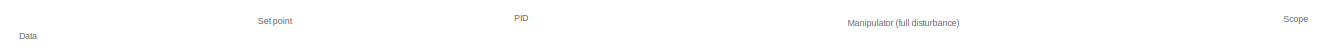
[diagram: root canvas - part 1/6, top left region]
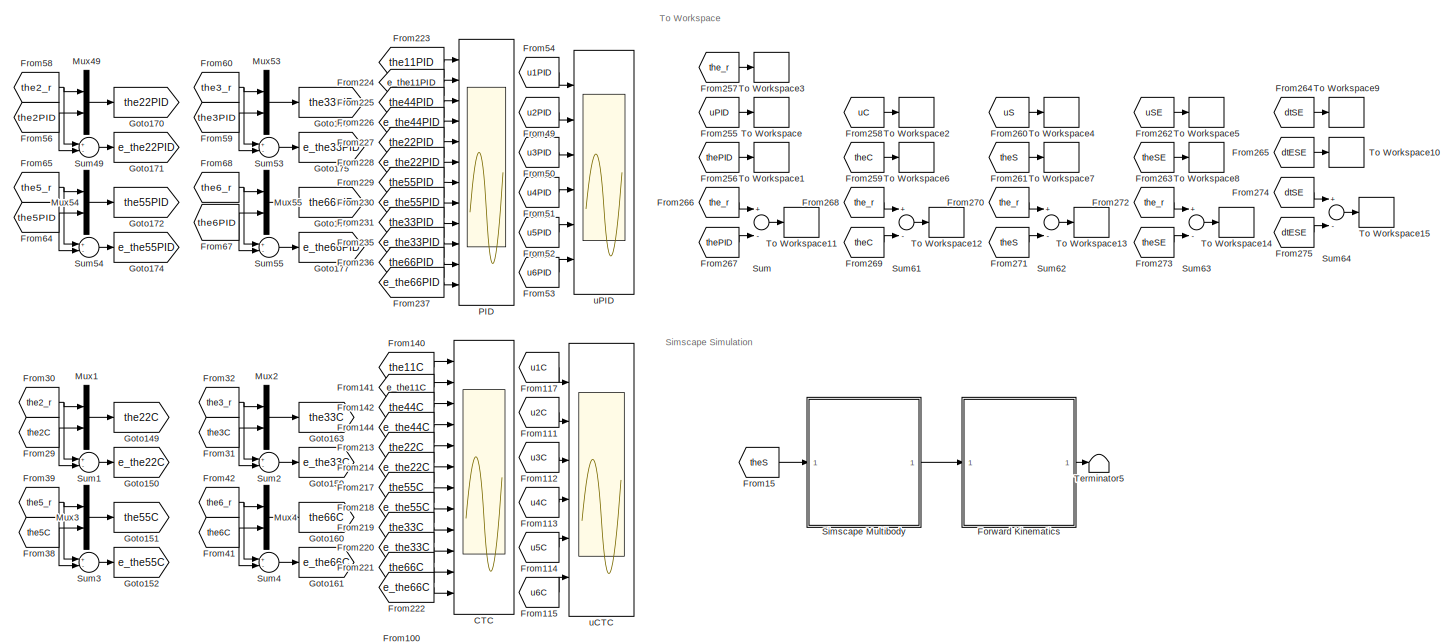
[diagram: root canvas - part 2/6, top right region]
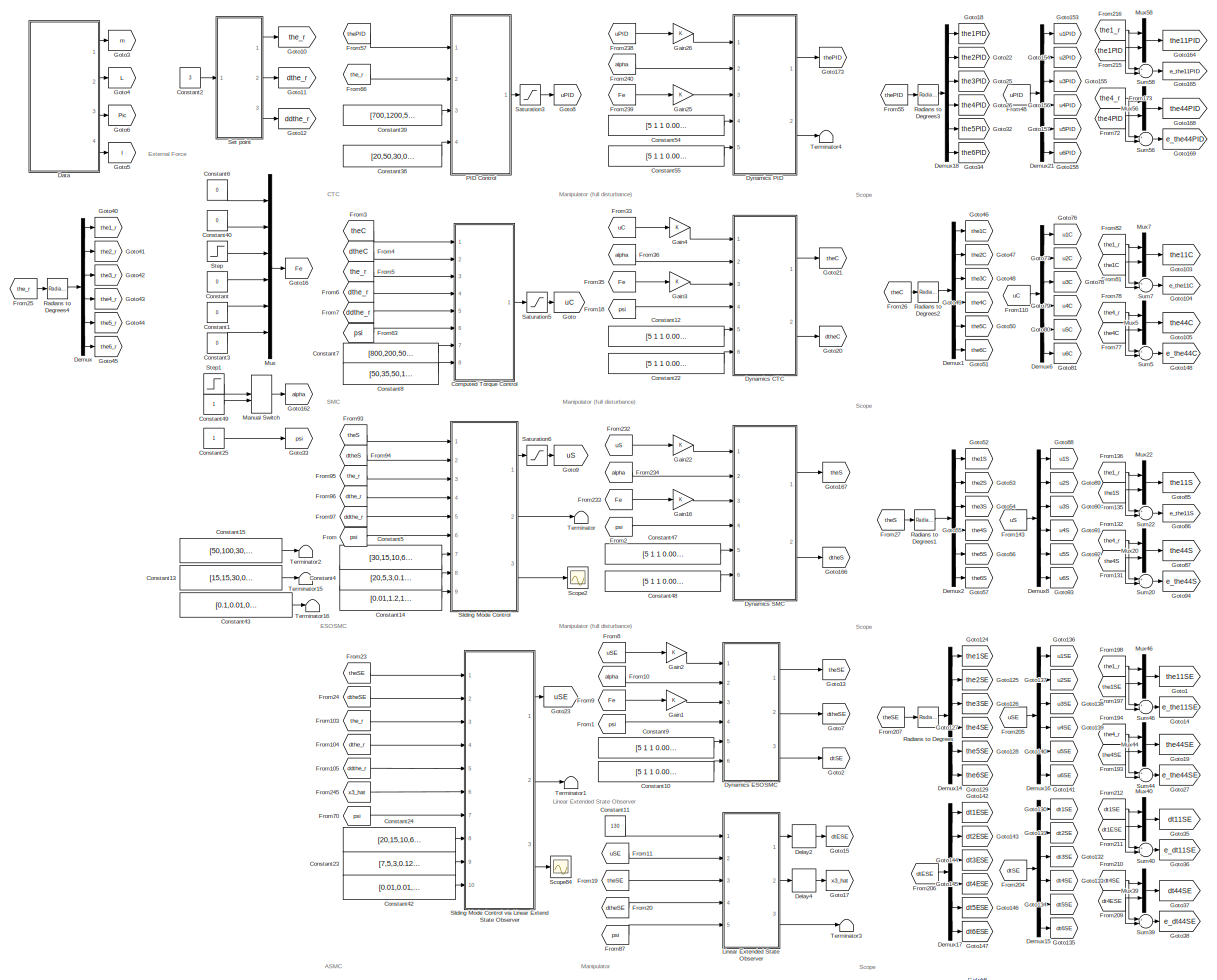
[diagram: root canvas - part 3/6, middle left region]
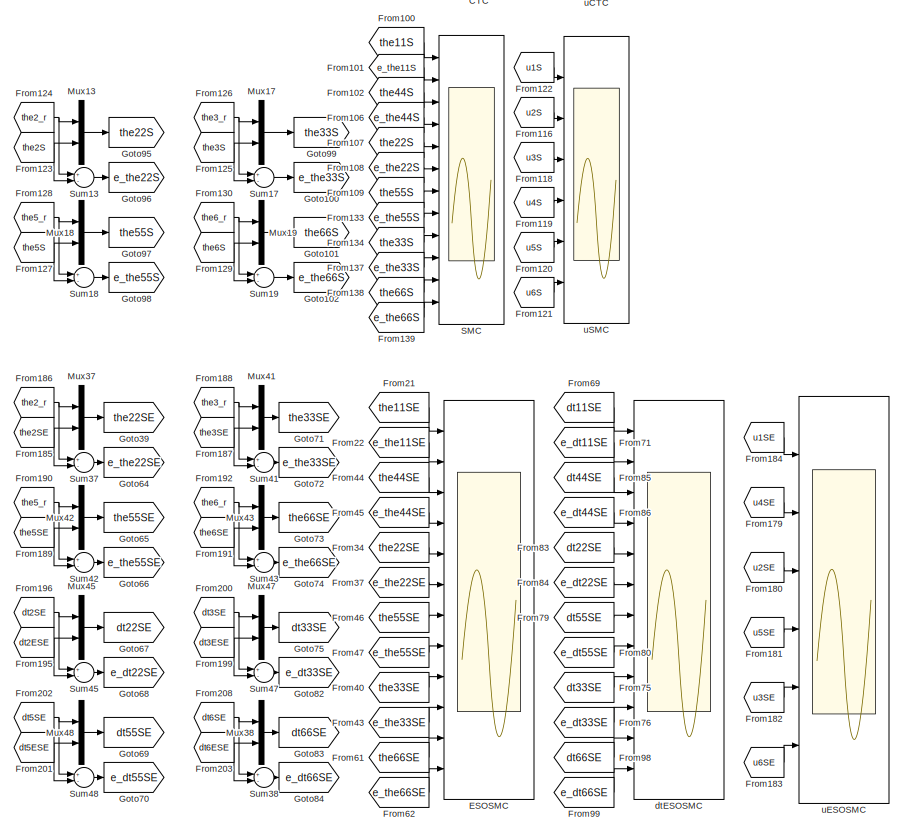
[diagram: root canvas - part 4/6, middle right region]
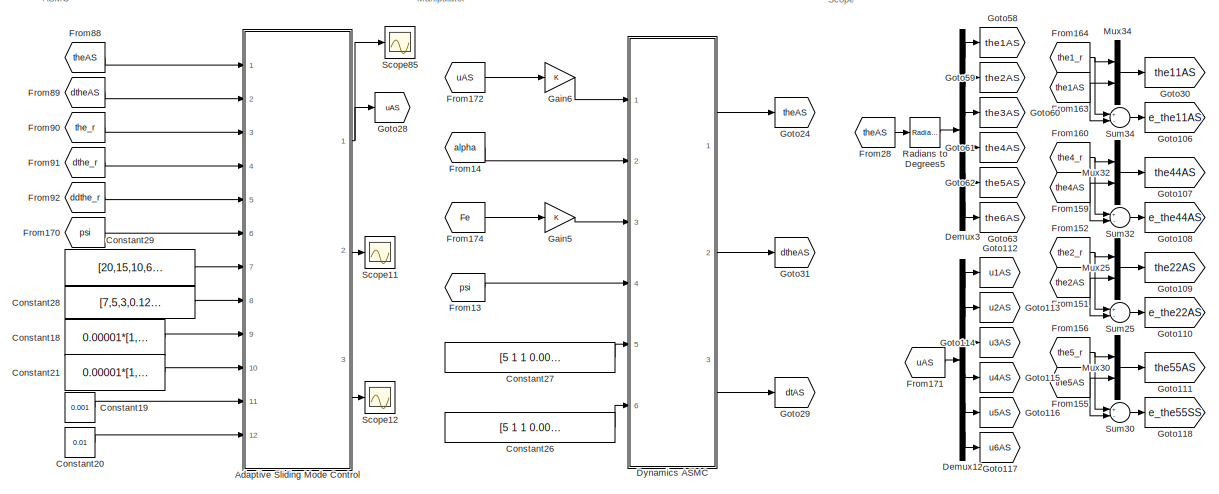
[diagram: root canvas - part 5/6, bottom left region]
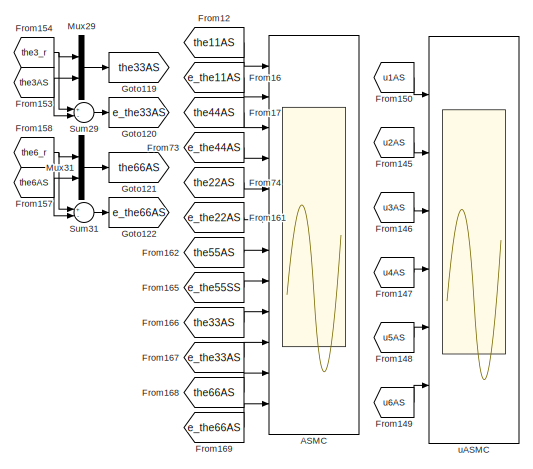
[diagram: root canvas - part 6/6, bottom center region]
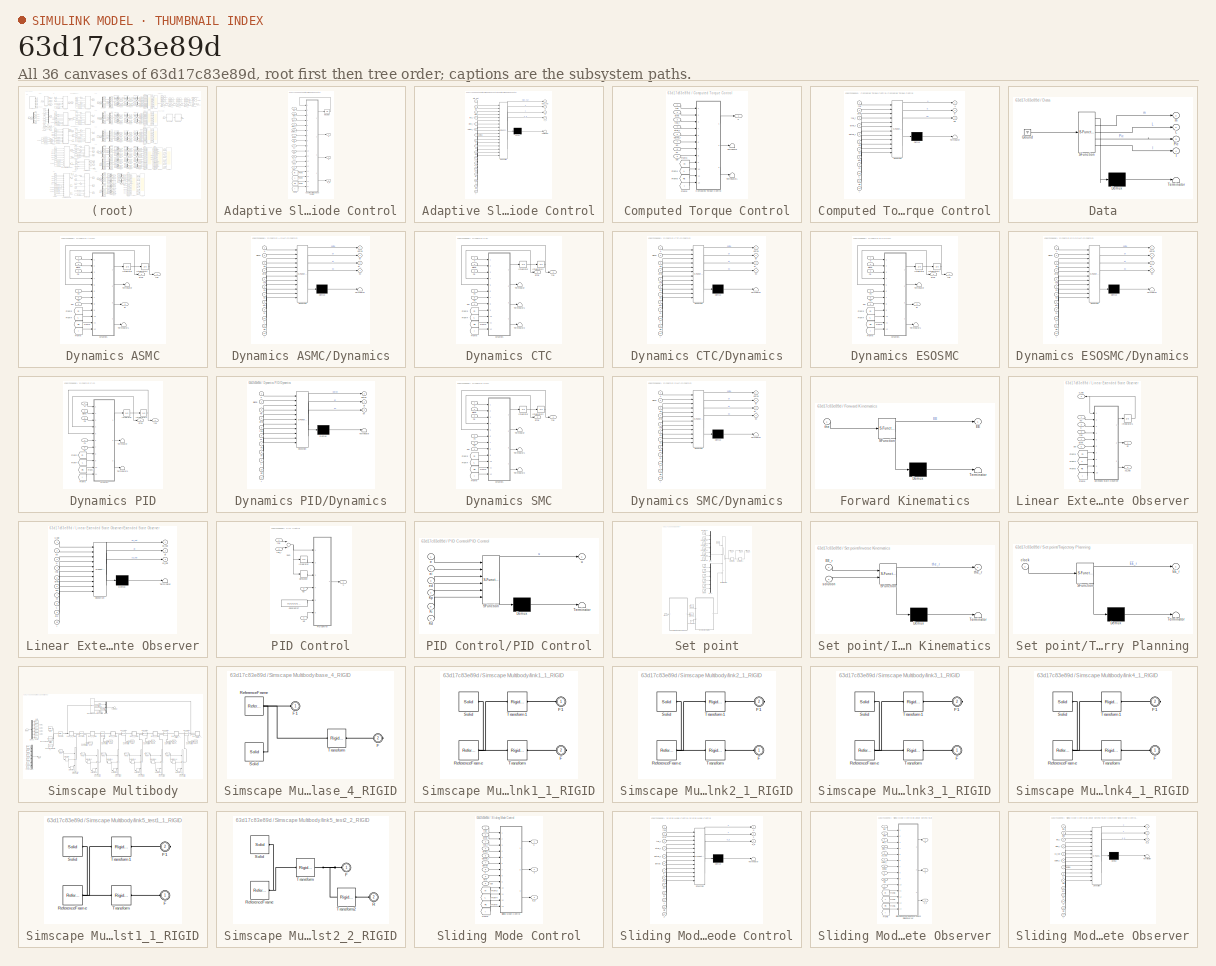
[diagram: thumbnail index - all 36 canvases of the model, root first then tree order]
MODEL slx_63d17c83e89d
KIND model
CONFIG AbsTol = auto
CONFIG EnableMultiTasking = off
CONFIG FixedStep = 0.01
CONFIG MaxStep = auto
CONFIG MinStep = auto
CONFIG RelTol = 1e-3
CONFIG SampleTimeConstraint = Unconstrained
CONFIG Solver = FixedStepAuto
CONFIG SolverName = FixedStepAuto
CONFIG StartTime = 0.0
CONFIG StopTime = 30
WORKSPACE source: external: MATLAB File  (data not in archive)
BLOCK [Scope] ASMC
  Commented = on
  Floating = off
  NumInputPorts = 12
  Ports = [12]
  ScopeSpecificationString = Simulink.scopes.TimeScopeBlockCfg('CurrentConfiguration', extmgr.ConfigurationSet(extmgr.Configuration('Core','General UI',true,'FigureColor',[1 1 1]),extmgr.Configuration('Core','Source UI',true),extmgr.Configuration('Sources','WiredSimulink',true,'DataLoggingVariableName','ScopeData7'),extmgr.Configuration('Visuals','Time Domain',true,'SerializedDisplays',{struct('MinYLimReal','-31.75051','MaxYL...<+11406ch>
BLOCK [SubSystem] Adaptive Sliding Mode Control
  Commented = on
  Ports = [12, 3]
  RequestExecContextInheritance = off
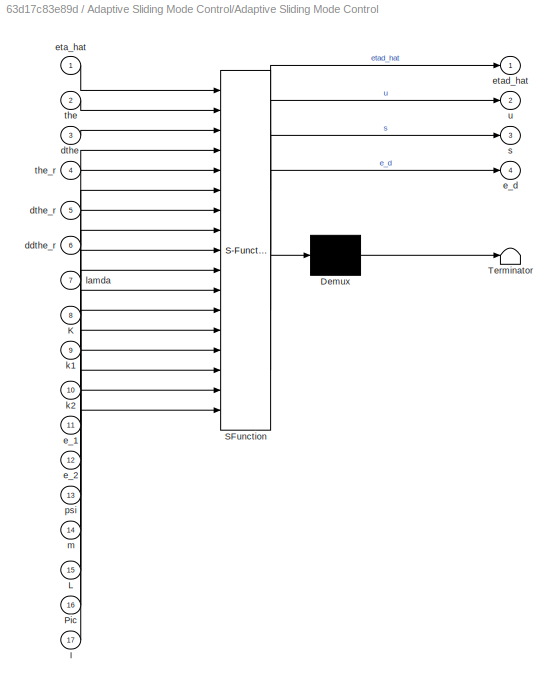
BLOCK [SubSystem] Adaptive Sliding Mode Control/Adaptive Sliding Mode Control
  ErrorFcn = Stateflow.Translate.translate
  PermitHierarchicalResolution = ExplicitOnly
  Ports = [17, 4]
  RequestExecContextInheritance = off
  SFBlockType = MATLAB Function
  TreatAsAtomicUnit = on
BLOCK [Demux] Adaptive Sliding Mode Control/Adaptive Sliding Mode Control/ Demux 
  Outputs = 1
  Ports = [1, 1]
BLOCK [S-Function] Adaptive Sliding Mode Control/Adaptive Sliding Mode Control/ SFunction 
  EnableBusSupport = on
  FunctionName = sf_sfun
  PortCounts = [17 5]
  Ports = [17, 5]
  SFcnIsStateOwnerBlock = off
  SFunctionDeploymentMode = off
  Tag = Stateflow S-Function CONTROL_01 16
BLOCK [Terminator] Adaptive Sliding Mode Control/Adaptive Sliding Mode Control/ Terminator 
BLOCK [Inport] Adaptive Sliding Mode Control/Adaptive Sliding Mode Control/I
  IconDisplay = Port number
  Port = 17
BLOCK [Inport] Adaptive Sliding Mode Control/Adaptive Sliding Mode Control/K
  IconDisplay = Port number
  Port = 8
BLOCK [Inport] Adaptive Sliding Mode Control/Adaptive Sliding Mode Control/L
  IconDisplay = Port number
  Port = 15
BLOCK [Inport] Adaptive Sliding Mode Control/Adaptive Sliding Mode Control/Pic
  IconDisplay = Port number
  Port = 16
BLOCK [Inport] Adaptive Sliding Mode Control/Adaptive Sliding Mode Control/ddthe_r
  IconDisplay = Port number
  Port = 6
BLOCK [Inport] Adaptive Sliding Mode Control/Adaptive Sliding Mode Control/dthe
  IconDisplay = Port number
  Port = 3
BLOCK [Inport] Adaptive Sliding Mode Control/Adaptive Sliding Mode Control/dthe_r
  IconDisplay = Port number
  Port = 5
BLOCK [Inport] Adaptive Sliding Mode Control/Adaptive Sliding Mode Control/e_1
  IconDisplay = Port number
  Port = 11
BLOCK [Inport] Adaptive Sliding Mode Control/Adaptive Sliding Mode Control/e_2
  IconDisplay = Port number
  Port = 12
BLOCK [Outport] Adaptive Sliding Mode Control/Adaptive Sliding Mode Control/e_d
  IconDisplay = Port number
  Port = 4
BLOCK [Inport] Adaptive Sliding Mode Control/Adaptive Sliding Mode Control/eta_hat
  IconDisplay = Port number
BLOCK [Outport] Adaptive Sliding Mode Control/Adaptive Sliding Mode Control/etad_hat
  IconDisplay = Port number
BLOCK [Inport] Adaptive Sliding Mode Control/Adaptive Sliding Mode Control/k1
  IconDisplay = Port number
  Port = 9
BLOCK [Inport] Adaptive Sliding Mode Control/Adaptive Sliding Mode Control/k2
  IconDisplay = Port number
  Port = 10
BLOCK [Inport] Adaptive Sliding Mode Control/Adaptive Sliding Mode Control/lamda
  IconDisplay = Port number
  Port = 7
BLOCK [Inport] Adaptive Sliding Mode Control/Adaptive Sliding Mode Control/m
  IconDisplay = Port number
  Port = 14
BLOCK [Inport] Adaptive Sliding Mode Control/Adaptive Sliding Mode Control/psi
  IconDisplay = Port number
  Port = 13
BLOCK [Outport] Adaptive Sliding Mode Control/Adaptive Sliding Mode Control/s
  IconDisplay = Port number
  Port = 3
BLOCK [Inport] Adaptive Sliding Mode Control/Adaptive Sliding Mode Control/the
  IconDisplay = Port number
  Port = 2
BLOCK [Inport] Adaptive Sliding Mode Control/Adaptive Sliding Mode Control/the_r
  IconDisplay = Port number
  Port = 4
BLOCK [Outport] Adaptive Sliding Mode Control/Adaptive Sliding Mode Control/u
  IconDisplay = Port number
  Port = 2
BLOCK [From] Adaptive Sliding Mode Control/From3
  GotoTag = m
  TagVisibility = global
BLOCK [From] Adaptive Sliding Mode Control/From4
  GotoTag = L
  TagVisibility = global
BLOCK [From] Adaptive Sliding Mode Control/From5
  GotoTag = Pic
  TagVisibility = global
BLOCK [From] Adaptive Sliding Mode Control/From6
  GotoTag = I
  TagVisibility = global
BLOCK [Integrator] Adaptive Sliding Mode Control/Integrator
  InitialCondition = zeros(6)
  Ports = [1, 1]
BLOCK [Inport] Adaptive Sliding Mode Control/K
  IconDisplay = Port number
  Port = 8
BLOCK [Inport] Adaptive Sliding Mode Control/ddthe_r
  IconDisplay = Port number
  Port = 5
BLOCK [Inport] Adaptive Sliding Mode Control/dthe
  IconDisplay = Port number
  Port = 2
BLOCK [Inport] Adaptive Sliding Mode Control/dthe_r
  IconDisplay = Port number
  Port = 4
BLOCK [Inport] Adaptive Sliding Mode Control/e_1
  IconDisplay = Port number
  Port = 11
BLOCK [Inport] Adaptive Sliding Mode Control/e_2
  IconDisplay = Port number
  Port = 12
BLOCK [Outport] Adaptive Sliding Mode Control/e_d
  IconDisplay = Port number
  Port = 3
BLOCK [Inport] Adaptive Sliding Mode Control/k1
  IconDisplay = Port number
  Port = 9
BLOCK [Inport] Adaptive Sliding Mode Control/k2
  IconDisplay = Port number
  Port = 10
BLOCK [Inport] Adaptive Sliding Mode Control/lamda
  IconDisplay = Port number
  Port = 7
BLOCK [Inport] Adaptive Sliding Mode Control/psi
  IconDisplay = Port number
  Port = 6
BLOCK [Outport] Adaptive Sliding Mode Control/s
  IconDisplay = Port number
  Port = 2
BLOCK [Inport] Adaptive Sliding Mode Control/the
  IconDisplay = Port number
BLOCK [Inport] Adaptive Sliding Mode Control/the_r
  IconDisplay = Port number
  Port = 3
BLOCK [Outport] Adaptive Sliding Mode Control/u
  IconDisplay = Port number
BLOCK [Scope] CTC
  Commented = on
  Floating = off
  NumInputPorts = 12
  Ports = [12]
  ScopeSpecificationString = Simulink.scopes.TimeScopeBlockCfg('CurrentConfiguration', extmgr.ConfigurationSet(extmgr.Configuration('Core','General UI',true,'FigureColor',[1 1 1]),extmgr.Configuration('Core','Source UI',true),extmgr.Configuration('Sources','WiredSimulink',true,'DataLoggingVariableName','ScopeData5'),extmgr.Configuration('Visuals','Time Domain',true,'SerializedDisplays',{struct('MinYLimReal','-31.2137','MaxYLi...<+11386ch>
BLOCK [SubSystem] Computed Torque Control
  Commented = on
  Ports = [8, 1]
  RequestExecContextInheritance = off
BLOCK [SubSystem] Computed Torque Control/Computed Torque Control
  ErrorFcn = Stateflow.Translate.translate
  PermitHierarchicalResolution = ExplicitOnly
  Ports = [12, 3]
  RequestExecContextInheritance = off
  SFBlockType = MATLAB Function
  TreatAsAtomicUnit = on
BLOCK [Demux] Computed Torque Control/Computed Torque Control/ Demux 
  DisplayOption = bar
  Outputs = 1
  Ports = [1, 1]
BLOCK [S-Function] Computed Torque Control/Computed Torque Control/ SFunction 
  EnableBusSupport = on
  FunctionName = sf_sfun
  PortCounts = [12 4]
  Ports = [12, 4]
  SFcnIsStateOwnerBlock = off
  SFunctionDeploymentMode = off
  Tag = Stateflow S-Function CONTROL_01 13
BLOCK [Terminator] Computed Torque Control/Computed Torque Control/ Terminator 
BLOCK [Outport] Computed Torque Control/Computed Torque Control/E
  IconDisplay = Port number
  Port = 2
BLOCK [Inport] Computed Torque Control/Computed Torque Control/I
  IconDisplay = Port number
  Port = 12
BLOCK [Inport] Computed Torque Control/Computed Torque Control/Kp
  IconDisplay = Port number
  Port = 6
BLOCK [Inport] Computed Torque Control/Computed Torque Control/Kv
  IconDisplay = Port number
  Port = 7
BLOCK [Inport] Computed Torque Control/Computed Torque Control/L
  IconDisplay = Port number
  Port = 10
BLOCK [Inport] Computed Torque Control/Computed Torque Control/Pic
  IconDisplay = Port number
  Port = 11
BLOCK [Outport] Computed Torque Control/Computed Torque Control/dE
  IconDisplay = Port number
  Port = 3
BLOCK [Inport] Computed Torque Control/Computed Torque Control/ddthe_r
  IconDisplay = Port number
  Port = 5
BLOCK [Inport] Computed Torque Control/Computed Torque Control/dthe
  IconDisplay = Port number
  Port = 2
BLOCK [Inport] Computed Torque Control/Computed Torque Control/dthe_r
  IconDisplay = Port number
  Port = 4
BLOCK [Inport] Computed Torque Control/Computed Torque Control/m
  IconDisplay = Port number
  Port = 9
BLOCK [Inport] Computed Torque Control/Computed Torque Control/psi
  IconDisplay = Port number
  Port = 8
BLOCK [Inport] Computed Torque Control/Computed Torque Control/the
  IconDisplay = Port number
BLOCK [Inport] Computed Torque Control/Computed Torque Control/the_r
  IconDisplay = Port number
  Port = 3
BLOCK [Outport] Computed Torque Control/Computed Torque Control/u
  IconDisplay = Port number
BLOCK [From] Computed Torque Control/From3
  GotoTag = m
  TagVisibility = global
BLOCK [From] Computed Torque Control/From4
  GotoTag = L
  TagVisibility = global
BLOCK [From] Computed Torque Control/From5
  GotoTag = Pic
  TagVisibility = global
BLOCK [From] Computed Torque Control/From6
  GotoTag = I
  TagVisibility = global
BLOCK [Inport] Computed Torque Control/Kp
  IconDisplay = Port number
  Port = 7
BLOCK [Inport] Computed Torque Control/Kv
  IconDisplay = Port number
  Port = 8
BLOCK [Terminator] Computed Torque Control/Terminator
BLOCK [Terminator] Computed Torque Control/Terminator1
BLOCK [Inport] Computed Torque Control/ddthe_r
  IconDisplay = Port number
  Port = 5
BLOCK [Inport] Computed Torque Control/dthe
  IconDisplay = Port number
  Port = 2
BLOCK [Inport] Computed Torque Control/dthe_r
  IconDisplay = Port number
  Port = 4
BLOCK [Inport] Computed Torque Control/psi
  IconDisplay = Port number
  Port = 6
BLOCK [Inport] Computed Torque Control/the
  IconDisplay = Port number
BLOCK [Inport] Computed Torque Control/the_r
  IconDisplay = Port number
  Port = 3
BLOCK [Outport] Computed Torque Control/u
  IconDisplay = Port number
BLOCK [Constant] Constant
  Value = 0
BLOCK [Constant] Constant1
  Value = 0
BLOCK [Constant] Constant10
  Commented = on
  Value = [5 1 1 0.001 0.0001 0.0001]
BLOCK [Constant] Constant11
  Commented = on
  Value = 130
BLOCK [Constant] Constant12
  Commented = on
  Value = [5 1 1 0.001 0.0001 0.0001]
BLOCK [Constant] Constant13
  Commented = on
  Value = [15,15,30,0.5,0.05,0.05]
BLOCK [Constant] Constant14
  Commented = on
  Value = [0.01,1.2,1,0.1,0.1,0.05]
BLOCK [Constant] Constant15
  Commented = on
  Value = [50,100,30,10,100,5]
BLOCK [Constant] Constant18
  Commented = on
  Value = 0.00001*[1,1,1,1,1,1]
BLOCK [Constant] Constant19
  Commented = on
  Value = 0.001
BLOCK [Constant] Constant2
  Value = 3
BLOCK [Constant] Constant20
  Commented = on
  Value = 0.01
BLOCK [Constant] Constant21
  Commented = on
  Value = 0.00001*[1,1,1,1,1,1]
BLOCK [Constant] Constant22
  Commented = on
  Value = [5 1 1 0.001 0.0001 0.0001]
BLOCK [Constant] Constant23
  Commented = on
  Value = [7,5,3,0.12,0.08,0.06]
BLOCK [Constant] Constant24
  Commented = on
  Value = [20,15,10,6,4,3]
BLOCK [Constant] Constant25
BLOCK [Constant] Constant26
  Commented = on
  Value = [5 1 1 0.001 0.0001 0.0001]
BLOCK [Constant] Constant27
  Commented = on
  Value = [5 1 1 0.001 0.0001 0.0001]
BLOCK [Constant] Constant28
  Commented = on
  Value = [7,5,3,0.12,0.08,0.06]
BLOCK [Constant] Constant29
  Commented = on
  Value = [20,15,10,6,4,3]
BLOCK [Constant] Constant3
  Value = 0
BLOCK [Constant] Constant38
  Value = [20,50,30,0.1,0.06,0.01]
BLOCK [Constant] Constant39
  Value = [700,1200,500,1,2,0.05]
BLOCK [Constant] Constant4
  Commented = on
  Value = [20,5,3,0.12,0.08,0.06]
BLOCK [Constant] Constant40
  Value = 0
BLOCK [Constant] Constant42
  Commented = on
  Value = [0.01,0.01,0.01,0.001,0.001,0.0001]
BLOCK [Constant] Constant43
  Commented = on
  Value = [0.1,0.01,0.05,0.001,0.001,0.0001]
BLOCK [Constant] Constant47
  Commented = on
  Value = [5 1 1 0.001 0.0001 0.0001]
BLOCK [Constant] Constant48
  Commented = on
  Value = [5 1 1 0.001 0.0001 0.0001]
BLOCK [Constant] Constant49
BLOCK [Constant] Constant5
  Commented = on
  Value = [30,15,10,6,4,3]
BLOCK [Constant] Constant54
  Value = [5 1 1 0.001 0.0001 0.0001]
BLOCK [Constant] Constant55
  Value = [5 1 1 0.001 0.0001 0.0001]
BLOCK [Constant] Constant6
  Value = 0
BLOCK [Constant] Constant7
  Commented = on
  Value = [800,200,500,500,2000,300]
BLOCK [Constant] Constant8
  Commented = on
  Value = [50,35,50,100,200,100]
BLOCK [Constant] Constant9
  Commented = on
  Value = [5 1 1 0.001 0.0001 0.0001]
BLOCK [SubSystem] Data
  ErrorFcn = Stateflow.Translate.translate
  PermitHierarchicalResolution = ExplicitOnly
  Ports = [0, 4]
  RequestExecContextInheritance = off
  SFBlockType = MATLAB Function
  TreatAsAtomicUnit = on
BLOCK [Demux] Data/ Demux 
  DisplayOption = bar
  Outputs = 1
  Ports = [1, 1]
BLOCK [Ground] Data/ Ground 
BLOCK [S-Function] Data/ SFunction 
  EnableBusSupport = on
  FunctionName = sf_sfun
  PortCounts = [1 5]
  Ports = [1, 5]
  SFcnIsStateOwnerBlock = off
  SFunctionDeploymentMode = off
  Tag = Stateflow S-Function CONTROL_01 3
BLOCK [Terminator] Data/ Terminator 
BLOCK [Outport] Data/I
  IconDisplay = Port number
  Port = 4
BLOCK [Outport] Data/L
  IconDisplay = Port number
  Port = 2
BLOCK [Outport] Data/Pic
  IconDisplay = Port number
  Port = 3
BLOCK [Outport] Data/m
  IconDisplay = Port number
BLOCK [Delay] Delay2
  Commented = on
  DelayLength = 1
  InputPortMap = u0
  Ports = [1, 1]
BLOCK [Delay] Delay4
  Commented = on
  DelayLength = 1
  InputPortMap = u0
  Ports = [1, 1]
BLOCK [Demux] Demux
  DisplayOption = bar
  Outputs = 6
  Ports = [1, 6]
BLOCK [Demux] Demux1
  Commented = on
  DisplayOption = bar
  Outputs = 6
  Ports = [1, 6]
BLOCK [Demux] Demux12
  Commented = on
  DisplayOption = bar
  Outputs = 6
  Ports = [1, 6]
BLOCK [Demux] Demux14
  Commented = on
  DisplayOption = bar
  Outputs = 6
  Ports = [1, 6]
BLOCK [Demux] Demux15
  Commented = on
  DisplayOption = bar
  Outputs = 6
  Ports = [1, 6]
BLOCK [Demux] Demux16
  Commented = on
  DisplayOption = bar
  Outputs = 6
  Ports = [1, 6]
BLOCK [Demux] Demux17
  Commented = on
  DisplayOption = bar
  Outputs = 6
  Ports = [1, 6]
BLOCK [Demux] Demux18
  DisplayOption = bar
  Outputs = 6
  Ports = [1, 6]
BLOCK [Demux] Demux2
  Commented = on
  DisplayOption = bar
  Outputs = 6
  Ports = [1, 6]
BLOCK [Demux] Demux21
  DisplayOption = bar
  Outputs = 6
  Ports = [1, 6]
BLOCK [Demux] Demux3
  Commented = on
  DisplayOption = bar
  Outputs = 6
  Ports = [1, 6]
BLOCK [Demux] Demux6
  Commented = on
  DisplayOption = bar
  Outputs = 6
  Ports = [1, 6]
BLOCK [Demux] Demux8
  Commented = on
  DisplayOption = bar
  Outputs = 6
  Ports = [1, 6]
BLOCK [SubSystem] Dynamics ASMC
  Commented = on
  Ports = [6, 3]
  RequestExecContextInheritance = off
BLOCK [SubSystem] Dynamics ASMC/Dynamics
  ErrorFcn = Stateflow.Translate.translate
  PermitHierarchicalResolution = ExplicitOnly
  Ports = [12, 4]
  RequestExecContextInheritance = off
  SFBlockType = MATLAB Function
  TreatAsAtomicUnit = on
BLOCK [Demux] Dynamics ASMC/Dynamics/ Demux 
  DisplayOption = bar
  Outputs = 1
  Ports = [1, 1]
BLOCK [S-Function] Dynamics ASMC/Dynamics/ SFunction 
  EnableBusSupport = on
  FunctionName = sf_sfun
  PortCounts = [12 5]
  Ports = [12, 5]
  SFcnIsStateOwnerBlock = off
  SFunctionDeploymentMode = off
  Tag = Stateflow S-Function CONTROL_01 4
BLOCK [Terminator] Dynamics ASMC/Dynamics/ Terminator 
BLOCK [Inport] Dynamics ASMC/Dynamics/Fc
  IconDisplay = Port number
  Port = 7
BLOCK [Inport] Dynamics ASMC/Dynamics/Fe
  IconDisplay = Port number
  Port = 3
BLOCK [Inport] Dynamics ASMC/Dynamics/Fv
  IconDisplay = Port number
  Port = 6
BLOCK [Inport] Dynamics ASMC/Dynamics/I
  IconDisplay = Port number
  Port = 12
BLOCK [Inport] Dynamics ASMC/Dynamics/L
  IconDisplay = Port number
  Port = 10
BLOCK [Inport] Dynamics ASMC/Dynamics/Pic
  IconDisplay = Port number
  Port = 11
BLOCK [Inport] Dynamics ASMC/Dynamics/alpha
  IconDisplay = Port number
  Port = 2
BLOCK [Outport] Dynamics ASMC/Dynamics/ddthe
  IconDisplay = Port number
BLOCK [Outport] Dynamics ASMC/Dynamics/dt
  IconDisplay = Port number
  Port = 2
BLOCK [Outport] Dynamics ASMC/Dynamics/dt_
  IconDisplay = Port number
  Port = 3
BLOCK [Inport] Dynamics ASMC/Dynamics/dthe
  IconDisplay = Port number
  Port = 4
BLOCK [Outport] Dynamics ASMC/Dynamics/ex
  IconDisplay = Port number
  Port = 4
BLOCK [Inport] Dynamics ASMC/Dynamics/m
  IconDisplay = Port number
  Port = 9
BLOCK [Inport] Dynamics ASMC/Dynamics/psi
  IconDisplay = Port number
  Port = 8
BLOCK [Inport] Dynamics ASMC/Dynamics/the
  IconDisplay = Port number
  Port = 5
BLOCK [Inport] Dynamics ASMC/Dynamics/u
  IconDisplay = Port number
BLOCK [Inport] Dynamics ASMC/Fc
  IconDisplay = Port number
  Port = 6
BLOCK [Inport] Dynamics ASMC/Fe
  IconDisplay = Port number
  Port = 3
BLOCK [From] Dynamics ASMC/From3
  GotoTag = m
  TagVisibility = global
BLOCK [From] Dynamics ASMC/From4
  GotoTag = L
  TagVisibility = global
BLOCK [From] Dynamics ASMC/From5
  GotoTag = Pic
  TagVisibility = global
BLOCK [From] Dynamics ASMC/From6
  GotoTag = I
  TagVisibility = global
BLOCK [Inport] Dynamics ASMC/Fv
  IconDisplay = Port number
  Port = 5
BLOCK [Integrator] Dynamics ASMC/Integrator
  InitialCondition = [0;0;0;0;0;0]
  LimitOutput = on
  LowerSaturationLimit = -pi
  Ports = [1, 1]
  UpperSaturationLimit = pi
BLOCK [Integrator] Dynamics ASMC/Integrator2
  InitialCondition = [0;0;0;0;0;0]
  LowerSaturationLimit = -[170;100;119;190;120;360]*pi/180
  Ports = [1, 1]
  UpperSaturationLimit = [170;135;166;190;120;360]*pi/180
BLOCK [Terminator] Dynamics ASMC/Terminator
BLOCK [Terminator] Dynamics ASMC/Terminator1
BLOCK [Inport] Dynamics ASMC/alpha
  IconDisplay = Port number
  Port = 2
BLOCK [Outport] Dynamics ASMC/dt
  IconDisplay = Port number
  Port = 3
BLOCK [Outport] Dynamics ASMC/dthe
  IconDisplay = Port number
  Port = 2
BLOCK [Inport] Dynamics ASMC/psi
  IconDisplay = Port number
  Port = 4
BLOCK [Outport] Dynamics ASMC/the
  IconDisplay = Port number
BLOCK [Inport] Dynamics ASMC/u
  IconDisplay = Port number
BLOCK [SubSystem] Dynamics CTC
  Commented = on
  Ports = [6, 2]
  RequestExecContextInheritance = off
BLOCK [SubSystem] Dynamics CTC/Dynamics
  ErrorFcn = Stateflow.Translate.translate
  PermitHierarchicalResolution = ExplicitOnly
  Ports = [12, 4]
  RequestExecContextInheritance = off
  SFBlockType = MATLAB Function
  TreatAsAtomicUnit = on
BLOCK [Demux] Dynamics CTC/Dynamics/ Demux 
  DisplayOption = bar
  Outputs = 1
  Ports = [1, 1]
BLOCK [S-Function] Dynamics CTC/Dynamics/ SFunction 
  EnableBusSupport = on
  FunctionName = sf_sfun
  PortCounts = [12 5]
  Ports = [12, 5]
  SFcnIsStateOwnerBlock = off
  SFunctionDeploymentMode = off
  Tag = Stateflow S-Function CONTROL_01 5
BLOCK [Terminator] Dynamics CTC/Dynamics/ Terminator 
BLOCK [Inport] Dynamics CTC/Dynamics/Fc
  IconDisplay = Port number
  Port = 7
BLOCK [Inport] Dynamics CTC/Dynamics/Fe
  IconDisplay = Port number
  Port = 3
BLOCK [Inport] Dynamics CTC/Dynamics/Fv
  IconDisplay = Port number
  Port = 6
BLOCK [Inport] Dynamics CTC/Dynamics/I
  IconDisplay = Port number
  Port = 12
BLOCK [Inport] Dynamics CTC/Dynamics/L
  IconDisplay = Port number
  Port = 10
BLOCK [Inport] Dynamics CTC/Dynamics/Pic
  IconDisplay = Port number
  Port = 11
BLOCK [Inport] Dynamics CTC/Dynamics/alpha
  IconDisplay = Port number
  Port = 2
BLOCK [Outport] Dynamics CTC/Dynamics/ddthe
  IconDisplay = Port number
BLOCK [Outport] Dynamics CTC/Dynamics/dt
  IconDisplay = Port number
  Port = 2
BLOCK [Outport] Dynamics CTC/Dynamics/dt_
  IconDisplay = Port number
  Port = 3
BLOCK [Inport] Dynamics CTC/Dynamics/dthe
  IconDisplay = Port number
  Port = 4
BLOCK [Outport] Dynamics CTC/Dynamics/ex
  IconDisplay = Port number
  Port = 4
BLOCK [Inport] Dynamics CTC/Dynamics/m
  IconDisplay = Port number
  Port = 9
BLOCK [Inport] Dynamics CTC/Dynamics/psi
  IconDisplay = Port number
  Port = 8
BLOCK [Inport] Dynamics CTC/Dynamics/the
  IconDisplay = Port number
  Port = 5
BLOCK [Inport] Dynamics CTC/Dynamics/u
  IconDisplay = Port number
BLOCK [Inport] Dynamics CTC/Fc
  IconDisplay = Port number
  Port = 6
BLOCK [Inport] Dynamics CTC/Fe
  IconDisplay = Port number
  Port = 3
BLOCK [From] Dynamics CTC/From3
  GotoTag = m
  TagVisibility = global
BLOCK [From] Dynamics CTC/From4
  GotoTag = L
  TagVisibility = global
BLOCK [From] Dynamics CTC/From5
  GotoTag = Pic
  TagVisibility = global
BLOCK [From] Dynamics CTC/From6
  GotoTag = I
  TagVisibility = global
BLOCK [Inport] Dynamics CTC/Fv
  IconDisplay = Port number
  Port = 5
BLOCK [Integrator] Dynamics CTC/Integrator
  InitialCondition = [0;0;0;0;0;0]
  LowerSaturationLimit = -pi
  Ports = [1, 1]
  UpperSaturationLimit = pi
BLOCK [Integrator] Dynamics CTC/Integrator2
  InitialCondition = [0;0;0;0;0;0]
  LowerSaturationLimit = -[170;100;119;190;120;360]*pi/180
  Ports = [1, 1]
  UpperSaturationLimit = [170;135;166;190;120;360]*pi/180
BLOCK [Terminator] Dynamics CTC/Terminator
BLOCK [Terminator] Dynamics CTC/Terminator1
BLOCK [Terminator] Dynamics CTC/Terminator2
BLOCK [Inport] Dynamics CTC/alpha
  IconDisplay = Port number
  Port = 2
BLOCK [Outport] Dynamics CTC/dthe
  IconDisplay = Port number
  Port = 2
BLOCK [Inport] Dynamics CTC/psi
  IconDisplay = Port number
  Port = 4
BLOCK [Outport] Dynamics CTC/the
  IconDisplay = Port number
BLOCK [Inport] Dynamics CTC/u
  IconDisplay = Port number
BLOCK [SubSystem] Dynamics ESOSMC
  Commented = on
  Ports = [6, 3]
  RequestExecContextInheritance = off
BLOCK [SubSystem] Dynamics ESOSMC/Dynamics
  ErrorFcn = Stateflow.Translate.translate
  PermitHierarchicalResolution = ExplicitOnly
  Ports = [12, 4]
  RequestExecContextInheritance = off
  SFBlockType = MATLAB Function
  TreatAsAtomicUnit = on
BLOCK [Demux] Dynamics ESOSMC/Dynamics/ Demux 
  DisplayOption = bar
  Outputs = 1
  Ports = [1, 1]
BLOCK [S-Function] Dynamics ESOSMC/Dynamics/ SFunction 
  EnableBusSupport = on
  FunctionName = sf_sfun
  PortCounts = [12 5]
  Ports = [12, 5]
  SFcnIsStateOwnerBlock = off
  SFunctionDeploymentMode = off
  Tag = Stateflow S-Function CONTROL_01 1
BLOCK [Terminator] Dynamics ESOSMC/Dynamics/ Terminator 
BLOCK [Inport] Dynamics ESOSMC/Dynamics/Fc
  IconDisplay = Port number
  Port = 7
BLOCK [Inport] Dynamics ESOSMC/Dynamics/Fe
  IconDisplay = Port number
  Port = 3
BLOCK [Inport] Dynamics ESOSMC/Dynamics/Fv
  IconDisplay = Port number
  Port = 6
BLOCK [Inport] Dynamics ESOSMC/Dynamics/I
  IconDisplay = Port number
  Port = 12
BLOCK [Inport] Dynamics ESOSMC/Dynamics/L
  IconDisplay = Port number
  Port = 10
BLOCK [Inport] Dynamics ESOSMC/Dynamics/Pic
  IconDisplay = Port number
  Port = 11
BLOCK [Inport] Dynamics ESOSMC/Dynamics/alpha
  IconDisplay = Port number
  Port = 2
BLOCK [Outport] Dynamics ESOSMC/Dynamics/ddthe
  IconDisplay = Port number
BLOCK [Outport] Dynamics ESOSMC/Dynamics/dt
  IconDisplay = Port number
  Port = 2
BLOCK [Outport] Dynamics ESOSMC/Dynamics/dt_
  IconDisplay = Port number
  Port = 3
BLOCK [Inport] Dynamics ESOSMC/Dynamics/dthe
  IconDisplay = Port number
  Port = 4
BLOCK [Outport] Dynamics ESOSMC/Dynamics/ex
  IconDisplay = Port number
  Port = 4
BLOCK [Inport] Dynamics ESOSMC/Dynamics/m
  IconDisplay = Port number
  Port = 9
BLOCK [Inport] Dynamics ESOSMC/Dynamics/psi
  IconDisplay = Port number
  Port = 8
BLOCK [Inport] Dynamics ESOSMC/Dynamics/the
  IconDisplay = Port number
  Port = 5
BLOCK [Inport] Dynamics ESOSMC/Dynamics/u
  IconDisplay = Port number
BLOCK [Inport] Dynamics ESOSMC/Fc
  IconDisplay = Port number
  Port = 6
BLOCK [Inport] Dynamics ESOSMC/Fe
  IconDisplay = Port number
  Port = 3
BLOCK [From] Dynamics ESOSMC/From3
  GotoTag = m
  TagVisibility = global
BLOCK [From] Dynamics ESOSMC/From4
  GotoTag = L
  TagVisibility = global
BLOCK [From] Dynamics ESOSMC/From5
  GotoTag = Pic
  TagVisibility = global
BLOCK [From] Dynamics ESOSMC/From6
  GotoTag = I
  TagVisibility = global
BLOCK [Inport] Dynamics ESOSMC/Fv
  IconDisplay = Port number
  Port = 5
BLOCK [Integrator] Dynamics ESOSMC/Integrator
  InitialCondition = [0;0;0;0;0;0]
  LowerSaturationLimit = -pi
  Ports = [1, 1]
  UpperSaturationLimit = pi
BLOCK [Integrator] Dynamics ESOSMC/Integrator2
  InitialCondition = [0;0;0;0;0;0]
  LowerSaturationLimit = -[170;100;119;190;120;360]*pi/180
  Ports = [1, 1]
  UpperSaturationLimit = [170;135;166;190;120;360]*pi/180
BLOCK [Terminator] Dynamics ESOSMC/Terminator
BLOCK [Terminator] Dynamics ESOSMC/Terminator1
BLOCK [Inport] Dynamics ESOSMC/alpha
  IconDisplay = Port number
  Port = 2
BLOCK [Outport] Dynamics ESOSMC/dt
  IconDisplay = Port number
  Port = 3
BLOCK [Outport] Dynamics ESOSMC/dthe
  IconDisplay = Port number
  Port = 2
BLOCK [Inport] Dynamics ESOSMC/psi
  IconDisplay = Port number
  Port = 4
BLOCK [Outport] Dynamics ESOSMC/the
  IconDisplay = Port number
BLOCK [Inport] Dynamics ESOSMC/u
  IconDisplay = Port number
BLOCK [SubSystem] Dynamics PID
  Ports = [5, 2]
  RequestExecContextInheritance = off
BLOCK [SubSystem] Dynamics PID/Dynamics
  ErrorFcn = Stateflow.Translate.translate
  PermitHierarchicalResolution = ExplicitOnly
  Ports = [11, 3]
  RequestExecContextInheritance = off
  SFBlockType = MATLAB Function
  TreatAsAtomicUnit = on
BLOCK [Demux] Dynamics PID/Dynamics/ Demux 
  DisplayOption = bar
  Outputs = 1
  Ports = [1, 1]
BLOCK [S-Function] Dynamics PID/Dynamics/ SFunction 
  EnableBusSupport = on
  FunctionName = sf_sfun
  PortCounts = [11 4]
  Ports = [11, 4]
  SFcnIsStateOwnerBlock = off
  SFunctionDeploymentMode = off
  Tag = Stateflow S-Function CONTROL_01 24
BLOCK [Terminator] Dynamics PID/Dynamics/ Terminator 
BLOCK [Inport] Dynamics PID/Dynamics/Fc
  IconDisplay = Port number
  Port = 7
BLOCK [Inport] Dynamics PID/Dynamics/Fe
  IconDisplay = Port number
  Port = 3
BLOCK [Inport] Dynamics PID/Dynamics/Fv
  IconDisplay = Port number
  Port = 6
BLOCK [Inport] Dynamics PID/Dynamics/I
  IconDisplay = Port number
  Port = 11
BLOCK [Inport] Dynamics PID/Dynamics/L
  IconDisplay = Port number
  Port = 9
BLOCK [Inport] Dynamics PID/Dynamics/Pic
  IconDisplay = Port number
  Port = 10
BLOCK [Inport] Dynamics PID/Dynamics/alpha
  IconDisplay = Port number
  Port = 2
BLOCK [Outport] Dynamics PID/Dynamics/ddthe
  IconDisplay = Port number
BLOCK [Outport] Dynamics PID/Dynamics/dt
  IconDisplay = Port number
  Port = 2
BLOCK [Inport] Dynamics PID/Dynamics/dthe
  IconDisplay = Port number
  Port = 4
BLOCK [Outport] Dynamics PID/Dynamics/ex
  IconDisplay = Port number
  Port = 3
BLOCK [Inport] Dynamics PID/Dynamics/m
  IconDisplay = Port number
  Port = 8
BLOCK [Inport] Dynamics PID/Dynamics/the
  IconDisplay = Port number
  Port = 5
BLOCK [Inport] Dynamics PID/Dynamics/u
  IconDisplay = Port number
BLOCK [Inport] Dynamics PID/Fc
  IconDisplay = Port number
  Port = 5
BLOCK [Inport] Dynamics PID/Fe
  IconDisplay = Port number
  Port = 3
BLOCK [From] Dynamics PID/From3
  GotoTag = m
  TagVisibility = global
BLOCK [From] Dynamics PID/From4
  GotoTag = L
  TagVisibility = global
BLOCK [From] Dynamics PID/From5
  GotoTag = Pic
  TagVisibility = global
BLOCK [From] Dynamics PID/From6
  GotoTag = I
  TagVisibility = global
BLOCK [Inport] Dynamics PID/Fv
  IconDisplay = Port number
  Port = 4
BLOCK [Integrator] Dynamics PID/Integrator
  InitialCondition = [0;0;0;0;0;0]
  LowerSaturationLimit = -pi
  Ports = [1, 1]
  UpperSaturationLimit = pi
BLOCK [Integrator] Dynamics PID/Integrator2
  InitialCondition = [0;0;0;0;0;0]
  LowerSaturationLimit = -[170;100;119;190;120;360]*pi/180
  Ports = [1, 1]
  UpperSaturationLimit = [170;135;166;190;120;360]*pi/180
BLOCK [Terminator] Dynamics PID/Terminator
BLOCK [Terminator] Dynamics PID/Terminator1
BLOCK [Inport] Dynamics PID/alpha
  IconDisplay = Port number
  Port = 2
BLOCK [Outport] Dynamics PID/dthe
  IconDisplay = Port number
  Port = 2
BLOCK [Outport] Dynamics PID/the
  IconDisplay = Port number
BLOCK [Inport] Dynamics PID/u
  IconDisplay = Port number
BLOCK [SubSystem] Dynamics SMC
  Commented = on
  Ports = [6, 2]
  RequestExecContextInheritance = off
BLOCK [SubSystem] Dynamics SMC/Dynamics
  ErrorFcn = Stateflow.Translate.translate
  PermitHierarchicalResolution = ExplicitOnly
  Ports = [12, 4]
  RequestExecContextInheritance = off
  SFBlockType = MATLAB Function
  TreatAsAtomicUnit = on
BLOCK [Demux] Dynamics SMC/Dynamics/ Demux 
  DisplayOption = bar
  Outputs = 1
  Ports = [1, 1]
BLOCK [S-Function] Dynamics SMC/Dynamics/ SFunction 
  EnableBusSupport = on
  FunctionName = sf_sfun
  PortCounts = [12 5]
  Ports = [12, 5]
  SFcnIsStateOwnerBlock = off
  SFunctionDeploymentMode = off
  Tag = Stateflow S-Function CONTROL_01 22
BLOCK [Terminator] Dynamics SMC/Dynamics/ Terminator 
BLOCK [Inport] Dynamics SMC/Dynamics/Fc
  IconDisplay = Port number
  Port = 7
BLOCK [Inport] Dynamics SMC/Dynamics/Fe
  IconDisplay = Port number
  Port = 3
BLOCK [Inport] Dynamics SMC/Dynamics/Fv
  IconDisplay = Port number
  Port = 6
BLOCK [Inport] Dynamics SMC/Dynamics/I
  IconDisplay = Port number
  Port = 12
BLOCK [Inport] Dynamics SMC/Dynamics/L
  IconDisplay = Port number
  Port = 10
BLOCK [Inport] Dynamics SMC/Dynamics/Pic
  IconDisplay = Port number
  Port = 11
BLOCK [Inport] Dynamics SMC/Dynamics/alpha
  IconDisplay = Port number
  Port = 2
BLOCK [Outport] Dynamics SMC/Dynamics/ddthe
  IconDisplay = Port number
BLOCK [Outport] Dynamics SMC/Dynamics/dt
  IconDisplay = Port number
  Port = 2
BLOCK [Outport] Dynamics SMC/Dynamics/dt_
  IconDisplay = Port number
  Port = 3
BLOCK [Inport] Dynamics SMC/Dynamics/dthe
  IconDisplay = Port number
  Port = 4
BLOCK [Outport] Dynamics SMC/Dynamics/ex
  IconDisplay = Port number
  Port = 4
BLOCK [Inport] Dynamics SMC/Dynamics/m
  IconDisplay = Port number
  Port = 9
BLOCK [Inport] Dynamics SMC/Dynamics/psi
  IconDisplay = Port number
  Port = 8
BLOCK [Inport] Dynamics SMC/Dynamics/the
  IconDisplay = Port number
  Port = 5
BLOCK [Inport] Dynamics SMC/Dynamics/u
  IconDisplay = Port number
BLOCK [Inport] Dynamics SMC/Fc
  IconDisplay = Port number
  Port = 6
BLOCK [Inport] Dynamics SMC/Fe
  IconDisplay = Port number
  Port = 3
BLOCK [From] Dynamics SMC/From3
  GotoTag = m
  TagVisibility = global
BLOCK [From] Dynamics SMC/From4
  GotoTag = L
  TagVisibility = global
BLOCK [From] Dynamics SMC/From5
  GotoTag = Pic
  TagVisibility = global
BLOCK [From] Dynamics SMC/From6
  GotoTag = I
  TagVisibility = global
BLOCK [Inport] Dynamics SMC/Fv
  IconDisplay = Port number
  Port = 5
BLOCK [Integrator] Dynamics SMC/Integrator
  InitialCondition = [0;0;0;0;0;0]
  LowerSaturationLimit = -pi
  Ports = [1, 1]
  UpperSaturationLimit = pi
BLOCK [Integrator] Dynamics SMC/Integrator2
  InitialCondition = [0;0;0;0;0;0]
  LowerSaturationLimit = -[170;100;119;190;120;360]*pi/180
  Ports = [1, 1]
  UpperSaturationLimit = [170;135;166;190;120;360]*pi/180
BLOCK [Terminator] Dynamics SMC/Terminator
BLOCK [Terminator] Dynamics SMC/Terminator1
BLOCK [Terminator] Dynamics SMC/Terminator2
BLOCK [Inport] Dynamics SMC/alpha
  IconDisplay = Port number
  Port = 2
BLOCK [Outport] Dynamics SMC/dthe
  IconDisplay = Port number
  Port = 2
BLOCK [Inport] Dynamics SMC/psi
  IconDisplay = Port number
  Port = 4
BLOCK [Outport] Dynamics SMC/the
  IconDisplay = Port number
BLOCK [Inport] Dynamics SMC/u
  IconDisplay = Port number
BLOCK [Scope] ESOSMC
  Commented = on
  Floating = off
  NumInputPorts = 12
  Ports = [12]
  ScopeSpecificationString = Simulink.scopes.TimeScopeBlockCfg('CurrentConfiguration', extmgr.ConfigurationSet(extmgr.Configuration('Core','General UI',true,'FigureColor',[1 1 1]),extmgr.Configuration('Core','Source UI',true),extmgr.Configuration('Sources','WiredSimulink',true,'DataLoggingVariableName','ScopeData1'),extmgr.Configuration('Visuals','Time Domain',true,'SerializedDisplays',{struct('MinYLimReal','-19.19213','MaxYL...<+11399ch>
BLOCK [SubSystem] Forward Kinematics
  ErrorFcn = Stateflow.Translate.translate
  PermitHierarchicalResolution = ExplicitOnly
  Ports = [1, 1]
  RequestExecContextInheritance = off
  SFBlockType = MATLAB Function
  TreatAsAtomicUnit = on
BLOCK [Demux] Forward Kinematics/ Demux 
  Outputs = 1
  Ports = [1, 1]
BLOCK [S-Function] Forward Kinematics/ SFunction 
  EnableBusSupport = on
  FunctionName = sf_sfun
  PortCounts = [1 2]
  Ports = [1, 2]
  SFcnIsStateOwnerBlock = off
  SFunctionDeploymentMode = off
  Tag = Stateflow S-Function CONTROL_01 21
BLOCK [Terminator] Forward Kinematics/ Terminator 
BLOCK [Outport] Forward Kinematics/EE
  IconDisplay = Port number
BLOCK [Inport] Forward Kinematics/the
  IconDisplay = Port number
BLOCK [From] From
  Commented = on
  GotoTag = psi
BLOCK [From] From1
  Commented = on
  GotoTag = psi
BLOCK [From] From10
  Commented = on
  GotoTag = alpha
BLOCK [From] From100
  Commented = on
  GotoTag = the11S
BLOCK [From] From101
  Commented = on
  GotoTag = e_the11S
BLOCK [From] From102
  Commented = on
  GotoTag = the44S
BLOCK [From] From103
  Commented = on
  GotoTag = the_r
BLOCK [From] From104
  Commented = on
  GotoTag = dthe_r
BLOCK [From] From105
  Commented = on
  GotoTag = ddthe_r
BLOCK [From] From106
  Commented = on
  GotoTag = e_the44S
BLOCK [From] From107
  Commented = on
  GotoTag = the22S
BLOCK [From] From108
  Commented = on
  GotoTag = e_the22S
BLOCK [From] From109
  Commented = on
  GotoTag = the55S
BLOCK [From] From11
  Commented = on
  GotoTag = uSE
BLOCK [From] From110
  Commented = on
  GotoTag = uC
BLOCK [From] From111
  Commented = on
  GotoTag = u2C
BLOCK [From] From112
  Commented = on
  GotoTag = u3C
BLOCK [From] From113
  Commented = on
  GotoTag = u4C
BLOCK [From] From114
  Commented = on
  GotoTag = u5C
BLOCK [From] From115
  Commented = on
  GotoTag = u6C
BLOCK [From] From116
  Commented = on
  GotoTag = u2S
BLOCK [From] From117
  Commented = on
  GotoTag = u1C
BLOCK [From] From118
  Commented = on
  GotoTag = u3S
BLOCK [From] From119
  Commented = on
  GotoTag = u4S
BLOCK [From] From12
  Commented = on
  GotoTag = the11AS
BLOCK [From] From120
  Commented = on
  GotoTag = u5S
BLOCK [From] From121
  Commented = on
  GotoTag = u6S
BLOCK [From] From122
  Commented = on
  GotoTag = u1S
BLOCK [From] From123
  Commented = on
  GotoTag = the2S
BLOCK [From] From124
  Commented = on
  GotoTag = the2_r
BLOCK [From] From125
  Commented = on
  GotoTag = the3S
BLOCK [From] From126
  Commented = on
  GotoTag = the3_r
BLOCK [From] From127
  Commented = on
  GotoTag = the5S
BLOCK [From] From128
  Commented = on
  GotoTag = the5_r
BLOCK [From] From129
  Commented = on
  GotoTag = the6S
BLOCK [From] From13
  Commented = on
  GotoTag = psi
BLOCK [From] From130
  Commented = on
  GotoTag = the6_r
BLOCK [From] From131
  Commented = on
  GotoTag = the4S
BLOCK [From] From132
  Commented = on
  GotoTag = the4_r
BLOCK [From] From133
  Commented = on
  GotoTag = e_the55S
BLOCK [From] From134
  Commented = on
  GotoTag = the33S
BLOCK [From] From135
  Commented = on
  GotoTag = the1S
BLOCK [From] From136
  Commented = on
  GotoTag = the1_r
BLOCK [From] From137
  Commented = on
  GotoTag = e_the33S
BLOCK [From] From138
  Commented = on
  GotoTag = the66S
BLOCK [From] From139
  Commented = on
  GotoTag = e_the66S
BLOCK [From] From14
  Commented = on
  GotoTag = alpha
BLOCK [From] From140
  Commented = on
  GotoTag = the11C
BLOCK [From] From141
  Commented = on
  GotoTag = e_the11C
BLOCK [From] From142
  Commented = on
  GotoTag = the44C
BLOCK [From] From143
  Commented = on
  GotoTag = uS
BLOCK [From] From144
  Commented = on
  GotoTag = e_the44C
BLOCK [From] From145
  Commented = on
  GotoTag = u2AS
BLOCK [From] From146
  Commented = on
  GotoTag = u3AS
BLOCK [From] From147
  Commented = on
  GotoTag = u4AS
BLOCK [From] From148
  Commented = on
  GotoTag = u5AS
BLOCK [From] From149
  Commented = on
  GotoTag = u6AS
BLOCK [From] From15
  GotoTag = theS
BLOCK [From] From150
  Commented = on
  GotoTag = u1AS
BLOCK [From] From151
  Commented = on
  GotoTag = the2AS
BLOCK [From] From152
  Commented = on
  GotoTag = the2_r
BLOCK [From] From153
  Commented = on
  GotoTag = the3AS
BLOCK [From] From154
  Commented = on
  GotoTag = the3_r
BLOCK [From] From155
  Commented = on
  GotoTag = the5AS
BLOCK [From] From156
  Commented = on
  GotoTag = the5_r
BLOCK [From] From157
  Commented = on
  GotoTag = the6AS
BLOCK [From] From158
  Commented = on
  GotoTag = the6_r
BLOCK [From] From159
  Commented = on
  GotoTag = the4AS
BLOCK [From] From16
  Commented = on
  GotoTag = e_the11AS
BLOCK [From] From160
  Commented = on
  GotoTag = the4_r
BLOCK [From] From161
  Commented = on
  GotoTag = e_the22AS
BLOCK [From] From162
  Commented = on
  GotoTag = the55AS
BLOCK [From] From163
  Commented = on
  GotoTag = the1AS
BLOCK [From] From164
  Commented = on
  GotoTag = the1_r
BLOCK [From] From165
  Commented = on
  GotoTag = e_the55SS
BLOCK [From] From166
  Commented = on
  GotoTag = the33AS
BLOCK [From] From167
  Commented = on
  GotoTag = e_the33AS
BLOCK [From] From168
  Commented = on
  GotoTag = the66AS
BLOCK [From] From169
  Commented = on
  GotoTag = e_the66AS
BLOCK [From] From17
  Commented = on
  GotoTag = the44AS
BLOCK [From] From170
  Commented = on
  GotoTag = psi
BLOCK [From] From171
  Commented = on
  GotoTag = uAS
BLOCK [From] From172
  Commented = on
  GotoTag = uAS
BLOCK [From] From173
  GotoTag = the4_r
BLOCK [From] From174
  Commented = on
  GotoTag = Fe
BLOCK [From] From179
  Commented = on
  GotoTag = u4SE
BLOCK [From] From18
  Commented = on
  GotoTag = psi
BLOCK [From] From180
  Commented = on
  GotoTag = u2SE
BLOCK [From] From181
  Commented = on
  GotoTag = u5SE
BLOCK [From] From182
  Commented = on
  GotoTag = u3SE
BLOCK [From] From183
  Commented = on
  GotoTag = u6SE
BLOCK [From] From184
  Commented = on
  GotoTag = u1SE
BLOCK [From] From185
  Commented = on
  GotoTag = the2SE
BLOCK [From] From186
  Commented = on
  GotoTag = the2_r
BLOCK [From] From187
  Commented = on
  GotoTag = the3SE
BLOCK [From] From188
  Commented = on
  GotoTag = the3_r
BLOCK [From] From189
  Commented = on
  GotoTag = the5SE
BLOCK [From] From19
  Commented = on
  GotoTag = theSE
BLOCK [From] From190
  Commented = on
  GotoTag = the5_r
BLOCK [From] From191
  Commented = on
  GotoTag = the6SE
BLOCK [From] From192
  Commented = on
  GotoTag = the6_r
BLOCK [From] From193
  Commented = on
  GotoTag = the4SE
BLOCK [From] From194
  Commented = on
  GotoTag = the4_r
BLOCK [From] From195
  Commented = on
  GotoTag = dt2ESE
BLOCK [From] From196
  Commented = on
  GotoTag = dt2SE
BLOCK [From] From197
  Commented = on
  GotoTag = the1SE
BLOCK [From] From198
  Commented = on
  GotoTag = the1_r
BLOCK [From] From199
  Commented = on
  GotoTag = dt3ESE
BLOCK [From] From2
  Commented = on
  GotoTag = psi
BLOCK [From] From20
  Commented = on
  GotoTag = dtheSE
BLOCK [From] From200
  Commented = on
  GotoTag = dt3SE
BLOCK [From] From201
  Commented = on
  GotoTag = dt5ESE
BLOCK [From] From202
  Commented = on
  GotoTag = dt5SE
BLOCK [From] From203
  Commented = on
  GotoTag = dt6ESE
BLOCK [From] From204
  Commented = on
  GotoTag = dtSE
BLOCK [From] From205
  Commented = on
  GotoTag = uSE
BLOCK [From] From206
  Commented = on
  GotoTag = dtESE
BLOCK [From] From207
  Commented = on
  GotoTag = theSE
BLOCK [From] From208
  Commented = on
  GotoTag = dt6SE
BLOCK [From] From209
  Commented = on
  GotoTag = dt4ESE
BLOCK [From] From21
  Commented = on
  GotoTag = the11SE
BLOCK [From] From210
  Commented = on
  GotoTag = dt4SE
BLOCK [From] From211
  Commented = on
  GotoTag = dt1ESE
BLOCK [From] From212
  Commented = on
  GotoTag = dt1SE
BLOCK [From] From213
  Commented = on
  GotoTag = the22C
BLOCK [From] From214
  Commented = on
  GotoTag = e_the22C
BLOCK [From] From215
  GotoTag = the1PID
BLOCK [From] From216
  GotoTag = the1_r
BLOCK [From] From217
  Commented = on
  GotoTag = the55C
BLOCK [From] From218
  Commented = on
  GotoTag = e_the55C
BLOCK [From] From219
  Commented = on
  GotoTag = the33C
BLOCK [From] From22
  Commented = on
  GotoTag = e_the11SE
BLOCK [From] From220
  Commented = on
  GotoTag = e_the33C
BLOCK [From] From221
  Commented = on
  GotoTag = the66C
BLOCK [From] From222
  Commented = on
  GotoTag = e_the66C
BLOCK [From] From223
  GotoTag = the11PID
BLOCK [From] From224
  GotoTag = e_the11PID
BLOCK [From] From225
  GotoTag = the44PID
BLOCK [From] From226
  GotoTag = e_the44PID
BLOCK [From] From227
  GotoTag = the22PID
BLOCK [From] From228
  GotoTag = e_the22PID
BLOCK [From] From229
  GotoTag = the55PID
BLOCK [From] From23
  Commented = on
  GotoTag = theSE
BLOCK [From] From230
  GotoTag = e_the55PID
BLOCK [From] From231
  GotoTag = the33PID
BLOCK [From] From232
  Commented = on
  GotoTag = uS
BLOCK [From] From233
  Commented = on
  GotoTag = Fe
BLOCK [From] From234
  Commented = on
  GotoTag = alpha
BLOCK [From] From235
  GotoTag = e_the33PID
BLOCK [From] From236
  GotoTag = the66PID
BLOCK [From] From237
  GotoTag = e_the66PID
BLOCK [From] From238
  GotoTag = uPID
  TagVisibility = global
BLOCK [From] From239
  GotoTag = Fe
BLOCK [From] From24
  Commented = on
  GotoTag = dtheSE
BLOCK [From] From240
  GotoTag = alpha
BLOCK [From] From245
  Commented = on
  GotoTag = x3_hat
BLOCK [From] From25
  GotoTag = the_r
BLOCK [From] From255
  Commented = on
  GotoTag = uPID
BLOCK [From] From256
  Commented = on
  GotoTag = thePID
BLOCK [From] From257
  Commented = on
  GotoTag = the_r
BLOCK [From] From258
  Commented = on
  GotoTag = uC
BLOCK [From] From259
  Commented = on
  GotoTag = theC
BLOCK [From] From26
  Commented = on
  GotoTag = theC
BLOCK [From] From260
  Commented = on
  GotoTag = uS
BLOCK [From] From261
  Commented = on
  GotoTag = theS
BLOCK [From] From262
  Commented = on
  GotoTag = uSE
BLOCK [From] From263
  Commented = on
  GotoTag = theSE
BLOCK [From] From264
  Commented = on
  GotoTag = dtSE
BLOCK [From] From265
  Commented = on
  GotoTag = dtESE
BLOCK [From] From266
  Commented = on
  GotoTag = the_r
BLOCK [From] From267
  Commented = on
  GotoTag = thePID
BLOCK [From] From268
  Commented = on
  GotoTag = the_r
BLOCK [From] From269
  Commented = on
  GotoTag = theC
BLOCK [From] From27
  Commented = on
  GotoTag = theS
BLOCK [From] From270
  Commented = on
  GotoTag = the_r
BLOCK [From] From271
  Commented = on
  GotoTag = theS
BLOCK [From] From272
  Commented = on
  GotoTag = the_r
BLOCK [From] From273
  Commented = on
  GotoTag = theSE
BLOCK [From] From274
  Commented = on
  GotoTag = dtSE
BLOCK [From] From275
  Commented = on
  GotoTag = dtESE
BLOCK [From] From28
  Commented = on
  GotoTag = theAS
BLOCK [From] From29
  Commented = on
  GotoTag = the2C
BLOCK [From] From3
  Commented = on
  GotoTag = theC
BLOCK [From] From30
  Commented = on
  GotoTag = the2_r
BLOCK [From] From31
  Commented = on
  GotoTag = the3C
BLOCK [From] From32
  Commented = on
  GotoTag = the3_r
BLOCK [From] From33
  Commented = on
  GotoTag = uC
BLOCK [From] From34
  Commented = on
  GotoTag = the22SE
BLOCK [From] From35
  Commented = on
  GotoTag = Fe
BLOCK [From] From36
  Commented = on
  GotoTag = alpha
BLOCK [From] From37
  Commented = on
  GotoTag = e_the22SE
BLOCK [From] From38
  Commented = on
  GotoTag = the5C
BLOCK [From] From39
  Commented = on
  GotoTag = the5_r
BLOCK [From] From4
  Commented = on
  GotoTag = dtheC
BLOCK [From] From40
  Commented = on
  GotoTag = the33SE
BLOCK [From] From41
  Commented = on
  GotoTag = the6C
BLOCK [From] From42
  Commented = on
  GotoTag = the6_r
BLOCK [From] From43
  Commented = on
  GotoTag = e_the33SE
BLOCK [From] From44
  Commented = on
  GotoTag = the44SE
BLOCK [From] From45
  Commented = on
  GotoTag = e_the44SE
BLOCK [From] From46
  Commented = on
  GotoTag = the55SE
BLOCK [From] From47
  Commented = on
  GotoTag = e_the55SE
BLOCK [From] From48
  GotoTag = uPID
  TagVisibility = global
BLOCK [From] From49
  GotoTag = u2PID
BLOCK [From] From5
  Commented = on
  GotoTag = the_r
BLOCK [From] From50
  GotoTag = u3PID
BLOCK [From] From51
  GotoTag = u4PID
BLOCK [From] From52
  GotoTag = u5PID
BLOCK [From] From53
  GotoTag = u6PID
BLOCK [From] From54
  GotoTag = u1PID
BLOCK [From] From55
  GotoTag = thePID
BLOCK [From] From56
  GotoTag = the2PID
BLOCK [From] From57
  GotoTag = thePID
BLOCK [From] From58
  GotoTag = the2_r
BLOCK [From] From59
  GotoTag = the3PID
BLOCK [From] From6
  Commented = on
  GotoTag = dthe_r
BLOCK [From] From60
  GotoTag = the3_r
BLOCK [From] From61
  Commented = on
  GotoTag = the66SE
BLOCK [From] From62
  Commented = on
  GotoTag = e_the66SE
BLOCK [From] From63
  Commented = on
  GotoTag = psi
BLOCK [From] From64
  GotoTag = the5PID
BLOCK [From] From65
  GotoTag = the5_r
BLOCK [From] From66
  GotoTag = the_r
BLOCK [From] From67
  GotoTag = the6PID
BLOCK [From] From68
  GotoTag = the6_r
BLOCK [From] From69
  Commented = on
  GotoTag = dt11SE
BLOCK [From] From7
  Commented = on
  GotoTag = ddthe_r
BLOCK [From] From70
  Commented = on
  GotoTag = psi
BLOCK [From] From71
  Commented = on
  GotoTag = e_dt11SE
BLOCK [From] From72
  GotoTag = the4PID
BLOCK [From] From73
  Commented = on
  GotoTag = e_the44AS
BLOCK [From] From74
  Commented = on
  GotoTag = the22AS
BLOCK [From] From75
  Commented = on
  GotoTag = dt33SE
BLOCK [From] From76
  Commented = on
  GotoTag = e_dt33SE
BLOCK [From] From77
  Commented = on
  GotoTag = the4C
BLOCK [From] From78
  Commented = on
  GotoTag = the4_r
BLOCK [From] From79
  Commented = on
  GotoTag = dt55SE
BLOCK [From] From8
  Commented = on
  GotoTag = uSE
BLOCK [From] From80
  Commented = on
  GotoTag = e_dt55SE
BLOCK [From] From81
  Commented = on
  GotoTag = the1C
BLOCK [From] From82
  Commented = on
  GotoTag = the1_r
BLOCK [From] From83
  Commented = on
  GotoTag = dt22SE
BLOCK [From] From84
  Commented = on
  GotoTag = e_dt22SE
BLOCK [From] From85
  Commented = on
  GotoTag = dt44SE
BLOCK [From] From86
  Commented = on
  GotoTag = e_dt44SE
BLOCK [From] From87
  Commented = on
  GotoTag = psi
BLOCK [From] From88
  Commented = on
  GotoTag = theAS
BLOCK [From] From89
  Commented = on
  GotoTag = dtheAS
BLOCK [From] From9
  Commented = on
  GotoTag = Fe
BLOCK [From] From90
  Commented = on
  GotoTag = the_r
BLOCK [From] From91
  Commented = on
  GotoTag = dthe_r
BLOCK [From] From92
  Commented = on
  GotoTag = ddthe_r
BLOCK [From] From93
  Commented = on
  GotoTag = theS
BLOCK [From] From94
  Commented = on
  GotoTag = dtheS
BLOCK [From] From95
  Commented = on
  GotoTag = the_r
BLOCK [From] From96
  Commented = on
  GotoTag = dthe_r
BLOCK [From] From97
  Commented = on
  GotoTag = ddthe_r
BLOCK [From] From98
  Commented = on
  GotoTag = dt66SE
BLOCK [From] From99
  Commented = on
  GotoTag = e_dt66SE
BLOCK [Gain] Gain1
  Commented = on
  OutDataTypeStr = Inherit: Inherit via internal rule
  ParamDataTypeStr = Inherit: Inherit via internal rule
  SaturateOnIntegerOverflow = off
BLOCK [Gain] Gain16
  Commented = on
  OutDataTypeStr = Inherit: Inherit via internal rule
  ParamDataTypeStr = Inherit: Inherit via internal rule
  SaturateOnIntegerOverflow = off
BLOCK [Gain] Gain2
  Commented = on
  OutDataTypeStr = Inherit: Inherit via internal rule
  ParamDataTypeStr = Inherit: Inherit via internal rule
  SaturateOnIntegerOverflow = off
BLOCK [Gain] Gain22
  Commented = on
  OutDataTypeStr = Inherit: Inherit via internal rule
  ParamDataTypeStr = Inherit: Inherit via internal rule
  SaturateOnIntegerOverflow = off
BLOCK [Gain] Gain25
  OutDataTypeStr = Inherit: Inherit via internal rule
  ParamDataTypeStr = Inherit: Inherit via internal rule
  SaturateOnIntegerOverflow = off
BLOCK [Gain] Gain26
  OutDataTypeStr = Inherit: Inherit via internal rule
  ParamDataTypeStr = Inherit: Inherit via internal rule
  SaturateOnIntegerOverflow = off
BLOCK [Gain] Gain3
  Commented = on
  OutDataTypeStr = Inherit: Inherit via internal rule
  ParamDataTypeStr = Inherit: Inherit via internal rule
  SaturateOnIntegerOverflow = off
BLOCK [Gain] Gain4
  Commented = on
  OutDataTypeStr = Inherit: Inherit via internal rule
  ParamDataTypeStr = Inherit: Inherit via internal rule
  SaturateOnIntegerOverflow = off
BLOCK [Gain] Gain5
  Commented = on
  OutDataTypeStr = Inherit: Inherit via internal rule
  ParamDataTypeStr = Inherit: Inherit via internal rule
  SaturateOnIntegerOverflow = off
BLOCK [Gain] Gain6
  Commented = on
  OutDataTypeStr = Inherit: Inherit via internal rule
  ParamDataTypeStr = Inherit: Inherit via internal rule
  SaturateOnIntegerOverflow = off
BLOCK [Goto] Goto
  Commented = on
  GotoTag = uC
BLOCK [Goto] Goto1
  Commented = on
  GotoTag = the11SE
BLOCK [Goto] Goto10
  GotoTag = the_r
BLOCK [Goto] Goto100
  Commented = on
  GotoTag = e_the33S
BLOCK [Goto] Goto101
  Commented = on
  GotoTag = the66S
BLOCK [Goto] Goto102
  Commented = on
  GotoTag = e_the66S
BLOCK [Goto] Goto103
  Commented = on
  GotoTag = the11C
BLOCK [Goto] Goto104
  Commented = on
  GotoTag = e_the11C
BLOCK [Goto] Goto105
  Commented = on
  GotoTag = the44C
BLOCK [Goto] Goto106
  Commented = on
  GotoTag = e_the11AS
BLOCK [Goto] Goto107
  Commented = on
  GotoTag = the44AS
BLOCK [Goto] Goto108
  Commented = on
  GotoTag = e_the44AS
BLOCK [Goto] Goto109
  Commented = on
  GotoTag = the22AS
BLOCK [Goto] Goto11
  GotoTag = dthe_r
BLOCK [Goto] Goto110
  Commented = on
  GotoTag = e_the22AS
BLOCK [Goto] Goto111
  Commented = on
  GotoTag = the55AS
BLOCK [Goto] Goto112
  Commented = on
  GotoTag = u1AS
BLOCK [Goto] Goto113
  Commented = on
  GotoTag = u2AS
BLOCK [Goto] Goto114
  Commented = on
  GotoTag = u3AS
BLOCK [Goto] Goto115
  Commented = on
  GotoTag = u4AS
BLOCK [Goto] Goto116
  Commented = on
  GotoTag = u5AS
BLOCK [Goto] Goto117
  Commented = on
  GotoTag = u6AS
BLOCK [Goto] Goto118
  Commented = on
  GotoTag = e_the55SS
BLOCK [Goto] Goto119
  Commented = on
  GotoTag = the33AS
BLOCK [Goto] Goto12
  GotoTag = ddthe_r
BLOCK [Goto] Goto120
  Commented = on
  GotoTag = e_the33AS
BLOCK [Goto] Goto121
  Commented = on
  GotoTag = the66AS
BLOCK [Goto] Goto122
  Commented = on
  GotoTag = e_the66AS
BLOCK [Goto] Goto124
  Commented = on
  GotoTag = the1SE
BLOCK [Goto] Goto125
  Commented = on
  GotoTag = the2SE
BLOCK [Goto] Goto126
  Commented = on
  GotoTag = the3SE
BLOCK [Goto] Goto127
  Commented = on
  GotoTag = the4SE
BLOCK [Goto] Goto128
  Commented = on
  GotoTag = the5SE
BLOCK [Goto] Goto129
  Commented = on
  GotoTag = the6SE
BLOCK [Goto] Goto13
  Commented = on
  GotoTag = theSE
BLOCK [Goto] Goto130
  Commented = on
  GotoTag = dt1SE
BLOCK [Goto] Goto131
  Commented = on
  GotoTag = dt2SE
BLOCK [Goto] Goto132
  Commented = on
  GotoTag = dt3SE
BLOCK [Goto] Goto133
  Commented = on
  GotoTag = dt4SE
BLOCK [Goto] Goto134
  Commented = on
  GotoTag = dt5SE
BLOCK [Goto] Goto135
  Commented = on
  GotoTag = dt6SE
BLOCK [Goto] Goto136
  Commented = on
  GotoTag = u1SE
BLOCK [Goto] Goto137
  Commented = on
  GotoTag = u2SE
BLOCK [Goto] Goto138
  Commented = on
  GotoTag = u3SE
BLOCK [Goto] Goto139
  Commented = on
  GotoTag = u4SE
BLOCK [Goto] Goto14
  Commented = on
  GotoTag = e_the11SE
BLOCK [Goto] Goto140
  Commented = on
  GotoTag = u5SE
BLOCK [Goto] Goto141
  Commented = on
  GotoTag = u6SE
BLOCK [Goto] Goto142
  Commented = on
  GotoTag = dt1ESE
BLOCK [Goto] Goto143
  Commented = on
  GotoTag = dt2ESE
BLOCK [Goto] Goto144
  Commented = on
  GotoTag = dt3ESE
BLOCK [Goto] Goto145
  Commented = on
  GotoTag = dt4ESE
BLOCK [Goto] Goto146
  Commented = on
  GotoTag = dt5ESE
BLOCK [Goto] Goto147
  Commented = on
  GotoTag = dt6ESE
BLOCK [Goto] Goto148
  Commented = on
  GotoTag = e_the44C
BLOCK [Goto] Goto149
  Commented = on
  GotoTag = the22C
BLOCK [Goto] Goto15
  Commented = on
  GotoTag = dtESE
BLOCK [Goto] Goto150
  Commented = on
  GotoTag = e_the22C
BLOCK [Goto] Goto151
  Commented = on
  GotoTag = the55C
BLOCK [Goto] Goto152
  Commented = on
  GotoTag = e_the55C
BLOCK [Goto] Goto153
  GotoTag = u1PID
BLOCK [Goto] Goto154
  GotoTag = u2PID
BLOCK [Goto] Goto155
  GotoTag = u3PID
BLOCK [Goto] Goto156
  GotoTag = u4PID
BLOCK [Goto] Goto157
  GotoTag = u5PID
BLOCK [Goto] Goto158
  GotoTag = u6PID
BLOCK [Goto] Goto159
  Commented = on
  GotoTag = e_the33C
BLOCK [Goto] Goto16
  GotoTag = Fe
BLOCK [Goto] Goto160
  Commented = on
  GotoTag = the66C
BLOCK [Goto] Goto161
  Commented = on
  GotoTag = e_the66C
BLOCK [Goto] Goto162
  GotoTag = alpha
BLOCK [Goto] Goto163
  Commented = on
  GotoTag = the33C
BLOCK [Goto] Goto164
  GotoTag = the11PID
BLOCK [Goto] Goto165
  GotoTag = e_the11PID
BLOCK [Goto] Goto166
  Commented = on
  GotoTag = dtheS
BLOCK [Goto] Goto167
  Commented = on
  GotoTag = theS
BLOCK [Goto] Goto168
  GotoTag = the44PID
BLOCK [Goto] Goto169
  GotoTag = e_the44PID
BLOCK [Goto] Goto17
  Commented = on
  GotoTag = x3_hat
BLOCK [Goto] Goto170
  GotoTag = the22PID
BLOCK [Goto] Goto171
  GotoTag = e_the22PID
BLOCK [Goto] Goto172
  GotoTag = the55PID
BLOCK [Goto] Goto173
  GotoTag = thePID
BLOCK [Goto] Goto174
  GotoTag = e_the55PID
BLOCK [Goto] Goto175
  GotoTag = e_the33PID
BLOCK [Goto] Goto176
  GotoTag = the66PID
BLOCK [Goto] Goto177
  GotoTag = e_the66PID
BLOCK [Goto] Goto178
  GotoTag = the33PID
BLOCK [Goto] Goto18
  GotoTag = the1PID
BLOCK [Goto] Goto19
  Commented = on
  GotoTag = the44SE
BLOCK [Goto] Goto2
  Commented = on
  GotoTag = dtSE
BLOCK [Goto] Goto20
  Commented = on
  GotoTag = dtheC
BLOCK [Goto] Goto21
  Commented = on
  GotoTag = theC
BLOCK [Goto] Goto22
  GotoTag = the2PID
BLOCK [Goto] Goto23
  Commented = on
  GotoTag = uSE
BLOCK [Goto] Goto24
  Commented = on
  GotoTag = theAS
BLOCK [Goto] Goto25
  GotoTag = the3PID
BLOCK [Goto] Goto26
  GotoTag = the4PID
BLOCK [Goto] Goto27
  Commented = on
  GotoTag = e_the44SE
BLOCK [Goto] Goto28
  Commented = on
  GotoTag = uAS
BLOCK [Goto] Goto29
  Commented = on
  GotoTag = dtAS
BLOCK [Goto] Goto3
  GotoTag = m
  TagVisibility = global
BLOCK [Goto] Goto30
  Commented = on
  GotoTag = the11AS
BLOCK [Goto] Goto31
  Commented = on
  GotoTag = dtheAS
BLOCK [Goto] Goto32
  GotoTag = the5PID
BLOCK [Goto] Goto33
  GotoTag = psi
BLOCK [Goto] Goto34
  GotoTag = the6PID
BLOCK [Goto] Goto35
  Commented = on
  GotoTag = dt11SE
BLOCK [Goto] Goto36
  Commented = on
  GotoTag = e_dt11SE
BLOCK [Goto] Goto37
  Commented = on
  GotoTag = dt44SE
BLOCK [Goto] Goto38
  Commented = on
  GotoTag = e_dt44SE
BLOCK [Goto] Goto39
  Commented = on
  GotoTag = the22SE
BLOCK [Goto] Goto4
  GotoTag = L
  TagVisibility = global
BLOCK [Goto] Goto40
  GotoTag = the1_r
BLOCK [Goto] Goto41
  GotoTag = the2_r
BLOCK [Goto] Goto42
  GotoTag = the3_r
BLOCK [Goto] Goto43
  GotoTag = the4_r
BLOCK [Goto] Goto44
  GotoTag = the5_r
BLOCK [Goto] Goto45
  GotoTag = the6_r
BLOCK [Goto] Goto46
  Commented = on
  GotoTag = the1C
BLOCK [Goto] Goto47
  Commented = on
  GotoTag = the2C
BLOCK [Goto] Goto48
  Commented = on
  GotoTag = the3C
BLOCK [Goto] Goto49
  Commented = on
  GotoTag = the4C
BLOCK [Goto] Goto5
  GotoTag = I
  TagVisibility = global
BLOCK [Goto] Goto50
  Commented = on
  GotoTag = the5C
BLOCK [Goto] Goto51
  Commented = on
  GotoTag = the6C
BLOCK [Goto] Goto52
  Commented = on
  GotoTag = the1S
BLOCK [Goto] Goto53
  Commented = on
  GotoTag = the2S
BLOCK [Goto] Goto54
  Commented = on
  GotoTag = the3S
BLOCK [Goto] Goto55
  Commented = on
  GotoTag = the4S
BLOCK [Goto] Goto56
  Commented = on
  GotoTag = the5S
BLOCK [Goto] Goto57
  Commented = on
  GotoTag = the6S
BLOCK [Goto] Goto58
  Commented = on
  GotoTag = the1AS
BLOCK [Goto] Goto59
  Commented = on
  GotoTag = the2AS
BLOCK [Goto] Goto6
  GotoTag = Pic
  TagVisibility = global
BLOCK [Goto] Goto60
  Commented = on
  GotoTag = the3AS
BLOCK [Goto] Goto61
  Commented = on
  GotoTag = the4AS
BLOCK [Goto] Goto62
  Commented = on
  GotoTag = the5AS
BLOCK [Goto] Goto63
  Commented = on
  GotoTag = the6AS
BLOCK [Goto] Goto64
  Commented = on
  GotoTag = e_the22SE
BLOCK [Goto] Goto65
  Commented = on
  GotoTag = the55SE
BLOCK [Goto] Goto66
  Commented = on
  GotoTag = e_the55SE
BLOCK [Goto] Goto67
  Commented = on
  GotoTag = dt22SE
BLOCK [Goto] Goto68
  Commented = on
  GotoTag = e_dt22SE
BLOCK [Goto] Goto69
  Commented = on
  GotoTag = dt55SE
BLOCK [Goto] Goto7
  Commented = on
  GotoTag = dtheSE
BLOCK [Goto] Goto70
  Commented = on
  GotoTag = e_dt55SE
BLOCK [Goto] Goto71
  Commented = on
  GotoTag = the33SE
BLOCK [Goto] Goto72
  Commented = on
  GotoTag = e_the33SE
BLOCK [Goto] Goto73
  Commented = on
  GotoTag = the66SE
BLOCK [Goto] Goto74
  Commented = on
  GotoTag = e_the66SE
BLOCK [Goto] Goto75
  Commented = on
  GotoTag = dt33SE
BLOCK [Goto] Goto76
  Commented = on
  GotoTag = u1C
BLOCK [Goto] Goto77
  Commented = on
  GotoTag = u2C
BLOCK [Goto] Goto78
  Commented = on
  GotoTag = u3C
BLOCK [Goto] Goto79
  Commented = on
  GotoTag = u4C
BLOCK [Goto] Goto8
  GotoTag = uPID
  TagVisibility = global
BLOCK [Goto] Goto80
  Commented = on
  GotoTag = u5C
BLOCK [Goto] Goto81
  Commented = on
  GotoTag = u6C
BLOCK [Goto] Goto82
  Commented = on
  GotoTag = e_dt33SE
BLOCK [Goto] Goto83
  Commented = on
  GotoTag = dt66SE
BLOCK [Goto] Goto84
  Commented = on
  GotoTag = e_dt66SE
BLOCK [Goto] Goto85
  Commented = on
  GotoTag = the11S
BLOCK [Goto] Goto86
  Commented = on
  GotoTag = e_the11S
BLOCK [Goto] Goto87
  Commented = on
  GotoTag = the44S
BLOCK [Goto] Goto88
  Commented = on
  GotoTag = u1S
BLOCK [Goto] Goto89
  Commented = on
  GotoTag = u2S
BLOCK [Goto] Goto9
  Commented = on
  GotoTag = uS
BLOCK [Goto] Goto90
  Commented = on
  GotoTag = u3S
BLOCK [Goto] Goto91
  Commented = on
  GotoTag = u4S
BLOCK [Goto] Goto92
  Commented = on
  GotoTag = u5S
BLOCK [Goto] Goto93
  Commented = on
  GotoTag = u6S
BLOCK [Goto] Goto94
  Commented = on
  GotoTag = e_the44S
BLOCK [Goto] Goto95
  Commented = on
  GotoTag = the22S
BLOCK [Goto] Goto96
  Commented = on
  GotoTag = e_the22S
BLOCK [Goto] Goto97
  Commented = on
  GotoTag = the55S
BLOCK [Goto] Goto98
  Commented = on
  GotoTag = e_the55S
BLOCK [Goto] Goto99
  Commented = on
  GotoTag = the33S
BLOCK [SubSystem] Linear Extended State Observer
  Commented = on
  Ports = [5, 3]
  RequestExecContextInheritance = off
BLOCK [SubSystem] Linear Extended State Observer/Extended State Observer
  ErrorFcn = Stateflow.Translate.translate
  PermitHierarchicalResolution = ExplicitOnly
  Ports = [10, 3]
  RequestExecContextInheritance = off
  SFBlockType = MATLAB Function
  TreatAsAtomicUnit = on
BLOCK [Demux] Linear Extended State Observer/Extended State Observer/ Demux 
  Outputs = 1
  Ports = [1, 1]
BLOCK [S-Function] Linear Extended State Observer/Extended State Observer/ SFunction 
  EnableBusSupport = on
  FunctionName = sf_sfun
  PortCounts = [10 4]
  Ports = [10, 4]
  SFcnIsStateOwnerBlock = off
  SFunctionDeploymentMode = off
  Tag = Stateflow S-Function CONTROL_01 2
BLOCK [Terminator] Linear Extended State Observer/Extended State Observer/ Terminator 
BLOCK [Inport] Linear Extended State Observer/Extended State Observer/I
  IconDisplay = Port number
  Port = 10
BLOCK [Inport] Linear Extended State Observer/Extended State Observer/L
  IconDisplay = Port number
  Port = 8
BLOCK [Inport] Linear Extended State Observer/Extended State Observer/Pic
  IconDisplay = Port number
  Port = 9
BLOCK [Outport] Linear Extended State Observer/Extended State Observer/dt
  IconDisplay = Port number
  Port = 2
BLOCK [Inport] Linear Extended State Observer/Extended State Observer/dthe
  IconDisplay = Port number
  Port = 5
BLOCK [Outport] Linear Extended State Observer/Extended State Observer/dx_hat
  IconDisplay = Port number
BLOCK [Inport] Linear Extended State Observer/Extended State Observer/k0
  IconDisplay = Port number
  Port = 2
BLOCK [Inport] Linear Extended State Observer/Extended State Observer/m
  IconDisplay = Port number
  Port = 7
BLOCK [Inport] Linear Extended State Observer/Extended State Observer/psi
  IconDisplay = Port number
  Port = 6
BLOCK [Inport] Linear Extended State Observer/Extended State Observer/the
  IconDisplay = Port number
  Port = 4
BLOCK [Inport] Linear Extended State Observer/Extended State Observer/u
  IconDisplay = Port number
  Port = 3
BLOCK [Outport] Linear Extended State Observer/Extended State Observer/x3_hat
  IconDisplay = Port number
  Port = 3
BLOCK [Inport] Linear Extended State Observer/Extended State Observer/x_hat
  IconDisplay = Port number
BLOCK [From] Linear Extended State Observer/From3
  GotoTag = m
  TagVisibility = global
BLOCK [From] Linear Extended State Observer/From4
  GotoTag = L
  TagVisibility = global
BLOCK [From] Linear Extended State Observer/From5
  GotoTag = Pic
  TagVisibility = global
BLOCK [From] Linear Extended State Observer/From6
  GotoTag = I
  TagVisibility = global
BLOCK [Integrator] Linear Extended State Observer/Integrator1
  InitialCondition = zeros(18,1)
  Ports = [1, 1]
BLOCK [Outport] Linear Extended State Observer/dt 
  IconDisplay = Port number
BLOCK [Inport] Linear Extended State Observer/dthe
  IconDisplay = Port number
  Port = 4
BLOCK [Inport] Linear Extended State Observer/k0
  IconDisplay = Port number
BLOCK [Inport] Linear Extended State Observer/psi
  IconDisplay = Port number
  Port = 5
BLOCK [Inport] Linear Extended State Observer/the
  IconDisplay = Port number
  Port = 3
BLOCK [Inport] Linear Extended State Observer/u
  IconDisplay = Port number
  Port = 2
BLOCK [Outport] Linear Extended State Observer/x3_hat
  IconDisplay = Port number
  Port = 2
BLOCK [Outport] Linear Extended State Observer/x_hat
  IconDisplay = Port number
  Port = 3
BLOCK [ManualSwitch] Manual Switch
BLOCK [Mux] Mux
  DisplayOption = bar
  Inputs = 6
  Ports = [6, 1]
BLOCK [Mux] Mux1
  Commented = on
  DisplayOption = bar
  Inputs = 2
  Ports = [2, 1]
BLOCK [Mux] Mux13
  Commented = on
  DisplayOption = bar
  Inputs = 2
  Ports = [2, 1]
BLOCK [Mux] Mux17
  Commented = on
  DisplayOption = bar
  Inputs = 2
  Ports = [2, 1]
BLOCK [Mux] Mux18
  Commented = on
  DisplayOption = bar
  Inputs = 2
  Ports = [2, 1]
BLOCK [Mux] Mux19
  Commented = on
  DisplayOption = bar
  Inputs = 2
  Ports = [2, 1]
BLOCK [Mux] Mux2
  Commented = on
  DisplayOption = bar
  Inputs = 2
  Ports = [2, 1]
BLOCK [Mux] Mux20
  Commented = on
  DisplayOption = bar
  Inputs = 2
  Ports = [2, 1]
BLOCK [Mux] Mux22
  Commented = on
  DisplayOption = bar
  Inputs = 2
  Ports = [2, 1]
BLOCK [Mux] Mux25
  Commented = on
  DisplayOption = bar
  Inputs = 2
  Ports = [2, 1]
BLOCK [Mux] Mux29
  Commented = on
  DisplayOption = bar
  Inputs = 2
  Ports = [2, 1]
BLOCK [Mux] Mux3
  Commented = on
  DisplayOption = bar
  Inputs = 2
  Ports = [2, 1]
BLOCK [Mux] Mux30
  Commented = on
  DisplayOption = bar
  Inputs = 2
  Ports = [2, 1]
BLOCK [Mux] Mux31
  Commented = on
  DisplayOption = bar
  Inputs = 2
  Ports = [2, 1]
BLOCK [Mux] Mux32
  Commented = on
  DisplayOption = bar
  Inputs = 2
  Ports = [2, 1]
BLOCK [Mux] Mux34
  Commented = on
  DisplayOption = bar
  Inputs = 2
  Ports = [2, 1]
BLOCK [Mux] Mux37
  Commented = on
  DisplayOption = bar
  Inputs = 2
  Ports = [2, 1]
BLOCK [Mux] Mux38
  Commented = on
  DisplayOption = bar
  Inputs = 2
  Ports = [2, 1]
BLOCK [Mux] Mux39
  Commented = on
  DisplayOption = bar
  Inputs = 2
  Ports = [2, 1]
BLOCK [Mux] Mux4
  Commented = on
  DisplayOption = bar
  Inputs = 2
  Ports = [2, 1]
BLOCK [Mux] Mux40
  Commented = on
  DisplayOption = bar
  Inputs = 2
  Ports = [2, 1]
BLOCK [Mux] Mux41
  Commented = on
  DisplayOption = bar
  Inputs = 2
  Ports = [2, 1]
BLOCK [Mux] Mux42
  Commented = on
  DisplayOption = bar
  Inputs = 2
  Ports = [2, 1]
BLOCK [Mux] Mux43
  Commented = on
  DisplayOption = bar
  Inputs = 2
  Ports = [2, 1]
BLOCK [Mux] Mux44
  Commented = on
  DisplayOption = bar
  Inputs = 2
  Ports = [2, 1]
BLOCK [Mux] Mux45
  Commented = on
  DisplayOption = bar
  Inputs = 2
  Ports = [2, 1]
BLOCK [Mux] Mux46
  Commented = on
  DisplayOption = bar
  Inputs = 2
  Ports = [2, 1]
BLOCK [Mux] Mux47
  Commented = on
  DisplayOption = bar
  Inputs = 2
  Ports = [2, 1]
BLOCK [Mux] Mux48
  Commented = on
  DisplayOption = bar
  Inputs = 2
  Ports = [2, 1]
BLOCK [Mux] Mux49
  DisplayOption = bar
  Inputs = 2
  Ports = [2, 1]
BLOCK [Mux] Mux5
  Commented = on
  DisplayOption = bar
  Inputs = 2
  Ports = [2, 1]
BLOCK [Mux] Mux53
  DisplayOption = bar
  Inputs = 2
  Ports = [2, 1]
BLOCK [Mux] Mux54
  DisplayOption = bar
  Inputs = 2
  Ports = [2, 1]
BLOCK [Mux] Mux55
  DisplayOption = bar
  Inputs = 2
  Ports = [2, 1]
BLOCK [Mux] Mux56
  DisplayOption = bar
  Inputs = 2
  Ports = [2, 1]
BLOCK [Mux] Mux58
  DisplayOption = bar
  Inputs = 2
  Ports = [2, 1]
BLOCK [Mux] Mux7
  Commented = on
  DisplayOption = bar
  Inputs = 2
  Ports = [2, 1]
BLOCK [Scope] PID
  Floating = off
  NumInputPorts = 12
  Ports = [12]
  ScopeSpecificationString = Simulink.scopes.TimeScopeBlockCfg('CurrentConfiguration', extmgr.ConfigurationSet(extmgr.Configuration('Core','General UI',true,'FigureColor',[1 1 1]),extmgr.Configuration('Core','Source UI',true),extmgr.Configuration('Sources','WiredSimulink',true,'DataLoggingVariableName','ScopeData6'),extmgr.Configuration('Visuals','Time Domain',true,'SerializedDisplays',{struct('MinYLimReal','-18.90501','MaxYL...<+11418ch>
BLOCK [SubSystem] PID Control
  Ports = [4, 1]
  RequestExecContextInheritance = off
BLOCK [Constant] PID Control/Constant37
  Value = [0,0,0,0,0,0]
BLOCK [Derivative] PID Control/Derivative
BLOCK [Integrator] PID Control/Integrator
  Ports = [1, 1]
BLOCK [Inport] PID Control/Kd
  IconDisplay = Port number
  Port = 4
BLOCK [Inport] PID Control/Kp
  IconDisplay = Port number
  Port = 3
BLOCK [SubSystem] PID Control/PID Control
  ErrorFcn = Stateflow.Translate.translate
  PermitHierarchicalResolution = ExplicitOnly
  Ports = [6, 1]
  RequestExecContextInheritance = off
  SFBlockType = MATLAB Function
  TreatAsAtomicUnit = on
BLOCK [Demux] PID Control/PID Control/ Demux 
  Outputs = 1
  Ports = [1, 1]
BLOCK [S-Function] PID Control/PID Control/ SFunction 
  EnableBusSupport = on
  FunctionName = sf_sfun
  PortCounts = [6 2]
  Ports = [6, 2]
  SFcnIsStateOwnerBlock = off
  SFunctionDeploymentMode = off
  Tag = Stateflow S-Function CONTROL_01 12
BLOCK [Terminator] PID Control/PID Control/ Terminator 
BLOCK [Inport] PID Control/PID Control/Kd
  IconDisplay = Port number
  Port = 6
BLOCK [Inport] PID Control/PID Control/Ki
  IconDisplay = Port number
  Port = 5
BLOCK [Inport] PID Control/PID Control/Kp
  IconDisplay = Port number
  Port = 4
BLOCK [Inport] PID Control/PID Control/e
  IconDisplay = Port number
BLOCK [Inport] PID Control/PID Control/ed
  IconDisplay = Port number
  Port = 3
BLOCK [Inport] PID Control/PID Control/ei
  IconDisplay = Port number
  Port = 2
BLOCK [Outport] PID Control/PID Control/u
  IconDisplay = Port number
BLOCK [Sum] PID Control/Sum
  InputSameDT = off
  Inputs = -+
  OutDataTypeStr = Inherit: Inherit via internal rule
  Ports = [2, 1]
  SaturateOnIntegerOverflow = off
BLOCK [Inport] PID Control/the
  IconDisplay = Port number
BLOCK [Inport] PID Control/the_r
  IconDisplay = Port number
  Port = 2
BLOCK [Outport] PID Control/u
  IconDisplay = Port number
BLOCK [Reference] Radians to Degrees  REF=simulink_extras/Transformations/Radians
to Degrees
  Commented = on
  Ports = [1, 1]
  SourceBlock = simulink_extras/Transformations/Radians\nto Degrees
  SourceProductBaseCode = SL
  SourceProductName = Simulink
  SourceType = RadiansToDegrees
BLOCK [Reference] Radians to Degrees1  REF=simulink_extras/Transformations/Radians
to Degrees
  Commented = on
  Ports = [1, 1]
  SourceBlock = simulink_extras/Transformations/Radians\nto Degrees
  SourceProductBaseCode = SL
  SourceProductName = Simulink
  SourceType = RadiansToDegrees
BLOCK [Reference] Radians to Degrees2  REF=simulink_extras/Transformations/Radians
to Degrees
  Commented = on
  Ports = [1, 1]
  SourceBlock = simulink_extras/Transformations/Radians\nto Degrees
  SourceProductBaseCode = SL
  SourceProductName = Simulink
  SourceType = RadiansToDegrees
BLOCK [Reference] Radians to Degrees3  REF=simulink_extras/Transformations/Radians
to Degrees
  Ports = [1, 1]
  SourceBlock = simulink_extras/Transformations/Radians\nto Degrees
  SourceProductBaseCode = SL
  SourceProductName = Simulink
  SourceType = RadiansToDegrees
BLOCK [Reference] Radians to Degrees4  REF=simulink_extras/Transformations/Radians
to Degrees
  Ports = [1, 1]
  SourceBlock = simulink_extras/Transformations/Radians\nto Degrees
  SourceProductBaseCode = SL
  SourceProductName = Simulink
  SourceType = RadiansToDegrees
BLOCK [Reference] Radians to Degrees5  REF=simulink_extras/Transformations/Radians
to Degrees
  Commented = on
  Ports = [1, 1]
  SourceBlock = simulink_extras/Transformations/Radians\nto Degrees
  SourceProductBaseCode = SL
  SourceProductName = Simulink
  SourceType = RadiansToDegrees
BLOCK [Scope] SMC
  Commented = on
  Floating = off
  NumInputPorts = 12
  Ports = [12]
  ScopeSpecificationString = Simulink.scopes.TimeScopeBlockCfg('CurrentConfiguration', extmgr.ConfigurationSet(extmgr.Configuration('Core','General UI',true,'FigureColor',[1 1 1]),extmgr.Configuration('Core','Source UI',true),extmgr.Configuration('Sources','WiredSimulink',true,'DataLoggingVariableName','ScopeData8'),extmgr.Configuration('Visuals','Time Domain',true,'SerializedDisplays',{struct('MinYLimReal','-18.90501','MaxYL...<+11379ch>
BLOCK [Saturate] Saturation3
  InputPortMap = u0
  LowerLimit = -500
  Ports = [1, 1]
  UpperLimit = 500
BLOCK [Saturate] Saturation5
  Commented = on
  InputPortMap = u0
  LowerLimit = -500
  Ports = [1, 1]
  UpperLimit = 500
BLOCK [Saturate] Saturation6
  Commented = on
  InputPortMap = u0
  LowerLimit = -500
  Ports = [1, 1]
  UpperLimit = 500
BLOCK [Scope] Scope11
  Commented = on
  Floating = off
  NumInputPorts = 1
  Ports = [1]
  ScopeSpecificationString = Simulink.scopes.TimeScopeBlockCfg('CurrentConfiguration', extmgr.ConfigurationSet(extmgr.Configuration('Core','General UI',true,'FigureColor',[1 1 1]),extmgr.Configuration('Core','Source UI',true),extmgr.Configuration('Sources','WiredSimulink',true,'DataLoggingVariableName','ScopeData79'),extmgr.Configuration('Visuals','Time Domain',true,'SerializedDisplays',{struct('MinYLimReal','-37.30329','MaxY...<+2035ch>
BLOCK [Scope] Scope12
  Commented = on
  Floating = off
  NumInputPorts = 1
  Ports = [1]
  ScopeSpecificationString = Simulink.scopes.TimeScopeBlockCfg('CurrentConfiguration', extmgr.ConfigurationSet(extmgr.Configuration('Core','General UI',true,'FigureColor',[1 1 1]),extmgr.Configuration('Core','Source UI',true),extmgr.Configuration('Sources','WiredSimulink',true,'DataLoggingVariableName','ScopeData80'),extmgr.Configuration('Visuals','Time Domain',true,'SerializedDisplays',{struct('MinYLimReal','-37.30329','MaxY...<+2059ch>
BLOCK [Scope] Scope2
  Commented = on
  Floating = off
  NumInputPorts = 1
  Ports = [1]
  ScopeSpecificationString = Simulink.scopes.TimeScopeBlockCfg('CurrentConfiguration', extmgr.ConfigurationSet(extmgr.Configuration('Core','General UI',true,'FigureColor',[1 1 1]),extmgr.Configuration('Core','Source UI',true),extmgr.Configuration('Sources','WiredSimulink',true,'DataLoggingVariableName','ScopeData73'),extmgr.Configuration('Visuals','Time Domain',true,'SerializedDisplays',{struct('MinYLimReal','-37.30329','MaxY...<+2059ch>
BLOCK [Scope] Scope84
  Commented = on
  Floating = off
  NumInputPorts = 1
  Ports = [1]
  ScopeSpecificationString = Simulink.scopes.TimeScopeBlockCfg('CurrentConfiguration', extmgr.ConfigurationSet(extmgr.Configuration('Core','General UI',true,'FigureColor',[1 1 1]),extmgr.Configuration('Core','Source UI',true),extmgr.Configuration('Sources','WiredSimulink',true,'DataLoggingVariableName','ScopeData82'),extmgr.Configuration('Visuals','Time Domain',true,'SerializedDisplays',{struct('MinYLimReal','-4.99202','MaxYL...<+2061ch>
BLOCK [Scope] Scope85
  Commented = on
  Floating = off
  NumInputPorts = 1
  Ports = [1]
  ScopeSpecificationString = Simulink.scopes.TimeScopeBlockCfg('CurrentConfiguration', extmgr.ConfigurationSet(extmgr.Configuration('Core','General UI',true,'FigureColor',[1 1 1]),extmgr.Configuration('Core','Source UI',true),extmgr.Configuration('Sources','WiredSimulink',true,'DataLoggingVariableName','ScopeData84'),extmgr.Configuration('Visuals','Time Domain',true,'SerializedDisplays',{struct('MinYLimReal','-37.30329','MaxY...<+2047ch>
BLOCK [SubSystem] Set point
  Ports = [1, 3]
  RequestExecContextInheritance = off
BLOCK [Clock] Set point/Clock1
BLOCK [Constant] Set point/Constant40
  Value = 4
BLOCK [Derivative] Set point/Derivative
BLOCK [Derivative] Set point/Derivative1
BLOCK [From] Set point/From33
  GotoTag = EE_r
BLOCK [Goto] Set point/Goto159
  GotoTag = EE_r
BLOCK [SubSystem] Set point/Inverse Kinematics
  ErrorFcn = Stateflow.Translate.translate
  PermitHierarchicalResolution = ExplicitOnly
  Ports = [2, 1]
  RequestExecContextInheritance = off
  SFBlockType = MATLAB Function
  TreatAsAtomicUnit = on
BLOCK [Demux] Set point/Inverse Kinematics/ Demux 
  Outputs = 1
  Ports = [1, 1]
BLOCK [S-Function] Set point/Inverse Kinematics/ SFunction 
  EnableBusSupport = on
  FunctionName = sf_sfun
  PortCounts = [2 2]
  Ports = [2, 2]
  SFcnIsStateOwnerBlock = off
  SFunctionDeploymentMode = off
  Tag = Stateflow S-Function CONTROL_01 20
BLOCK [Terminator] Set point/Inverse Kinematics/ Terminator 
BLOCK [Inport] Set point/Inverse Kinematics/EE_r
  IconDisplay = Port number
BLOCK [Inport] Set point/Inverse Kinematics/solution
  IconDisplay = Port number
  Port = 2
BLOCK [Outport] Set point/Inverse Kinematics/the_r
  IconDisplay = Port number
BLOCK [MultiPortSwitch] Set point/Multiport Switch
  InputSameDT = off
  Ports = [4, 1]
  SaturateOnIntegerOverflow = off
BLOCK [Mux] Set point/Mux
  DisplayOption = bar
  Inputs = 6
  Ports = [6, 1]
BLOCK [Mux] Set point/Mux1
  DisplayOption = bar
  Inputs = 6
  Ports = [6, 1]
BLOCK [Sin] Set point/Sine Wave
  Amplitude = pi/6
  Frequency = 2*pi*0.1
  Ports = [0, 1]
  SampleTime = 0
BLOCK [Sin] Set point/Sine Wave1
  Amplitude = pi/6
  Frequency = 2*pi*0.1
  Ports = [0, 1]
  SampleTime = 0
BLOCK [Sin] Set point/Sine Wave2
  Amplitude = pi/6
  Frequency = 2*pi*0.1
  Ports = [0, 1]
  SampleTime = 0
BLOCK [Sin] Set point/Sine Wave3
  Amplitude = pi/6
  Frequency = 2*pi*0.1
  Ports = [0, 1]
  SampleTime = 0
BLOCK [Sin] Set point/Sine Wave4
  Amplitude = pi/6
  Frequency = 2*pi*0.1
  Ports = [0, 1]
  SampleTime = 0
BLOCK [Sin] Set point/Sine Wave5
  Amplitude = pi/6
  Frequency = 2*pi*0.1
  Ports = [0, 1]
  SampleTime = 0
BLOCK [Step] Set point/Step
  After = 0
  SampleTime = 0
BLOCK [Step] Set point/Step1
  After = 0
  SampleTime = 0
BLOCK [Step] Set point/Step2
  After = 0
  SampleTime = 0
BLOCK [Step] Set point/Step3
  After = 0
  SampleTime = 0
BLOCK [Step] Set point/Step4
  After = 0
  SampleTime = 0
BLOCK [Step] Set point/Step5
  After = 0
  SampleTime = 0
BLOCK [SubSystem] Set point/Trajectory Planning
  ErrorFcn = Stateflow.Translate.translate
  PermitHierarchicalResolution = ExplicitOnly
  Ports = [1, 1]
  RequestExecContextInheritance = off
  SFBlockType = MATLAB Function
  TreatAsAtomicUnit = on
BLOCK [Demux] Set point/Trajectory Planning/ Demux 
  Outputs = 1
  Ports = [1, 1]
BLOCK [S-Function] Set point/Trajectory Planning/ SFunction 
  EnableBusSupport = on
  FunctionName = sf_sfun
  PortCounts = [1 2]
  Ports = [1, 2]
  SFcnIsStateOwnerBlock = off
  SFunctionDeploymentMode = off
  Tag = Stateflow S-Function CONTROL_01 18
BLOCK [Terminator] Set point/Trajectory Planning/ Terminator 
BLOCK [Outport] Set point/Trajectory Planning/EE_r
  IconDisplay = Port number
BLOCK [Inport] Set point/Trajectory Planning/clock
  IconDisplay = Port number
BLOCK [Outport] Set point/dde_r
  IconDisplay = Port number
  Port = 3
BLOCK [Outport] Set point/de_r
  IconDisplay = Port number
  Port = 2
BLOCK [Outport] Set point/e_r
  IconDisplay = Port number
BLOCK [Inport] Set point/mode
  IconDisplay = Port number
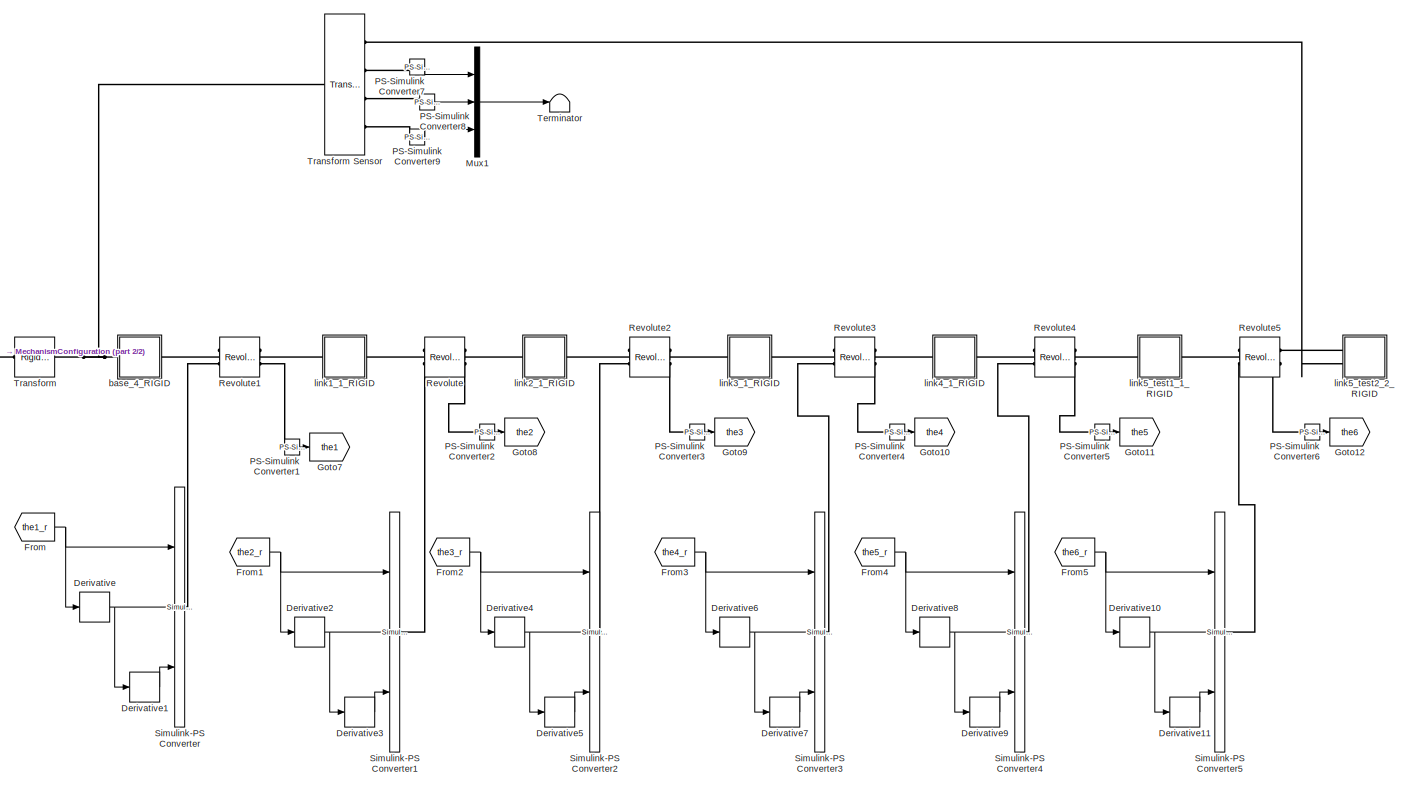
[diagram: Simscape Multibody - part 1/2, most of the canvas]
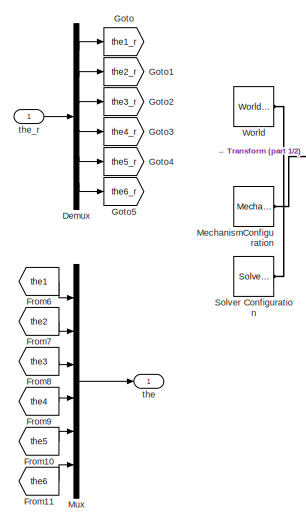
[diagram: Simscape Multibody - part 2/2, middle left region]
BLOCK [SubSystem] Simscape Multibody
  Ports = [1, 1]
  RequestExecContextInheritance = off
BLOCK [Demux] Simscape Multibody/Demux
  DisplayOption = bar
  Outputs = 6
  Ports = [1, 6]
BLOCK [Derivative] Simscape Multibody/Derivative
BLOCK [Derivative] Simscape Multibody/Derivative1
BLOCK [Derivative] Simscape Multibody/Derivative10
BLOCK [Derivative] Simscape Multibody/Derivative11
BLOCK [Derivative] Simscape Multibody/Derivative2
BLOCK [Derivative] Simscape Multibody/Derivative3
BLOCK [Derivative] Simscape Multibody/Derivative4
BLOCK [Derivative] Simscape Multibody/Derivative5
BLOCK [Derivative] Simscape Multibody/Derivative6
BLOCK [Derivative] Simscape Multibody/Derivative7
BLOCK [Derivative] Simscape Multibody/Derivative8
BLOCK [Derivative] Simscape Multibody/Derivative9
BLOCK [From] Simscape Multibody/From
  GotoTag = the1_r
BLOCK [From] Simscape Multibody/From1
  GotoTag = the2_r
BLOCK [From] Simscape Multibody/From10
  GotoTag = the5
BLOCK [From] Simscape Multibody/From11
  GotoTag = the6
BLOCK [From] Simscape Multibody/From2
  GotoTag = the3_r
BLOCK [From] Simscape Multibody/From3
  GotoTag = the4_r
BLOCK [From] Simscape Multibody/From4
  GotoTag = the5_r
BLOCK [From] Simscape Multibody/From5
  GotoTag = the6_r
BLOCK [From] Simscape Multibody/From6
  GotoTag = the1
BLOCK [From] Simscape Multibody/From7
  GotoTag = the2
BLOCK [From] Simscape Multibody/From8
  GotoTag = the3
BLOCK [From] Simscape Multibody/From9
  GotoTag = the4
BLOCK [Goto] Simscape Multibody/Goto
  GotoTag = the1_r
BLOCK [Goto] Simscape Multibody/Goto1
  GotoTag = the2_r
BLOCK [Goto] Simscape Multibody/Goto10
  GotoTag = the4
BLOCK [Goto] Simscape Multibody/Goto11
  GotoTag = the5
BLOCK [Goto] Simscape Multibody/Goto12
  GotoTag = the6
BLOCK [Goto] Simscape Multibody/Goto2
  GotoTag = the3_r
BLOCK [Goto] Simscape Multibody/Goto3
  GotoTag = the4_r
BLOCK [Goto] Simscape Multibody/Goto4
  GotoTag = the5_r
BLOCK [Goto] Simscape Multibody/Goto5
  GotoTag = the6_r
BLOCK [Goto] Simscape Multibody/Goto7
  GotoTag = the1
BLOCK [Goto] Simscape Multibody/Goto8
  GotoTag = the2
BLOCK [Goto] Simscape Multibody/Goto9
  GotoTag = the3
BLOCK [Reference] Simscape Multibody/MechanismConfiguration  REF=sm_lib/Utilities/Mechanism
Configuration
  Ports = [0, 0, 0, 0, 0, 0, 1]
  SourceBlock = sm_lib/Utilities/Mechanism\nConfiguration
  SourceProductBaseCode = MS
  SourceProductName = Simscape Multibody
  SourceType = Mechanism\nConfiguration
BLOCK [Mux] Simscape Multibody/Mux
  DisplayOption = bar
  Inputs = 6
  Ports = [6, 1]
BLOCK [Mux] Simscape Multibody/Mux1
  DisplayOption = bar
  Inputs = 3
  Ports = [3, 1]
BLOCK [Reference] Simscape Multibody/PS-Simulink Converter1  REF=nesl_utility/PS-Simulink
Converter
  Ports = [0, 1, 0, 0, 0, 1]
  SourceBlock = nesl_utility/PS-Simulink\nConverter
  SourceProductBaseCode = SS
  SourceProductName = Simscape
  SourceType = PS-Simulink\nConverter
BLOCK [Reference] Simscape Multibody/PS-Simulink Converter2  REF=nesl_utility/PS-Simulink
Converter
  Ports = [0, 1, 0, 0, 0, 1]
  SourceBlock = nesl_utility/PS-Simulink\nConverter
  SourceProductBaseCode = SS
  SourceProductName = Simscape
  SourceType = PS-Simulink\nConverter
BLOCK [Reference] Simscape Multibody/PS-Simulink Converter3  REF=nesl_utility/PS-Simulink
Converter
  Ports = [0, 1, 0, 0, 0, 1]
  SourceBlock = nesl_utility/PS-Simulink\nConverter
  SourceProductBaseCode = SS
  SourceProductName = Simscape
  SourceType = PS-Simulink\nConverter
BLOCK [Reference] Simscape Multibody/PS-Simulink Converter4  REF=nesl_utility/PS-Simulink
Converter
  Ports = [0, 1, 0, 0, 0, 1]
  SourceBlock = nesl_utility/PS-Simulink\nConverter
  SourceProductBaseCode = SS
  SourceProductName = Simscape
  SourceType = PS-Simulink\nConverter
BLOCK [Reference] Simscape Multibody/PS-Simulink Converter5  REF=nesl_utility/PS-Simulink
Converter
  Ports = [0, 1, 0, 0, 0, 1]
  SourceBlock = nesl_utility/PS-Simulink\nConverter
  SourceProductBaseCode = SS
  SourceProductName = Simscape
  SourceType = PS-Simulink\nConverter
BLOCK [Reference] Simscape Multibody/PS-Simulink Converter6  REF=nesl_utility/PS-Simulink
Converter
  Ports = [0, 1, 0, 0, 0, 1]
  SourceBlock = nesl_utility/PS-Simulink\nConverter
  SourceProductBaseCode = SS
  SourceProductName = Simscape
  SourceType = PS-Simulink\nConverter
BLOCK [Reference] Simscape Multibody/PS-Simulink Converter7  REF=nesl_utility/PS-Simulink
Converter
  Ports = [0, 1, 0, 0, 0, 1]
  SourceBlock = nesl_utility/PS-Simulink\nConverter
  SourceProductBaseCode = SS
  SourceProductName = Simscape
  SourceType = PS-Simulink\nConverter
BLOCK [Reference] Simscape Multibody/PS-Simulink Converter8  REF=nesl_utility/PS-Simulink
Converter
  Ports = [0, 1, 0, 0, 0, 1]
  SourceBlock = nesl_utility/PS-Simulink\nConverter
  SourceProductBaseCode = SS
  SourceProductName = Simscape
  SourceType = PS-Simulink\nConverter
BLOCK [Reference] Simscape Multibody/PS-Simulink Converter9  REF=nesl_utility/PS-Simulink
Converter
  Ports = [0, 1, 0, 0, 0, 1]
  SourceBlock = nesl_utility/PS-Simulink\nConverter
  SourceProductBaseCode = SS
  SourceProductName = Simscape
  SourceType = PS-Simulink\nConverter
BLOCK [Reference] Simscape Multibody/Revolute  REF=sm_lib/Joints/Revolute Joint
  Ports = [0, 0, 0, 0, 0, 2, 2]
  SourceBlock = sm_lib/Joints/Revolute Joint
  SourceProductBaseCode = MS
  SourceProductName = Simscape Multibody
  SourceType = Revolute Joint
BLOCK [Reference] Simscape Multibody/Revolute1  REF=sm_lib/Joints/Revolute Joint
  Ports = [0, 0, 0, 0, 0, 2, 2]
  SourceBlock = sm_lib/Joints/Revolute Joint
  SourceProductBaseCode = MS
  SourceProductName = Simscape Multibody
  SourceType = Revolute Joint
BLOCK [Reference] Simscape Multibody/Revolute2  REF=sm_lib/Joints/Revolute Joint
  Ports = [0, 0, 0, 0, 0, 2, 2]
  SourceBlock = sm_lib/Joints/Revolute Joint
  SourceProductBaseCode = MS
  SourceProductName = Simscape Multibody
  SourceType = Revolute Joint
BLOCK [Reference] Simscape Multibody/Revolute3  REF=sm_lib/Joints/Revolute Joint
  Ports = [0, 0, 0, 0, 0, 2, 2]
  SourceBlock = sm_lib/Joints/Revolute Joint
  SourceProductBaseCode = MS
  SourceProductName = Simscape Multibody
  SourceType = Revolute Joint
BLOCK [Reference] Simscape Multibody/Revolute4  REF=sm_lib/Joints/Revolute Joint
  Ports = [0, 0, 0, 0, 0, 2, 2]
  SourceBlock = sm_lib/Joints/Revolute Joint
  SourceProductBaseCode = MS
  SourceProductName = Simscape Multibody
  SourceType = Revolute Joint
BLOCK [Reference] Simscape Multibody/Revolute5  REF=sm_lib/Joints/Revolute Joint
  Ports = [0, 0, 0, 0, 0, 2, 2]
  SourceBlock = sm_lib/Joints/Revolute Joint
  SourceProductBaseCode = MS
  SourceProductName = Simscape Multibody
  SourceType = Revolute Joint
BLOCK [Reference] Simscape Multibody/Simulink-PS Converter  REF=nesl_utility/Simulink-PS
Converter
  Ports = [3, 0, 0, 0, 0, 0, 1]
  SourceBlock = nesl_utility/Simulink-PS\nConverter
  SourceProductBaseCode = SS
  SourceProductName = Simscape
  SourceType = Simulink-PS\nConverter
BLOCK [Reference] Simscape Multibody/Simulink-PS Converter1  REF=nesl_utility/Simulink-PS
Converter
  Ports = [3, 0, 0, 0, 0, 0, 1]
  SourceBlock = nesl_utility/Simulink-PS\nConverter
  SourceProductBaseCode = SS
  SourceProductName = Simscape
  SourceType = Simulink-PS\nConverter
BLOCK [Reference] Simscape Multibody/Simulink-PS Converter2  REF=nesl_utility/Simulink-PS
Converter
  Ports = [3, 0, 0, 0, 0, 0, 1]
  SourceBlock = nesl_utility/Simulink-PS\nConverter
  SourceProductBaseCode = SS
  SourceProductName = Simscape
  SourceType = Simulink-PS\nConverter
BLOCK [Reference] Simscape Multibody/Simulink-PS Converter3  REF=nesl_utility/Simulink-PS
Converter
  Ports = [3, 0, 0, 0, 0, 0, 1]
  SourceBlock = nesl_utility/Simulink-PS\nConverter
  SourceProductBaseCode = SS
  SourceProductName = Simscape
  SourceType = Simulink-PS\nConverter
BLOCK [Reference] Simscape Multibody/Simulink-PS Converter4  REF=nesl_utility/Simulink-PS
Converter
  Ports = [3, 0, 0, 0, 0, 0, 1]
  SourceBlock = nesl_utility/Simulink-PS\nConverter
  SourceProductBaseCode = SS
  SourceProductName = Simscape
  SourceType = Simulink-PS\nConverter
BLOCK [Reference] Simscape Multibody/Simulink-PS Converter5  REF=nesl_utility/Simulink-PS
Converter
  Ports = [3, 0, 0, 0, 0, 0, 1]
  SourceBlock = nesl_utility/Simulink-PS\nConverter
  SourceProductBaseCode = SS
  SourceProductName = Simscape
  SourceType = Simulink-PS\nConverter
BLOCK [Reference] Simscape Multibody/Solver Configuration  REF=nesl_utility/Solver
Configuration
  Ports = [0, 0, 0, 0, 0, 0, 1]
  SourceBlock = nesl_utility/Solver\nConfiguration
  SourceProductBaseCode = SS
  SourceProductName = Simscape
  SourceType = Solver\nConfiguration
BLOCK [Terminator] Simscape Multibody/Terminator
BLOCK [Reference] Simscape Multibody/Transform  REF=sm_lib/Frames and
Transforms/Rigid
Transform
  Ports = [0, 0, 0, 0, 0, 1, 1]
  SourceBlock = sm_lib/Frames and\nTransforms/Rigid\nTransform
  SourceProductBaseCode = MS
  SourceProductName = Simscape Multibody
  SourceType = Rigid\nTransform
BLOCK [Reference] Simscape Multibody/Transform Sensor  REF=sm_lib/Frames and
Transforms/Transform
Sensor
  Ports = [0, 0, 0, 0, 0, 1, 4]
  SourceBlock = sm_lib/Frames and\nTransforms/Transform\nSensor
  SourceProductBaseCode = MS
  SourceProductName = Simscape Multibody
  SourceType = Transform\nSensor
BLOCK [Reference] Simscape Multibody/World  REF=sm_lib/Frames and
Transforms/World Frame
  Ports = [0, 0, 0, 0, 0, 0, 1]
  SourceBlock = sm_lib/Frames and\nTransforms/World Frame
  SourceProductBaseCode = MS
  SourceProductName = Simscape Multibody
  SourceType = World Frame
BLOCK [SubSystem] Simscape Multibody/base_4_RIGID
  Ports = [0, 0, 0, 0, 0, 1, 1]
  RequestExecContextInheritance = off
BLOCK [PMIOPort] Simscape Multibody/base_4_RIGID/F
  Port = 2
  Side = Right
BLOCK [PMIOPort] Simscape Multibody/base_4_RIGID/F1
  Side = Left
BLOCK [Reference] Simscape Multibody/base_4_RIGID/ReferenceFrame  REF=sm_lib/Frames and
Transforms/Reference
Frame
  Ports = [0, 0, 0, 0, 0, 0, 1]
  SourceBlock = sm_lib/Frames and\nTransforms/Reference\nFrame
  SourceProductBaseCode = MS
  SourceProductName = Simscape Multibody
  SourceType = Reference\nFrame
BLOCK [Reference] Simscape Multibody/base_4_RIGID/Solid  REF=sm_lib/Body Elements/Solid
  Ports = [0, 0, 0, 0, 0, 0, 1]
  SourceBlock = sm_lib/Body Elements/Solid
  SourceProductBaseCode = MS
  SourceProductName = Simscape Multibody
  SourceType = Solid
BLOCK [Reference] Simscape Multibody/base_4_RIGID/Transform  REF=sm_lib/Frames and
Transforms/Rigid
Transform
  Ports = [0, 0, 0, 0, 0, 1, 1]
  SourceBlock = sm_lib/Frames and\nTransforms/Rigid\nTransform
  SourceProductBaseCode = MS
  SourceProductName = Simscape Multibody
  SourceType = Rigid\nTransform
BLOCK [SubSystem] Simscape Multibody/link1_1_RIGID
  Ports = [0, 0, 0, 0, 0, 1, 1]
  RequestExecContextInheritance = off
BLOCK [PMIOPort] Simscape Multibody/link1_1_RIGID/F
  Port = 2
  Side = Right
BLOCK [PMIOPort] Simscape Multibody/link1_1_RIGID/F1
  Side = Left
BLOCK [Reference] Simscape Multibody/link1_1_RIGID/ReferenceFrame  REF=sm_lib/Frames and
Transforms/Reference
Frame
  Ports = [0, 0, 0, 0, 0, 0, 1]
  SourceBlock = sm_lib/Frames and\nTransforms/Reference\nFrame
  SourceProductBaseCode = MS
  SourceProductName = Simscape Multibody
  SourceType = Reference\nFrame
BLOCK [Reference] Simscape Multibody/link1_1_RIGID/Solid  REF=sm_lib/Body Elements/Solid
  Ports = [0, 0, 0, 0, 0, 0, 1]
  SourceBlock = sm_lib/Body Elements/Solid
  SourceProductBaseCode = MS
  SourceProductName = Simscape Multibody
  SourceType = Solid
BLOCK [Reference] Simscape Multibody/link1_1_RIGID/Transform  REF=sm_lib/Frames and
Transforms/Rigid
Transform
  Ports = [0, 0, 0, 0, 0, 1, 1]
  SourceBlock = sm_lib/Frames and\nTransforms/Rigid\nTransform
  SourceProductBaseCode = MS
  SourceProductName = Simscape Multibody
  SourceType = Rigid\nTransform
BLOCK [Reference] Simscape Multibody/link1_1_RIGID/Transform1  REF=sm_lib/Frames and
Transforms/Rigid
Transform
  Ports = [0, 0, 0, 0, 0, 1, 1]
  SourceBlock = sm_lib/Frames and\nTransforms/Rigid\nTransform
  SourceProductBaseCode = MS
  SourceProductName = Simscape Multibody
  SourceType = Rigid\nTransform
BLOCK [SubSystem] Simscape Multibody/link2_1_RIGID
  Ports = [0, 0, 0, 0, 0, 1, 1]
  RequestExecContextInheritance = off
BLOCK [PMIOPort] Simscape Multibody/link2_1_RIGID/F
  Side = Left
BLOCK [PMIOPort] Simscape Multibody/link2_1_RIGID/F1
  Port = 2
  Side = Right
BLOCK [Reference] Simscape Multibody/link2_1_RIGID/ReferenceFrame  REF=sm_lib/Frames and
Transforms/Reference
Frame
  Ports = [0, 0, 0, 0, 0, 0, 1]
  SourceBlock = sm_lib/Frames and\nTransforms/Reference\nFrame
  SourceProductBaseCode = MS
  SourceProductName = Simscape Multibody
  SourceType = Reference\nFrame
BLOCK [Reference] Simscape Multibody/link2_1_RIGID/Solid  REF=sm_lib/Body Elements/Solid
  Ports = [0, 0, 0, 0, 0, 0, 1]
  SourceBlock = sm_lib/Body Elements/Solid
  SourceProductBaseCode = MS
  SourceProductName = Simscape Multibody
  SourceType = Solid
BLOCK [Reference] Simscape Multibody/link2_1_RIGID/Transform  REF=sm_lib/Frames and
Transforms/Rigid
Transform
  Ports = [0, 0, 0, 0, 0, 1, 1]
  SourceBlock = sm_lib/Frames and\nTransforms/Rigid\nTransform
  SourceProductBaseCode = MS
  SourceProductName = Simscape Multibody
  SourceType = Rigid\nTransform
BLOCK [Reference] Simscape Multibody/link2_1_RIGID/Transform1  REF=sm_lib/Frames and
Transforms/Rigid
Transform
  Ports = [0, 0, 0, 0, 0, 1, 1]
  SourceBlock = sm_lib/Frames and\nTransforms/Rigid\nTransform
  SourceProductBaseCode = MS
  SourceProductName = Simscape Multibody
  SourceType = Rigid\nTransform
BLOCK [SubSystem] Simscape Multibody/link3_1_RIGID
  Ports = [0, 0, 0, 0, 0, 1, 1]
  RequestExecContextInheritance = off
BLOCK [PMIOPort] Simscape Multibody/link3_1_RIGID/F
  Side = Left
BLOCK [PMIOPort] Simscape Multibody/link3_1_RIGID/F1
  Port = 2
  Side = Right
BLOCK [Reference] Simscape Multibody/link3_1_RIGID/ReferenceFrame  REF=sm_lib/Frames and
Transforms/Reference
Frame
  Ports = [0, 0, 0, 0, 0, 0, 1]
  SourceBlock = sm_lib/Frames and\nTransforms/Reference\nFrame
  SourceProductBaseCode = MS
  SourceProductName = Simscape Multibody
  SourceType = Reference\nFrame
BLOCK [Reference] Simscape Multibody/link3_1_RIGID/Solid  REF=sm_lib/Body Elements/Solid
  Ports = [0, 0, 0, 0, 0, 0, 1]
  SourceBlock = sm_lib/Body Elements/Solid
  SourceProductBaseCode = MS
  SourceProductName = Simscape Multibody
  SourceType = Solid
BLOCK [Reference] Simscape Multibody/link3_1_RIGID/Transform  REF=sm_lib/Frames and
Transforms/Rigid
Transform
  Ports = [0, 0, 0, 0, 0, 1, 1]
  SourceBlock = sm_lib/Frames and\nTransforms/Rigid\nTransform
  SourceProductBaseCode = MS
  SourceProductName = Simscape Multibody
  SourceType = Rigid\nTransform
BLOCK [Reference] Simscape Multibody/link3_1_RIGID/Transform1  REF=sm_lib/Frames and
Transforms/Rigid
Transform
  Ports = [0, 0, 0, 0, 0, 1, 1]
  SourceBlock = sm_lib/Frames and\nTransforms/Rigid\nTransform
  SourceProductBaseCode = MS
  SourceProductName = Simscape Multibody
  SourceType = Rigid\nTransform
BLOCK [SubSystem] Simscape Multibody/link4_1_RIGID
  Ports = [0, 0, 0, 0, 0, 1, 1]
  RequestExecContextInheritance = off
BLOCK [PMIOPort] Simscape Multibody/link4_1_RIGID/F
  Side = Left
BLOCK [PMIOPort] Simscape Multibody/link4_1_RIGID/F1
  Port = 2
  Side = Right
BLOCK [Reference] Simscape Multibody/link4_1_RIGID/ReferenceFrame  REF=sm_lib/Frames and
Transforms/Reference
Frame
  Ports = [0, 0, 0, 0, 0, 0, 1]
  SourceBlock = sm_lib/Frames and\nTransforms/Reference\nFrame
  SourceProductBaseCode = MS
  SourceProductName = Simscape Multibody
  SourceType = Reference\nFrame
BLOCK [Reference] Simscape Multibody/link4_1_RIGID/Solid  REF=sm_lib/Body Elements/Solid
  Ports = [0, 0, 0, 0, 0, 0, 1]
  SourceBlock = sm_lib/Body Elements/Solid
  SourceProductBaseCode = MS
  SourceProductName = Simscape Multibody
  SourceType = Solid
BLOCK [Reference] Simscape Multibody/link4_1_RIGID/Transform  REF=sm_lib/Frames and
Transforms/Rigid
Transform
  Ports = [0, 0, 0, 0, 0, 1, 1]
  SourceBlock = sm_lib/Frames and\nTransforms/Rigid\nTransform
  SourceProductBaseCode = MS
  SourceProductName = Simscape Multibody
  SourceType = Rigid\nTransform
BLOCK [Reference] Simscape Multibody/link4_1_RIGID/Transform1  REF=sm_lib/Frames and
Transforms/Rigid
Transform
  Ports = [0, 0, 0, 0, 0, 1, 1]
  SourceBlock = sm_lib/Frames and\nTransforms/Rigid\nTransform
  SourceProductBaseCode = MS
  SourceProductName = Simscape Multibody
  SourceType = Rigid\nTransform
BLOCK [SubSystem] Simscape Multibody/link5_test1_1_RIGID
  Ports = [0, 0, 0, 0, 0, 1, 1]
  RequestExecContextInheritance = off
BLOCK [PMIOPort] Simscape Multibody/link5_test1_1_RIGID/F
  Side = Left
BLOCK [PMIOPort] Simscape Multibody/link5_test1_1_RIGID/F1
  Port = 2
  Side = Right
BLOCK [Reference] Simscape Multibody/link5_test1_1_RIGID/ReferenceFrame  REF=sm_lib/Frames and
Transforms/Reference
Frame
  Ports = [0, 0, 0, 0, 0, 0, 1]
  SourceBlock = sm_lib/Frames and\nTransforms/Reference\nFrame
  SourceProductBaseCode = MS
  SourceProductName = Simscape Multibody
  SourceType = Reference\nFrame
BLOCK [Reference] Simscape Multibody/link5_test1_1_RIGID/Solid  REF=sm_lib/Body Elements/Solid
  Ports = [0, 0, 0, 0, 0, 0, 1]
  SourceBlock = sm_lib/Body Elements/Solid
  SourceProductBaseCode = MS
  SourceProductName = Simscape Multibody
  SourceType = Solid
BLOCK [Reference] Simscape Multibody/link5_test1_1_RIGID/Transform  REF=sm_lib/Frames and
Transforms/Rigid
Transform
  Ports = [0, 0, 0, 0, 0, 1, 1]
  SourceBlock = sm_lib/Frames and\nTransforms/Rigid\nTransform
  SourceProductBaseCode = MS
  SourceProductName = Simscape Multibody
  SourceType = Rigid\nTransform
BLOCK [Reference] Simscape Multibody/link5_test1_1_RIGID/Transform1  REF=sm_lib/Frames and
Transforms/Rigid
Transform
  Ports = [0, 0, 0, 0, 0, 1, 1]
  SourceBlock = sm_lib/Frames and\nTransforms/Rigid\nTransform
  SourceProductBaseCode = MS
  SourceProductName = Simscape Multibody
  SourceType = Rigid\nTransform
BLOCK [SubSystem] Simscape Multibody/link5_test2_2_RIGID
  Ports = [0, 0, 0, 0, 0, 2]
  RequestExecContextInheritance = off
BLOCK [PMIOPort] Simscape Multibody/link5_test2_2_RIGID/F
  Side = Left
BLOCK [PMIOPort] Simscape Multibody/link5_test2_2_RIGID/R
  Port = 2
  Side = Left
BLOCK [Reference] Simscape Multibody/link5_test2_2_RIGID/ReferenceFrame  REF=sm_lib/Frames and
Transforms/Reference
Frame
  Ports = [0, 0, 0, 0, 0, 0, 1]
  SourceBlock = sm_lib/Frames and\nTransforms/Reference\nFrame
  SourceProductBaseCode = MS
  SourceProductName = Simscape Multibody
  SourceType = Reference\nFrame
BLOCK [Reference] Simscape Multibody/link5_test2_2_RIGID/Solid  REF=sm_lib/Body Elements/Solid
  Ports = [0, 0, 0, 0, 0, 0, 1]
  SourceBlock = sm_lib/Body Elements/Solid
  SourceProductBaseCode = MS
  SourceProductName = Simscape Multibody
  SourceType = Solid
BLOCK [Reference] Simscape Multibody/link5_test2_2_RIGID/Transform  REF=sm_lib/Frames and
Transforms/Rigid
Transform
  Ports = [0, 0, 0, 0, 0, 1, 1]
  SourceBlock = sm_lib/Frames and\nTransforms/Rigid\nTransform
  SourceProductBaseCode = MS
  SourceProductName = Simscape Multibody
  SourceType = Rigid\nTransform
BLOCK [Reference] Simscape Multibody/link5_test2_2_RIGID/Transform2  REF=sm_lib/Frames and
Transforms/Rigid
Transform
  Ports = [0, 0, 0, 0, 0, 1, 1]
  SourceBlock = sm_lib/Frames and\nTransforms/Rigid\nTransform
  SourceProductBaseCode = MS
  SourceProductName = Simscape Multibody
  SourceType = Rigid\nTransform
BLOCK [Outport] Simscape Multibody/the
  IconDisplay = Port number
BLOCK [Inport] Simscape Multibody/the_r
  IconDisplay = Port number
BLOCK [SubSystem] Sliding Mode Control
  Commented = on
  Ports = [9, 3]
  RequestExecContextInheritance = off
BLOCK [SubSystem] Sliding Mode Control via Linear Extend State Observer
  Commented = on
  Ports = [10, 3]
  RequestExecContextInheritance = off
BLOCK [From] Sliding Mode Control via Linear Extend State Observer/From3
  GotoTag = m
  TagVisibility = global
BLOCK [From] Sliding Mode Control via Linear Extend State Observer/From4
  GotoTag = L
  TagVisibility = global
BLOCK [From] Sliding Mode Control via Linear Extend State Observer/From5
  GotoTag = Pic
  TagVisibility = global
BLOCK [From] Sliding Mode Control via Linear Extend State Observer/From6
  GotoTag = I
  TagVisibility = global
BLOCK [Inport] Sliding Mode Control via Linear Extend State Observer/K
  IconDisplay = Port number
  Port = 9
BLOCK [SubSystem] Sliding Mode Control via Linear Extend State Observer/Sliding Mode Control via Linear Extend State Observer
  ErrorFcn = Stateflow.Translate.translate
  PermitHierarchicalResolution = ExplicitOnly
  Ports = [14, 3]
  RequestExecContextInheritance = off
  SFBlockType = MATLAB Function
  TreatAsAtomicUnit = on
BLOCK [Demux] Sliding Mode Control via Linear Extend State Observer/Sliding Mode Control via Linear Extend State Observer/ Demux 
  Outputs = 1
  Ports = [1, 1]
BLOCK [S-Function] Sliding Mode Control via Linear Extend State Observer/Sliding Mode Control via Linear Extend State Observer/ SFunction 
  EnableBusSupport = on
  FunctionName = sf_sfun
  PortCounts = [14 4]
  Ports = [14, 4]
  SFcnIsStateOwnerBlock = off
  SFunctionDeploymentMode = off
  Tag = Stateflow S-Function CONTROL_01 6
BLOCK [Terminator] Sliding Mode Control via Linear Extend State Observer/Sliding Mode Control via Linear Extend State Observer/ Terminator 
BLOCK [Inport] Sliding Mode Control via Linear Extend State Observer/Sliding Mode Control via Linear Extend State Observer/I
  IconDisplay = Port number
  Port = 14
BLOCK [Inport] Sliding Mode Control via Linear Extend State Observer/Sliding Mode Control via Linear Extend State Observer/K
  IconDisplay = Port number
  Port = 8
BLOCK [Inport] Sliding Mode Control via Linear Extend State Observer/Sliding Mode Control via Linear Extend State Observer/L
  IconDisplay = Port number
  Port = 12
BLOCK [Inport] Sliding Mode Control via Linear Extend State Observer/Sliding Mode Control via Linear Extend State Observer/Pic
  IconDisplay = Port number
  Port = 13
BLOCK [Inport] Sliding Mode Control via Linear Extend State Observer/Sliding Mode Control via Linear Extend State Observer/ddthe_r
  IconDisplay = Port number
  Port = 6
BLOCK [Inport] Sliding Mode Control via Linear Extend State Observer/Sliding Mode Control via Linear Extend State Observer/dthe
  IconDisplay = Port number
  Port = 2
BLOCK [Inport] Sliding Mode Control via Linear Extend State Observer/Sliding Mode Control via Linear Extend State Observer/dthe_r
  IconDisplay = Port number
  Port = 4
BLOCK [Outport] Sliding Mode Control via Linear Extend State Observer/Sliding Mode Control via Linear Extend State Observer/e_d
  IconDisplay = Port number
  Port = 3
BLOCK [Inport] Sliding Mode Control via Linear Extend State Observer/Sliding Mode Control via Linear Extend State Observer/eta
  IconDisplay = Port number
  Port = 9
BLOCK [Inport] Sliding Mode Control via Linear Extend State Observer/Sliding Mode Control via Linear Extend State Observer/lamda
  IconDisplay = Port number
  Port = 7
BLOCK [Inport] Sliding Mode Control via Linear Extend State Observer/Sliding Mode Control via Linear Extend State Observer/m
  IconDisplay = Port number
  Port = 11
BLOCK [Inport] Sliding Mode Control via Linear Extend State Observer/Sliding Mode Control via Linear Extend State Observer/psi
  IconDisplay = Port number
  Port = 10
BLOCK [Outport] Sliding Mode Control via Linear Extend State Observer/Sliding Mode Control via Linear Extend State Observer/s
  IconDisplay = Port number
  Port = 2
BLOCK [Inport] Sliding Mode Control via Linear Extend State Observer/Sliding Mode Control via Linear Extend State Observer/the
  IconDisplay = Port number
BLOCK [Inport] Sliding Mode Control via Linear Extend State Observer/Sliding Mode Control via Linear Extend State Observer/the_r
  IconDisplay = Port number
  Port = 3
BLOCK [Outport] Sliding Mode Control via Linear Extend State Observer/Sliding Mode Control via Linear Extend State Observer/u
  IconDisplay = Port number
BLOCK [Inport] Sliding Mode Control via Linear Extend State Observer/Sliding Mode Control via Linear Extend State Observer/x3_hat
  IconDisplay = Port number
  Port = 5
BLOCK [Inport] Sliding Mode Control via Linear Extend State Observer/ddthe_r
  IconDisplay = Port number
  Port = 5
BLOCK [Inport] Sliding Mode Control via Linear Extend State Observer/dthe
  IconDisplay = Port number
  Port = 2
BLOCK [Inport] Sliding Mode Control via Linear Extend State Observer/dthe_r
  IconDisplay = Port number
  Port = 4
BLOCK [Outport] Sliding Mode Control via Linear Extend State Observer/e_d
  IconDisplay = Port number
  Port = 3
BLOCK [Inport] Sliding Mode Control via Linear Extend State Observer/eta
  IconDisplay = Port number
  Port = 10
BLOCK [Inport] Sliding Mode Control via Linear Extend State Observer/lamda
  IconDisplay = Port number
  Port = 8
BLOCK [Inport] Sliding Mode Control via Linear Extend State Observer/psi
  IconDisplay = Port number
  Port = 7
BLOCK [Outport] Sliding Mode Control via Linear Extend State Observer/s
  IconDisplay = Port number
  Port = 2
BLOCK [Inport] Sliding Mode Control via Linear Extend State Observer/the
  IconDisplay = Port number
BLOCK [Inport] Sliding Mode Control via Linear Extend State Observer/the_r
  IconDisplay = Port number
  Port = 3
BLOCK [Outport] Sliding Mode Control via Linear Extend State Observer/u
  IconDisplay = Port number
BLOCK [Inport] Sliding Mode Control via Linear Extend State Observer/x3_hat
  IconDisplay = Port number
  Port = 6
BLOCK [From] Sliding Mode Control/From3
  GotoTag = m
  TagVisibility = global
BLOCK [From] Sliding Mode Control/From4
  GotoTag = L
  TagVisibility = global
BLOCK [From] Sliding Mode Control/From5
  GotoTag = Pic
  TagVisibility = global
BLOCK [From] Sliding Mode Control/From6
  GotoTag = I
  TagVisibility = global
BLOCK [Inport] Sliding Mode Control/K
  IconDisplay = Port number
  Port = 8
BLOCK [SubSystem] Sliding Mode Control/Sliding Mode Control
  ErrorFcn = Stateflow.Translate.translate
  PermitHierarchicalResolution = ExplicitOnly
  Ports = [13, 3]
  RequestExecContextInheritance = off
  SFBlockType = MATLAB Function
  TreatAsAtomicUnit = on
BLOCK [Demux] Sliding Mode Control/Sliding Mode Control/ Demux 
  Outputs = 1
  Ports = [1, 1]
BLOCK [S-Function] Sliding Mode Control/Sliding Mode Control/ SFunction 
  EnableBusSupport = on
  FunctionName = sf_sfun
  PortCounts = [13 4]
  Ports = [13, 4]
  SFcnIsStateOwnerBlock = off
  SFunctionDeploymentMode = off
  Tag = Stateflow S-Function CONTROL_01 14
BLOCK [Terminator] Sliding Mode Control/Sliding Mode Control/ Terminator 
BLOCK [Inport] Sliding Mode Control/Sliding Mode Control/I
  IconDisplay = Port number
  Port = 13
BLOCK [Inport] Sliding Mode Control/Sliding Mode Control/K
  IconDisplay = Port number
  Port = 7
BLOCK [Inport] Sliding Mode Control/Sliding Mode Control/L
  IconDisplay = Port number
  Port = 11
BLOCK [Inport] Sliding Mode Control/Sliding Mode Control/Pic
  IconDisplay = Port number
  Port = 12
BLOCK [Inport] Sliding Mode Control/Sliding Mode Control/ddthe_r
  IconDisplay = Port number
  Port = 5
BLOCK [Inport] Sliding Mode Control/Sliding Mode Control/dthe
  IconDisplay = Port number
  Port = 2
BLOCK [Inport] Sliding Mode Control/Sliding Mode Control/dthe_r
  IconDisplay = Port number
  Port = 4
BLOCK [Outport] Sliding Mode Control/Sliding Mode Control/e_d
  IconDisplay = Port number
  Port = 3
BLOCK [Inport] Sliding Mode Control/Sliding Mode Control/eta
  IconDisplay = Port number
  Port = 8
BLOCK [Inport] Sliding Mode Control/Sliding Mode Control/lamda
  IconDisplay = Port number
  Port = 6
BLOCK [Inport] Sliding Mode Control/Sliding Mode Control/m
  IconDisplay = Port number
  Port = 10
BLOCK [Inport] Sliding Mode Control/Sliding Mode Control/psi
  IconDisplay = Port number
  Port = 9
BLOCK [Outport] Sliding Mode Control/Sliding Mode Control/s
  IconDisplay = Port number
  Port = 2
BLOCK [Inport] Sliding Mode Control/Sliding Mode Control/the
  IconDisplay = Port number
BLOCK [Inport] Sliding Mode Control/Sliding Mode Control/the_r
  IconDisplay = Port number
  Port = 3
BLOCK [Outport] Sliding Mode Control/Sliding Mode Control/u
  IconDisplay = Port number
BLOCK [Inport] Sliding Mode Control/ddthe_r
  IconDisplay = Port number
  Port = 5
BLOCK [Inport] Sliding Mode Control/dthe
  IconDisplay = Port number
  Port = 2
BLOCK [Inport] Sliding Mode Control/dthe_r
  IconDisplay = Port number
  Port = 4
BLOCK [Outport] Sliding Mode Control/e_d
  IconDisplay = Port number
  Port = 3
BLOCK [Inport] Sliding Mode Control/eta
  IconDisplay = Port number
  Port = 9
BLOCK [Inport] Sliding Mode Control/lamda
  IconDisplay = Port number
  Port = 7
BLOCK [Inport] Sliding Mode Control/psi
  IconDisplay = Port number
  Port = 6
BLOCK [Outport] Sliding Mode Control/s
  IconDisplay = Port number
  Port = 2
BLOCK [Inport] Sliding Mode Control/the
  IconDisplay = Port number
BLOCK [Inport] Sliding Mode Control/the_r
  IconDisplay = Port number
  Port = 3
BLOCK [Outport] Sliding Mode Control/u
  IconDisplay = Port number
BLOCK [Step] Step
  After = 20
  SampleTime = 0
  Time = 10
BLOCK [Step] Step1
  After = 0.7
  Before = 1
  SampleTime = 0
  Time = 20
BLOCK [Sum] Sum
  Commented = on
  InputSameDT = off
  Inputs = +-
  OutDataTypeStr = Inherit: Inherit via internal rule
  Ports = [2, 1]
  SaturateOnIntegerOverflow = off
BLOCK [Sum] Sum1
  Commented = on
  InputSameDT = off
  Inputs = +-
  OutDataTypeStr = Inherit: Inherit via internal rule
  Ports = [2, 1]
  SaturateOnIntegerOverflow = off
BLOCK [Sum] Sum13
  Commented = on
  InputSameDT = off
  Inputs = +-
  OutDataTypeStr = Inherit: Inherit via internal rule
  Ports = [2, 1]
  SaturateOnIntegerOverflow = off
BLOCK [Sum] Sum17
  Commented = on
  InputSameDT = off
  Inputs = +-
  OutDataTypeStr = Inherit: Inherit via internal rule
  Ports = [2, 1]
  SaturateOnIntegerOverflow = off
BLOCK [Sum] Sum18
  Commented = on
  InputSameDT = off
  Inputs = +-
  OutDataTypeStr = Inherit: Inherit via internal rule
  Ports = [2, 1]
  SaturateOnIntegerOverflow = off
BLOCK [Sum] Sum19
  Commented = on
  InputSameDT = off
  Inputs = +-
  OutDataTypeStr = Inherit: Inherit via internal rule
  Ports = [2, 1]
  SaturateOnIntegerOverflow = off
BLOCK [Sum] Sum2
  Commented = on
  InputSameDT = off
  Inputs = +-
  OutDataTypeStr = Inherit: Inherit via internal rule
  Ports = [2, 1]
  SaturateOnIntegerOverflow = off
BLOCK [Sum] Sum20
  Commented = on
  InputSameDT = off
  Inputs = +-
  OutDataTypeStr = Inherit: Inherit via internal rule
  Ports = [2, 1]
  SaturateOnIntegerOverflow = off
BLOCK [Sum] Sum22
  Commented = on
  InputSameDT = off
  Inputs = +-
  OutDataTypeStr = Inherit: Inherit via internal rule
  Ports = [2, 1]
  SaturateOnIntegerOverflow = off
BLOCK [Sum] Sum25
  Commented = on
  InputSameDT = off
  Inputs = +-
  OutDataTypeStr = Inherit: Inherit via internal rule
  Ports = [2, 1]
  SaturateOnIntegerOverflow = off
BLOCK [Sum] Sum29
  Commented = on
  InputSameDT = off
  Inputs = +-
  OutDataTypeStr = Inherit: Inherit via internal rule
  Ports = [2, 1]
  SaturateOnIntegerOverflow = off
BLOCK [Sum] Sum3
  Commented = on
  InputSameDT = off
  Inputs = +-
  OutDataTypeStr = Inherit: Inherit via internal rule
  Ports = [2, 1]
  SaturateOnIntegerOverflow = off
BLOCK [Sum] Sum30
  Commented = on
  InputSameDT = off
  Inputs = +-
  OutDataTypeStr = Inherit: Inherit via internal rule
  Ports = [2, 1]
  SaturateOnIntegerOverflow = off
BLOCK [Sum] Sum31
  Commented = on
  InputSameDT = off
  Inputs = +-
  OutDataTypeStr = Inherit: Inherit via internal rule
  Ports = [2, 1]
  SaturateOnIntegerOverflow = off
BLOCK [Sum] Sum32
  Commented = on
  InputSameDT = off
  Inputs = +-
  OutDataTypeStr = Inherit: Inherit via internal rule
  Ports = [2, 1]
  SaturateOnIntegerOverflow = off
BLOCK [Sum] Sum34
  Commented = on
  InputSameDT = off
  Inputs = +-
  OutDataTypeStr = Inherit: Inherit via internal rule
  Ports = [2, 1]
  SaturateOnIntegerOverflow = off
BLOCK [Sum] Sum37
  Commented = on
  InputSameDT = off
  Inputs = +-
  OutDataTypeStr = Inherit: Inherit via internal rule
  Ports = [2, 1]
  SaturateOnIntegerOverflow = off
BLOCK [Sum] Sum38
  Commented = on
  InputSameDT = off
  Inputs = +-
  OutDataTypeStr = Inherit: Inherit via internal rule
  Ports = [2, 1]
  SaturateOnIntegerOverflow = off
BLOCK [Sum] Sum39
  Commented = on
  InputSameDT = off
  Inputs = +-
  OutDataTypeStr = Inherit: Inherit via internal rule
  Ports = [2, 1]
  SaturateOnIntegerOverflow = off
BLOCK [Sum] Sum4
  Commented = on
  InputSameDT = off
  Inputs = +-
  OutDataTypeStr = Inherit: Inherit via internal rule
  Ports = [2, 1]
  SaturateOnIntegerOverflow = off
BLOCK [Sum] Sum40
  Commented = on
  InputSameDT = off
  Inputs = +-
  OutDataTypeStr = Inherit: Inherit via internal rule
  Ports = [2, 1]
  SaturateOnIntegerOverflow = off
BLOCK [Sum] Sum41
  Commented = on
  InputSameDT = off
  Inputs = +-
  OutDataTypeStr = Inherit: Inherit via internal rule
  Ports = [2, 1]
  SaturateOnIntegerOverflow = off
BLOCK [Sum] Sum42
  Commented = on
  InputSameDT = off
  Inputs = +-
  OutDataTypeStr = Inherit: Inherit via internal rule
  Ports = [2, 1]
  SaturateOnIntegerOverflow = off
BLOCK [Sum] Sum43
  Commented = on
  InputSameDT = off
  Inputs = +-
  OutDataTypeStr = Inherit: Inherit via internal rule
  Ports = [2, 1]
  SaturateOnIntegerOverflow = off
BLOCK [Sum] Sum44
  Commented = on
  InputSameDT = off
  Inputs = +-
  OutDataTypeStr = Inherit: Inherit via internal rule
  Ports = [2, 1]
  SaturateOnIntegerOverflow = off
BLOCK [Sum] Sum45
  Commented = on
  InputSameDT = off
  Inputs = +-
  OutDataTypeStr = Inherit: Inherit via internal rule
  Ports = [2, 1]
  SaturateOnIntegerOverflow = off
BLOCK [Sum] Sum46
  Commented = on
  InputSameDT = off
  Inputs = +-
  OutDataTypeStr = Inherit: Inherit via internal rule
  Ports = [2, 1]
  SaturateOnIntegerOverflow = off
BLOCK [Sum] Sum47
  Commented = on
  InputSameDT = off
  Inputs = +-
  OutDataTypeStr = Inherit: Inherit via internal rule
  Ports = [2, 1]
  SaturateOnIntegerOverflow = off
BLOCK [Sum] Sum48
  Commented = on
  InputSameDT = off
  Inputs = +-
  OutDataTypeStr = Inherit: Inherit via internal rule
  Ports = [2, 1]
  SaturateOnIntegerOverflow = off
BLOCK [Sum] Sum49
  InputSameDT = off
  Inputs = +-
  OutDataTypeStr = Inherit: Inherit via internal rule
  Ports = [2, 1]
  SaturateOnIntegerOverflow = off
BLOCK [Sum] Sum5
  Commented = on
  InputSameDT = off
  Inputs = +-
  OutDataTypeStr = Inherit: Inherit via internal rule
  Ports = [2, 1]
  SaturateOnIntegerOverflow = off
BLOCK [Sum] Sum53
  InputSameDT = off
  Inputs = +-
  OutDataTypeStr = Inherit: Inherit via internal rule
  Ports = [2, 1]
  SaturateOnIntegerOverflow = off
BLOCK [Sum] Sum54
  InputSameDT = off
  Inputs = +-
  OutDataTypeStr = Inherit: Inherit via internal rule
  Ports = [2, 1]
  SaturateOnIntegerOverflow = off
BLOCK [Sum] Sum55
  InputSameDT = off
  Inputs = +-
  OutDataTypeStr = Inherit: Inherit via internal rule
  Ports = [2, 1]
  SaturateOnIntegerOverflow = off
BLOCK [Sum] Sum56
  InputSameDT = off
  Inputs = +-
  OutDataTypeStr = Inherit: Inherit via internal rule
  Ports = [2, 1]
  SaturateOnIntegerOverflow = off
BLOCK [Sum] Sum58
  InputSameDT = off
  Inputs = +-
  OutDataTypeStr = Inherit: Inherit via internal rule
  Ports = [2, 1]
  SaturateOnIntegerOverflow = off
BLOCK [Sum] Sum61
  Commented = on
  InputSameDT = off
  Inputs = +-
  OutDataTypeStr = Inherit: Inherit via internal rule
  Ports = [2, 1]
  SaturateOnIntegerOverflow = off
BLOCK [Sum] Sum62
  Commented = on
  InputSameDT = off
  Inputs = +-
  OutDataTypeStr = Inherit: Inherit via internal rule
  Ports = [2, 1]
  SaturateOnIntegerOverflow = off
BLOCK [Sum] Sum63
  Commented = on
  InputSameDT = off
  Inputs = +-
  OutDataTypeStr = Inherit: Inherit via internal rule
  Ports = [2, 1]
  SaturateOnIntegerOverflow = off
BLOCK [Sum] Sum64
  Commented = on
  InputSameDT = off
  Inputs = +-
  OutDataTypeStr = Inherit: Inherit via internal rule
  Ports = [2, 1]
  SaturateOnIntegerOverflow = off
BLOCK [Sum] Sum7
  Commented = on
  InputSameDT = off
  Inputs = +-
  OutDataTypeStr = Inherit: Inherit via internal rule
  Ports = [2, 1]
  SaturateOnIntegerOverflow = off
BLOCK [Terminator] Terminator
  Commented = on
BLOCK [Terminator] Terminator1
  Commented = on
BLOCK [Terminator] Terminator15
  Commented = on
BLOCK [Terminator] Terminator16
  Commented = on
BLOCK [Terminator] Terminator2
  Commented = on
BLOCK [Terminator] Terminator3
  Commented = on
BLOCK [Terminator] Terminator4
BLOCK [Terminator] Terminator5
BLOCK [ToWorkspace] To Workspace
  Commented = on
  FixptAsFi = on
  MaxDataPoints = inf
  Ports = [1]
  SampleTime = -1
  Save2DSignal = 3-D array (concatenate along third dimension)
  SaveFormat = Structure With Time
  VariableName = uPID
BLOCK [ToWorkspace] To Workspace1
  Commented = on
  FixptAsFi = on
  MaxDataPoints = inf
  Ports = [1]
  SampleTime = -1
  Save2DSignal = 3-D array (concatenate along third dimension)
  SaveFormat = Structure With Time
  VariableName = thePID
BLOCK [ToWorkspace] To Workspace10
  Commented = on
  FixptAsFi = on
  MaxDataPoints = inf
  Ports = [1]
  SampleTime = -1
  Save2DSignal = 3-D array (concatenate along third dimension)
  SaveFormat = Structure With Time
  VariableName = dtESE
BLOCK [ToWorkspace] To Workspace11
  Commented = on
  FixptAsFi = on
  MaxDataPoints = inf
  Ports = [1]
  SampleTime = -1
  Save2DSignal = 3-D array (concatenate along third dimension)
  SaveFormat = Structure With Time
  VariableName = ePID
BLOCK [ToWorkspace] To Workspace12
  Commented = on
  FixptAsFi = on
  MaxDataPoints = inf
  Ports = [1]
  SampleTime = -1
  Save2DSignal = 3-D array (concatenate along third dimension)
  SaveFormat = Structure With Time
  VariableName = eC
BLOCK [ToWorkspace] To Workspace13
  Commented = on
  FixptAsFi = on
  MaxDataPoints = inf
  Ports = [1]
  SampleTime = -1
  Save2DSignal = 3-D array (concatenate along third dimension)
  SaveFormat = Structure With Time
  VariableName = eS
BLOCK [ToWorkspace] To Workspace14
  Commented = on
  FixptAsFi = on
  MaxDataPoints = inf
  Ports = [1]
  SampleTime = -1
  Save2DSignal = 3-D array (concatenate along third dimension)
  SaveFormat = Structure With Time
  VariableName = eSE
BLOCK [ToWorkspace] To Workspace15
  Commented = on
  FixptAsFi = on
  MaxDataPoints = inf
  Ports = [1]
  SampleTime = -1
  Save2DSignal = 3-D array (concatenate along third dimension)
  SaveFormat = Structure With Time
  VariableName = edtSE
BLOCK [ToWorkspace] To Workspace2
  Commented = on
  FixptAsFi = on
  MaxDataPoints = inf
  Ports = [1]
  SampleTime = -1
  Save2DSignal = 3-D array (concatenate along third dimension)
  SaveFormat = Structure With Time
  VariableName = uC
BLOCK [ToWorkspace] To Workspace3
  Commented = on
  FixptAsFi = on
  MaxDataPoints = inf
  Ports = [1]
  SampleTime = -1
  Save2DSignal = 3-D array (concatenate along third dimension)
  SaveFormat = Structure With Time
  VariableName = the_r
BLOCK [ToWorkspace] To Workspace4
  Commented = on
  FixptAsFi = on
  MaxDataPoints = inf
  Ports = [1]
  SampleTime = -1
  Save2DSignal = 3-D array (concatenate along third dimension)
  SaveFormat = Structure With Time
  VariableName = uS
BLOCK [ToWorkspace] To Workspace5
  Commented = on
  FixptAsFi = on
  MaxDataPoints = inf
  Ports = [1]
  SampleTime = -1
  Save2DSignal = 3-D array (concatenate along third dimension)
  SaveFormat = Structure With Time
  VariableName = uSE
BLOCK [ToWorkspace] To Workspace6
  Commented = on
  FixptAsFi = on
  MaxDataPoints = inf
  Ports = [1]
  SampleTime = -1
  Save2DSignal = 3-D array (concatenate along third dimension)
  SaveFormat = Structure With Time
  VariableName = theC
BLOCK [ToWorkspace] To Workspace7
  Commented = on
  FixptAsFi = on
  MaxDataPoints = inf
  Ports = [1]
  SampleTime = -1
  Save2DSignal = 3-D array (concatenate along third dimension)
  SaveFormat = Structure With Time
  VariableName = theS
BLOCK [ToWorkspace] To Workspace8
  Commented = on
  FixptAsFi = on
  MaxDataPoints = inf
  Ports = [1]
  SampleTime = -1
  Save2DSignal = 3-D array (concatenate along third dimension)
  SaveFormat = Structure With Time
  VariableName = theSE
BLOCK [ToWorkspace] To Workspace9
  Commented = on
  FixptAsFi = on
  MaxDataPoints = inf
  Ports = [1]
  SampleTime = -1
  Save2DSignal = 3-D array (concatenate along third dimension)
  SaveFormat = Structure With Time
  VariableName = dtSE
BLOCK [Scope] dtESOSMC
  Commented = on
  Floating = off
  NumInputPorts = 12
  Ports = [12]
  ScopeSpecificationString = Simulink.scopes.TimeScopeBlockCfg('CurrentConfiguration', extmgr.ConfigurationSet(extmgr.Configuration('Core','General UI',true,'FigureColor',[1 1 1]),extmgr.Configuration('Core','Source UI',true),extmgr.Configuration('Sources','WiredSimulink',true,'DataLoggingVariableName','ScopeData2'),extmgr.Configuration('Visuals','Time Domain',true,'SerializedDisplays',{struct('MinYLimReal','-12.83793','MaxYL...<+11329ch>
BLOCK [Scope] uASMC
  Commented = on
  Floating = off
  NumInputPorts = 6
  Ports = [6]
  ScopeSpecificationString = Simulink.scopes.TimeScopeBlockCfg('CurrentConfiguration', extmgr.ConfigurationSet(extmgr.Configuration('Core','General UI',true,'FigureColor',[1 1 1]),extmgr.Configuration('Core','Source UI',true),extmgr.Configuration('Sources','WiredSimulink',true,'DataLoggingVariableName','ScopeData51'),extmgr.Configuration('Visuals','Time Domain',true,'SerializedDisplays',{struct('MinYLimReal','-30.7562','MaxYL...<+5808ch>
BLOCK [Scope] uCTC
  Commented = on
  Floating = off
  NumInputPorts = 6
  Ports = [6]
  ScopeSpecificationString = Simulink.scopes.TimeScopeBlockCfg('CurrentConfiguration', extmgr.ConfigurationSet(extmgr.Configuration('Core','General UI',true,'FigureColor',[1 1 1]),extmgr.Configuration('Core','Source UI',true),extmgr.Configuration('Sources','WiredSimulink',true,'DataLoggingVariableName','ScopeData4'),extmgr.Configuration('Visuals','Time Domain',true,'SerializedDisplays',{struct('MinYLimReal','-49.6038','MaxYLi...<+5790ch>
BLOCK [Scope] uESOSMC
  Commented = on
  Floating = off
  NumInputPorts = 6
  Ports = [6]
  ScopeSpecificationString = Simulink.scopes.TimeScopeBlockCfg('CurrentConfiguration', extmgr.ConfigurationSet(extmgr.Configuration('Core','General UI',true,'FigureColor',[1 1 1]),extmgr.Configuration('Core','Source UI',true),extmgr.Configuration('Sources','WiredSimulink',true,'DataLoggingVariableName','ScopeData3'),extmgr.Configuration('Visuals','Time Domain',true,'SerializedDisplays',{struct('MinYLimReal','-14.53937','MaxYL...<+5806ch>
BLOCK [Scope] uPID
  Floating = off
  NumInputPorts = 6
  Ports = [6]
  ScopeSpecificationString = Simulink.scopes.TimeScopeBlockCfg('CurrentConfiguration', extmgr.ConfigurationSet(extmgr.Configuration('Core','General UI',true,'FigureColor',[1 1 1]),extmgr.Configuration('Core','Source UI',true),extmgr.Configuration('Sources','WiredSimulink',true,'DataLoggingVariableName','ScopeData9'),extmgr.Configuration('Visuals','Time Domain',true,'SerializedDisplays',{struct('MinYLimReal','-10.52776','MaxYL...<+5817ch>
BLOCK [Scope] uSMC
  Commented = on
  Floating = off
  NumInputPorts = 6
  Ports = [6]
  ScopeSpecificationString = Simulink.scopes.TimeScopeBlockCfg('CurrentConfiguration', extmgr.ConfigurationSet(extmgr.Configuration('Core','General UI',true,'FigureColor',[1 1 1]),extmgr.Configuration('Core','Source UI',true),extmgr.Configuration('Sources','WiredSimulink',true,'DataLoggingVariableName','ScopeData11'),extmgr.Configuration('Visuals','Time Domain',true,'SerializedDisplays',{struct('MinYLimReal','-62.37546','MaxY...<+5794ch>
ANNOTATION (root): ASMC
ANNOTATION (root): CTC
ANNOTATION (root): Data
ANNOTATION (root): ESOSMC
ANNOTATION (root): External Force
ANNOTATION (root): Linear Extended State Observer
ANNOTATION (root): Manipulator
ANNOTATION (root): Manipulator (full disturbance)
ANNOTATION (root): PID
ANNOTATION (root): SMC
ANNOTATION (root): Scope
ANNOTATION (root): Set point
ANNOTATION (root): Simscape Simulation
ANNOTATION (root): To Workspace
LINE Adaptive Sliding Mode Control/Adaptive Sliding Mode Control:1 -> Adaptive Sliding Mode Control/Integrator:1
LINE Adaptive Sliding Mode Control/Adaptive Sliding Mode Control:2 -> Adaptive Sliding Mode Control/u:1
LINE Adaptive Sliding Mode Control/Adaptive Sliding Mode Control:3 -> Adaptive Sliding Mode Control/s:1
LINE Adaptive Sliding Mode Control/Adaptive Sliding Mode Control:4 -> Adaptive Sliding Mode Control/e_d:1
LINE Adaptive Sliding Mode Control/From3:1 -> Adaptive Sliding Mode Control/Adaptive Sliding Mode Control:14
LINE Adaptive Sliding Mode Control/From4:1 -> Adaptive Sliding Mode Control/Adaptive Sliding Mode Control:15
LINE Adaptive Sliding Mode Control/From5:1 -> Adaptive Sliding Mode Control/Adaptive Sliding Mode Control:16
LINE Adaptive Sliding Mode Control/From6:1 -> Adaptive Sliding Mode Control/Adaptive Sliding Mode Control:17
LINE Adaptive Sliding Mode Control/Integrator:1 -> Adaptive Sliding Mode Control/Adaptive Sliding Mode Control:1
LINE Adaptive Sliding Mode Control/K:1 -> Adaptive Sliding Mode Control/Adaptive Sliding Mode Control:8
LINE Adaptive Sliding Mode Control/ddthe_r:1 -> Adaptive Sliding Mode Control/Adaptive Sliding Mode Control:6
LINE Adaptive Sliding Mode Control/dthe:1 -> Adaptive Sliding Mode Control/Adaptive Sliding Mode Control:3
LINE Adaptive Sliding Mode Control/dthe_r:1 -> Adaptive Sliding Mode Control/Adaptive Sliding Mode Control:5
LINE Adaptive Sliding Mode Control/e_1:1 -> Adaptive Sliding Mode Control/Adaptive Sliding Mode Control:11
LINE Adaptive Sliding Mode Control/e_2:1 -> Adaptive Sliding Mode Control/Adaptive Sliding Mode Control:12
LINE Adaptive Sliding Mode Control/k1:1 -> Adaptive Sliding Mode Control/Adaptive Sliding Mode Control:9
LINE Adaptive Sliding Mode Control/k2:1 -> Adaptive Sliding Mode Control/Adaptive Sliding Mode Control:10
LINE Adaptive Sliding Mode Control/lamda:1 -> Adaptive Sliding Mode Control/Adaptive Sliding Mode Control:7
LINE Adaptive Sliding Mode Control/psi:1 -> Adaptive Sliding Mode Control/Adaptive Sliding Mode Control:13
LINE Adaptive Sliding Mode Control/the:1 -> Adaptive Sliding Mode Control/Adaptive Sliding Mode Control:2
LINE Adaptive Sliding Mode Control/the_r:1 -> Adaptive Sliding Mode Control/Adaptive Sliding Mode Control:4
NET Adaptive Sliding Mode Control:1 -> Goto28:1, Scope85:1
LINE Adaptive Sliding Mode Control:2 -> Scope11:1
LINE Adaptive Sliding Mode Control:3 -> Scope12:1
LINE Computed Torque Control/Computed Torque Control:1 -> Computed Torque Control/u:1
LINE Computed Torque Control/Computed Torque Control:2 -> Computed Torque Control/Terminator:1
LINE Computed Torque Control/Computed Torque Control:3 -> Computed Torque Control/Terminator1:1
LINE Computed Torque Control/From3:1 -> Computed Torque Control/Computed Torque Control:9
LINE Computed Torque Control/From4:1 -> Computed Torque Control/Computed Torque Control:10
LINE Computed Torque Control/From5:1 -> Computed Torque Control/Computed Torque Control:11
LINE Computed Torque Control/From6:1 -> Computed Torque Control/Computed Torque Control:12
LINE Computed Torque Control/Kp:1 -> Computed Torque Control/Computed Torque Control:6
LINE Computed Torque Control/Kv:1 -> Computed Torque Control/Computed Torque Control:7
LINE Computed Torque Control/ddthe_r:1 -> Computed Torque Control/Computed Torque Control:5
LINE Computed Torque Control/dthe:1 -> Computed Torque Control/Computed Torque Control:2
LINE Computed Torque Control/dthe_r:1 -> Computed Torque Control/Computed Torque Control:4
LINE Computed Torque Control/psi:1 -> Computed Torque Control/Computed Torque Control:8
LINE Computed Torque Control/the:1 -> Computed Torque Control/Computed Torque Control:1
LINE Computed Torque Control/the_r:1 -> Computed Torque Control/Computed Torque Control:3
LINE Computed Torque Control:1 -> Saturation5:1
LINE Constant10:1 -> Dynamics ESOSMC:6
LINE Constant11:1 -> Linear Extended State Observer:1
LINE Constant12:1 -> Dynamics CTC:5
LINE Constant13:1 -> Terminator15:1
LINE Constant14:1 -> Sliding Mode Control:9
LINE Constant15:1 -> Terminator2:1
LINE Constant18:1 -> Adaptive Sliding Mode Control:9
LINE Constant19:1 -> Adaptive Sliding Mode Control:11
LINE Constant1:1 -> Mux:5
LINE Constant20:1 -> Adaptive Sliding Mode Control:12
LINE Constant21:1 -> Adaptive Sliding Mode Control:10
LINE Constant22:1 -> Dynamics CTC:6
LINE Constant23:1 -> Sliding Mode Control via Linear Extend State Observer:9
LINE Constant24:1 -> Sliding Mode Control via Linear Extend State Observer:8
LINE Constant25:1 -> Goto33:1
LINE Constant26:1 -> Dynamics ASMC:6
LINE Constant27:1 -> Dynamics ASMC:5
LINE Constant28:1 -> Adaptive Sliding Mode Control:8
LINE Constant29:1 -> Adaptive Sliding Mode Control:7
LINE Constant2:1 -> Set point:1
LINE Constant38:1 -> PID Control:4
LINE Constant39:1 -> PID Control:3
LINE Constant3:1 -> Mux:6
LINE Constant40:1 -> Mux:2
LINE Constant42:1 -> Sliding Mode Control via Linear Extend State Observer:10
LINE Constant43:1 -> Terminator16:1
LINE Constant47:1 -> Dynamics SMC:5
LINE Constant48:1 -> Dynamics SMC:6
LINE Constant49:1 -> Manual Switch:2
LINE Constant4:1 -> Sliding Mode Control:8
LINE Constant54:1 -> Dynamics PID:4
LINE Constant55:1 -> Dynamics PID:5
LINE Constant5:1 -> Sliding Mode Control:7
LINE Constant6:1 -> Mux:1
LINE Constant7:1 -> Computed Torque Control:7
LINE Constant8:1 -> Computed Torque Control:8
LINE Constant9:1 -> Dynamics ESOSMC:5
LINE Constant:1 -> Mux:4
LINE Data:1 -> Goto3:1
LINE Data:2 -> Goto4:1
LINE Data:3 -> Goto6:1
LINE Data:4 -> Goto5:1
LINE Delay2:1 -> Goto15:1
LINE Delay4:1 -> Goto17:1
LINE Demux12:1 -> Goto112:1
LINE Demux12:2 -> Goto113:1
LINE Demux12:3 -> Goto114:1
LINE Demux12:4 -> Goto115:1
LINE Demux12:5 -> Goto116:1
LINE Demux12:6 -> Goto117:1
LINE Demux14:1 -> Goto124:1
LINE Demux14:2 -> Goto125:1
LINE Demux14:3 -> Goto126:1
LINE Demux14:4 -> Goto127:1
LINE Demux14:5 -> Goto128:1
LINE Demux14:6 -> Goto129:1
LINE Demux15:1 -> Goto130:1
LINE Demux15:2 -> Goto131:1
LINE Demux15:3 -> Goto132:1
LINE Demux15:4 -> Goto133:1
LINE Demux15:5 -> Goto134:1
LINE Demux15:6 -> Goto135:1
LINE Demux16:1 -> Goto136:1
LINE Demux16:2 -> Goto137:1
LINE Demux16:3 -> Goto138:1
LINE Demux16:4 -> Goto139:1
LINE Demux16:5 -> Goto140:1
LINE Demux16:6 -> Goto141:1
LINE Demux17:1 -> Goto142:1
LINE Demux17:2 -> Goto143:1
LINE Demux17:3 -> Goto144:1
LINE Demux17:4 -> Goto145:1
LINE Demux17:5 -> Goto146:1
LINE Demux17:6 -> Goto147:1
LINE Demux18:1 -> Goto18:1
LINE Demux18:2 -> Goto22:1
LINE Demux18:3 -> Goto25:1
LINE Demux18:4 -> Goto26:1
LINE Demux18:5 -> Goto32:1
LINE Demux18:6 -> Goto34:1
LINE Demux1:1 -> Goto46:1
LINE Demux1:2 -> Goto47:1
LINE Demux1:3 -> Goto48:1
LINE Demux1:4 -> Goto49:1
LINE Demux1:5 -> Goto50:1
LINE Demux1:6 -> Goto51:1
LINE Demux21:1 -> Goto153:1
LINE Demux21:2 -> Goto154:1
LINE Demux21:3 -> Goto155:1
LINE Demux21:4 -> Goto156:1
LINE Demux21:5 -> Goto157:1
LINE Demux21:6 -> Goto158:1
LINE Demux2:1 -> Goto52:1
LINE Demux2:2 -> Goto53:1
LINE Demux2:3 -> Goto54:1
LINE Demux2:4 -> Goto55:1
LINE Demux2:5 -> Goto56:1
LINE Demux2:6 -> Goto57:1
LINE Demux3:1 -> Goto58:1
LINE Demux3:2 -> Goto59:1
LINE Demux3:3 -> Goto60:1
LINE Demux3:4 -> Goto61:1
LINE Demux3:5 -> Goto62:1
LINE Demux3:6 -> Goto63:1
LINE Demux6:1 -> Goto76:1
LINE Demux6:2 -> Goto77:1
LINE Demux6:3 -> Goto78:1
LINE Demux6:4 -> Goto79:1
LINE Demux6:5 -> Goto80:1
LINE Demux6:6 -> Goto81:1
LINE Demux8:1 -> Goto88:1
LINE Demux8:2 -> Goto89:1
LINE Demux8:3 -> Goto90:1
LINE Demux8:4 -> Goto91:1
LINE Demux8:5 -> Goto92:1
LINE Demux8:6 -> Goto93:1
LINE Demux:1 -> Goto40:1
LINE Demux:2 -> Goto41:1
LINE Demux:3 -> Goto42:1
LINE Demux:4 -> Goto43:1
LINE Demux:5 -> Goto44:1
LINE Demux:6 -> Goto45:1
LINE Dynamics ASMC/Dynamics:1 -> Dynamics ASMC/Integrator:1
LINE Dynamics ASMC/Dynamics:2 -> Dynamics ASMC/Terminator:1
LINE Dynamics ASMC/Dynamics:3 -> Dynamics ASMC/dt:1
LINE Dynamics ASMC/Dynamics:4 -> Dynamics ASMC/Terminator1:1
LINE Dynamics ASMC/Fc:1 -> Dynamics ASMC/Dynamics:7
LINE Dynamics ASMC/Fe:1 -> Dynamics ASMC/Dynamics:3
LINE Dynamics ASMC/From3:1 -> Dynamics ASMC/Dynamics:9
LINE Dynamics ASMC/From4:1 -> Dynamics ASMC/Dynamics:10
LINE Dynamics ASMC/From5:1 -> Dynamics ASMC/Dynamics:11
LINE Dynamics ASMC/From6:1 -> Dynamics ASMC/Dynamics:12
LINE Dynamics ASMC/Fv:1 -> Dynamics ASMC/Dynamics:6
NET Dynamics ASMC/Integrator2:1 -> Dynamics ASMC/Dynamics:5, Dynamics ASMC/the:1
NET Dynamics ASMC/Integrator:1 -> Dynamics ASMC/Dynamics:4, Dynamics ASMC/Integrator2:1, Dynamics ASMC/dthe:1
LINE Dynamics ASMC/alpha:1 -> Dynamics ASMC/Dynamics:2
LINE Dynamics ASMC/psi:1 -> Dynamics ASMC/Dynamics:8
LINE Dynamics ASMC/u:1 -> Dynamics ASMC/Dynamics:1
LINE Dynamics ASMC:1 -> Goto24:1
LINE Dynamics ASMC:2 -> Goto31:1
LINE Dynamics ASMC:3 -> Goto29:1
LINE Dynamics CTC/Dynamics:1 -> Dynamics CTC/Integrator:1
LINE Dynamics CTC/Dynamics:2 -> Dynamics CTC/Terminator:1
LINE Dynamics CTC/Dynamics:3 -> Dynamics CTC/Terminator1:1
LINE Dynamics CTC/Dynamics:4 -> Dynamics CTC/Terminator2:1
LINE Dynamics CTC/Fc:1 -> Dynamics CTC/Dynamics:7
LINE Dynamics CTC/Fe:1 -> Dynamics CTC/Dynamics:3
LINE Dynamics CTC/From3:1 -> Dynamics CTC/Dynamics:9
LINE Dynamics CTC/From4:1 -> Dynamics CTC/Dynamics:10
LINE Dynamics CTC/From5:1 -> Dynamics CTC/Dynamics:11
LINE Dynamics CTC/From6:1 -> Dynamics CTC/Dynamics:12
LINE Dynamics CTC/Fv:1 -> Dynamics CTC/Dynamics:6
NET Dynamics CTC/Integrator2:1 -> Dynamics CTC/Dynamics:5, Dynamics CTC/the:1
NET Dynamics CTC/Integrator:1 -> Dynamics CTC/Dynamics:4, Dynamics CTC/Integrator2:1, Dynamics CTC/dthe:1
LINE Dynamics CTC/alpha:1 -> Dynamics CTC/Dynamics:2
LINE Dynamics CTC/psi:1 -> Dynamics CTC/Dynamics:8
LINE Dynamics CTC/u:1 -> Dynamics CTC/Dynamics:1
LINE Dynamics CTC:1 -> Goto21:1
LINE Dynamics CTC:2 -> Goto20:1
LINE Dynamics ESOSMC/Dynamics:1 -> Dynamics ESOSMC/Integrator:1
LINE Dynamics ESOSMC/Dynamics:2 -> Dynamics ESOSMC/Terminator:1
LINE Dynamics ESOSMC/Dynamics:3 -> Dynamics ESOSMC/dt:1
LINE Dynamics ESOSMC/Dynamics:4 -> Dynamics ESOSMC/Terminator1:1
LINE Dynamics ESOSMC/Fc:1 -> Dynamics ESOSMC/Dynamics:7
LINE Dynamics ESOSMC/Fe:1 -> Dynamics ESOSMC/Dynamics:3
LINE Dynamics ESOSMC/From3:1 -> Dynamics ESOSMC/Dynamics:9
LINE Dynamics ESOSMC/From4:1 -> Dynamics ESOSMC/Dynamics:10
LINE Dynamics ESOSMC/From5:1 -> Dynamics ESOSMC/Dynamics:11
LINE Dynamics ESOSMC/From6:1 -> Dynamics ESOSMC/Dynamics:12
LINE Dynamics ESOSMC/Fv:1 -> Dynamics ESOSMC/Dynamics:6
NET Dynamics ESOSMC/Integrator2:1 -> Dynamics ESOSMC/Dynamics:5, Dynamics ESOSMC/the:1
NET Dynamics ESOSMC/Integrator:1 -> Dynamics ESOSMC/Dynamics:4, Dynamics ESOSMC/Integrator2:1, Dynamics ESOSMC/dthe:1
LINE Dynamics ESOSMC/alpha:1 -> Dynamics ESOSMC/Dynamics:2
LINE Dynamics ESOSMC/psi:1 -> Dynamics ESOSMC/Dynamics:8
LINE Dynamics ESOSMC/u:1 -> Dynamics ESOSMC/Dynamics:1
LINE Dynamics ESOSMC:1 -> Goto13:1
LINE Dynamics ESOSMC:2 -> Goto7:1
LINE Dynamics ESOSMC:3 -> Goto2:1
LINE Dynamics PID/Dynamics:1 -> Dynamics PID/Integrator:1
LINE Dynamics PID/Dynamics:2 -> Dynamics PID/Terminator:1
LINE Dynamics PID/Dynamics:3 -> Dynamics PID/Terminator1:1
LINE Dynamics PID/Fc:1 -> Dynamics PID/Dynamics:7
LINE Dynamics PID/Fe:1 -> Dynamics PID/Dynamics:3
LINE Dynamics PID/From3:1 -> Dynamics PID/Dynamics:8
LINE Dynamics PID/From4:1 -> Dynamics PID/Dynamics:9
LINE Dynamics PID/From5:1 -> Dynamics PID/Dynamics:10
LINE Dynamics PID/From6:1 -> Dynamics PID/Dynamics:11
LINE Dynamics PID/Fv:1 -> Dynamics PID/Dynamics:6
NET Dynamics PID/Integrator2:1 -> Dynamics PID/Dynamics:5, Dynamics PID/the:1
NET Dynamics PID/Integrator:1 -> Dynamics PID/Dynamics:4, Dynamics PID/Integrator2:1, Dynamics PID/dthe:1
LINE Dynamics PID/alpha:1 -> Dynamics PID/Dynamics:2
LINE Dynamics PID/u:1 -> Dynamics PID/Dynamics:1
LINE Dynamics PID:1 -> Goto173:1
LINE Dynamics PID:2 -> Terminator4:1
LINE Dynamics SMC/Dynamics:1 -> Dynamics SMC/Integrator:1
LINE Dynamics SMC/Dynamics:2 -> Dynamics SMC/Terminator:1
LINE Dynamics SMC/Dynamics:3 -> Dynamics SMC/Terminator1:1
LINE Dynamics SMC/Dynamics:4 -> Dynamics SMC/Terminator2:1
LINE Dynamics SMC/Fc:1 -> Dynamics SMC/Dynamics:7
LINE Dynamics SMC/Fe:1 -> Dynamics SMC/Dynamics:3
LINE Dynamics SMC/From3:1 -> Dynamics SMC/Dynamics:9
LINE Dynamics SMC/From4:1 -> Dynamics SMC/Dynamics:10
LINE Dynamics SMC/From5:1 -> Dynamics SMC/Dynamics:11
LINE Dynamics SMC/From6:1 -> Dynamics SMC/Dynamics:12
LINE Dynamics SMC/Fv:1 -> Dynamics SMC/Dynamics:6
NET Dynamics SMC/Integrator2:1 -> Dynamics SMC/Dynamics:5, Dynamics SMC/the:1
NET Dynamics SMC/Integrator:1 -> Dynamics SMC/Dynamics:4, Dynamics SMC/Integrator2:1, Dynamics SMC/dthe:1
LINE Dynamics SMC/alpha:1 -> Dynamics SMC/Dynamics:2
LINE Dynamics SMC/psi:1 -> Dynamics SMC/Dynamics:8
LINE Dynamics SMC/u:1 -> Dynamics SMC/Dynamics:1
LINE Dynamics SMC:1 -> Goto167:1
LINE Dynamics SMC:2 -> Goto166:1
LINE Forward Kinematics:1 -> Terminator5:1
LINE From100:1 -> SMC:1
LINE From101:1 -> SMC:2
LINE From102:1 -> SMC:3
LINE From103:1 -> Sliding Mode Control via Linear Extend State Observer:3
LINE From104:1 -> Sliding Mode Control via Linear Extend State Observer:4
LINE From105:1 -> Sliding Mode Control via Linear Extend State Observer:5
LINE From106:1 -> SMC:4
LINE From107:1 -> SMC:5
LINE From108:1 -> SMC:6
LINE From109:1 -> SMC:7
LINE From10:1 -> Dynamics ESOSMC:2
LINE From110:1 -> Demux6:1
LINE From111:1 -> uCTC:2
LINE From112:1 -> uCTC:3
LINE From113:1 -> uCTC:4
LINE From114:1 -> uCTC:5
LINE From115:1 -> uCTC:6
LINE From116:1 -> uSMC:2
LINE From117:1 -> uCTC:1
LINE From118:1 -> uSMC:3
LINE From119:1 -> uSMC:4
LINE From11:1 -> Linear Extended State Observer:2
LINE From120:1 -> uSMC:5
LINE From121:1 -> uSMC:6
LINE From122:1 -> uSMC:1
NET From123:1 -> Mux13:2, Sum13:2
NET From124:1 -> Mux13:1, Sum13:1
NET From125:1 -> Mux17:2, Sum17:2
NET From126:1 -> Mux17:1, Sum17:1
NET From127:1 -> Mux18:2, Sum18:2
NET From128:1 -> Mux18:1, Sum18:1
NET From129:1 -> Mux19:2, Sum19:2
LINE From12:1 -> ASMC:1
NET From130:1 -> Mux19:1, Sum19:1
NET From131:1 -> Mux20:2, Sum20:2
NET From132:1 -> Mux20:1, Sum20:1
LINE From133:1 -> SMC:8
LINE From134:1 -> SMC:9
NET From135:1 -> Mux22:2, Sum22:2
NET From136:1 -> Mux22:1, Sum22:1
LINE From137:1 -> SMC:10
LINE From138:1 -> SMC:11
LINE From139:1 -> SMC:12
LINE From13:1 -> Dynamics ASMC:4
LINE From140:1 -> CTC:1
LINE From141:1 -> CTC:2
LINE From142:1 -> CTC:3
LINE From143:1 -> Demux8:1
LINE From144:1 -> CTC:4
LINE From145:1 -> uASMC:2
LINE From146:1 -> uASMC:3
LINE From147:1 -> uASMC:4
LINE From148:1 -> uASMC:5
LINE From149:1 -> uASMC:6
LINE From14:1 -> Dynamics ASMC:2
LINE From150:1 -> uASMC:1
NET From151:1 -> Mux25:2, Sum25:2
NET From152:1 -> Mux25:1, Sum25:1
NET From153:1 -> Mux29:2, Sum29:2
NET From154:1 -> Mux29:1, Sum29:1
NET From155:1 -> Mux30:2, Sum30:2
NET From156:1 -> Mux30:1, Sum30:1
NET From157:1 -> Mux31:2, Sum31:2
NET From158:1 -> Mux31:1, Sum31:1
NET From159:1 -> Mux32:2, Sum32:2
LINE From15:1 -> Simscape Multibody:1
NET From160:1 -> Mux32:1, Sum32:1
LINE From161:1 -> ASMC:6
LINE From162:1 -> ASMC:7
NET From163:1 -> Mux34:2, Sum34:2
NET From164:1 -> Mux34:1, Sum34:1
LINE From165:1 -> ASMC:8
LINE From166:1 -> ASMC:9
LINE From167:1 -> ASMC:10
LINE From168:1 -> ASMC:11
LINE From169:1 -> ASMC:12
LINE From16:1 -> ASMC:2
LINE From170:1 -> Adaptive Sliding Mode Control:6
LINE From171:1 -> Demux12:1
LINE From172:1 -> Gain6:1
NET From173:1 -> Mux56:1, Sum56:1
LINE From174:1 -> Gain5:1
LINE From179:1 -> uESOSMC:2
LINE From17:1 -> ASMC:3
LINE From180:1 -> uESOSMC:3
LINE From181:1 -> uESOSMC:4
LINE From182:1 -> uESOSMC:5
LINE From183:1 -> uESOSMC:6
LINE From184:1 -> uESOSMC:1
NET From185:1 -> Mux37:2, Sum37:2
NET From186:1 -> Mux37:1, Sum37:1
NET From187:1 -> Mux41:2, Sum41:2
NET From188:1 -> Mux41:1, Sum41:1
NET From189:1 -> Mux42:2, Sum42:2
LINE From18:1 -> Dynamics CTC:4
NET From190:1 -> Mux42:1, Sum42:1
NET From191:1 -> Mux43:2, Sum43:2
NET From192:1 -> Mux43:1, Sum43:1
NET From193:1 -> Mux44:2, Sum44:2
NET From194:1 -> Mux44:1, Sum44:1
NET From195:1 -> Mux45:2, Sum45:2
NET From196:1 -> Mux45:1, Sum45:1
NET From197:1 -> Mux46:2, Sum46:2
NET From198:1 -> Mux46:1, Sum46:1
NET From199:1 -> Mux47:2, Sum47:2
LINE From19:1 -> Linear Extended State Observer:3
LINE From1:1 -> Dynamics ESOSMC:4
NET From200:1 -> Mux47:1, Sum47:1
NET From201:1 -> Mux48:2, Sum48:2
NET From202:1 -> Mux48:1, Sum48:1
NET From203:1 -> Mux38:2, Sum38:2
LINE From204:1 -> Demux15:1
LINE From205:1 -> Demux16:1
LINE From206:1 -> Demux17:1
LINE From207:1 -> Radians to Degrees:1
NET From208:1 -> Mux38:1, Sum38:1
NET From209:1 -> Mux39:2, Sum39:2
LINE From20:1 -> Linear Extended State Observer:4
NET From210:1 -> Mux39:1, Sum39:1
NET From211:1 -> Mux40:2, Sum40:2
NET From212:1 -> Mux40:1, Sum40:1
LINE From213:1 -> CTC:5
LINE From214:1 -> CTC:6
NET From215:1 -> Mux58:2, Sum58:2
NET From216:1 -> Mux58:1, Sum58:1
LINE From217:1 -> CTC:7
LINE From218:1 -> CTC:8
LINE From219:1 -> CTC:9
LINE From21:1 -> ESOSMC:1
LINE From220:1 -> CTC:10
LINE From221:1 -> CTC:11
LINE From222:1 -> CTC:12
LINE From223:1 -> PID:1
LINE From224:1 -> PID:2
LINE From225:1 -> PID:3
LINE From226:1 -> PID:4
LINE From227:1 -> PID:5
LINE From228:1 -> PID:6
LINE From229:1 -> PID:7
LINE From22:1 -> ESOSMC:2
LINE From230:1 -> PID:8
LINE From231:1 -> PID:9
LINE From232:1 -> Gain22:1
LINE From233:1 -> Gain16:1
LINE From234:1 -> Dynamics SMC:2
LINE From235:1 -> PID:10
LINE From236:1 -> PID:11
LINE From237:1 -> PID:12
LINE From238:1 -> Gain26:1
LINE From239:1 -> Gain25:1
LINE From23:1 -> Sliding Mode Control via Linear Extend State Observer:1
LINE From240:1 -> Dynamics PID:2
LINE From245:1 -> Sliding Mode Control via Linear Extend State Observer:6
LINE From24:1 -> Sliding Mode Control via Linear Extend State Observer:2
LINE From255:1 -> To Workspace:1
LINE From256:1 -> To Workspace1:1
LINE From257:1 -> To Workspace3:1
LINE From258:1 -> To Workspace2:1
LINE From259:1 -> To Workspace6:1
LINE From25:1 -> Radians to Degrees4:1
LINE From260:1 -> To Workspace4:1
LINE From261:1 -> To Workspace7:1
LINE From262:1 -> To Workspace5:1
LINE From263:1 -> To Workspace8:1
LINE From264:1 -> To Workspace9:1
LINE From265:1 -> To Workspace10:1
LINE From266:1 -> Sum:1
LINE From267:1 -> Sum:2
LINE From268:1 -> Sum61:1
LINE From269:1 -> Sum61:2
LINE From26:1 -> Radians to Degrees2:1
LINE From270:1 -> Sum62:1
LINE From271:1 -> Sum62:2
LINE From272:1 -> Sum63:1
LINE From273:1 -> Sum63:2
LINE From274:1 -> Sum64:1
LINE From275:1 -> Sum64:2
LINE From27:1 -> Radians to Degrees1:1
LINE From28:1 -> Radians to Degrees5:1
NET From29:1 -> Mux1:2, Sum1:2
LINE From2:1 -> Dynamics SMC:4
NET From30:1 -> Mux1:1, Sum1:1
NET From31:1 -> Mux2:2, Sum2:2
NET From32:1 -> Mux2:1, Sum2:1
LINE From33:1 -> Gain4:1
LINE From34:1 -> ESOSMC:5
LINE From35:1 -> Gain3:1
LINE From36:1 -> Dynamics CTC:2
LINE From37:1 -> ESOSMC:6
NET From38:1 -> Mux3:2, Sum3:2
NET From39:1 -> Mux3:1, Sum3:1
LINE From3:1 -> Computed Torque Control:1
LINE From40:1 -> ESOSMC:9
NET From41:1 -> Mux4:2, Sum4:2
NET From42:1 -> Mux4:1, Sum4:1
LINE From43:1 -> ESOSMC:10
LINE From44:1 -> ESOSMC:3
LINE From45:1 -> ESOSMC:4
LINE From46:1 -> ESOSMC:7
LINE From47:1 -> ESOSMC:8
LINE From48:1 -> Demux21:1
LINE From49:1 -> uPID:2
LINE From4:1 -> Computed Torque Control:2
LINE From50:1 -> uPID:3
LINE From51:1 -> uPID:4
LINE From52:1 -> uPID:5
LINE From53:1 -> uPID:6
LINE From54:1 -> uPID:1
LINE From55:1 -> Radians to Degrees3:1
NET From56:1 -> Mux49:2, Sum49:2
LINE From57:1 -> PID Control:1
NET From58:1 -> Mux49:1, Sum49:1
NET From59:1 -> Mux53:2, Sum53:2
LINE From5:1 -> Computed Torque Control:3
NET From60:1 -> Mux53:1, Sum53:1
LINE From61:1 -> ESOSMC:11
LINE From62:1 -> ESOSMC:12
LINE From63:1 -> Computed Torque Control:6
NET From64:1 -> Mux54:2, Sum54:2
NET From65:1 -> Mux54:1, Sum54:1
LINE From66:1 -> PID Control:2
NET From67:1 -> Mux55:2, Sum55:2
NET From68:1 -> Mux55:1, Sum55:1
LINE From69:1 -> dtESOSMC:1
LINE From6:1 -> Computed Torque Control:4
LINE From70:1 -> Sliding Mode Control via Linear Extend State Observer:7
LINE From71:1 -> dtESOSMC:2
NET From72:1 -> Mux56:2, Sum56:2
LINE From73:1 -> ASMC:4
LINE From74:1 -> ASMC:5
LINE From75:1 -> dtESOSMC:9
LINE From76:1 -> dtESOSMC:10
NET From77:1 -> Mux5:2, Sum5:2
NET From78:1 -> Mux5:1, Sum5:1
LINE From79:1 -> dtESOSMC:7
LINE From7:1 -> Computed Torque Control:5
LINE From80:1 -> dtESOSMC:8
NET From81:1 -> Mux7:2, Sum7:2
NET From82:1 -> Mux7:1, Sum7:1
LINE From83:1 -> dtESOSMC:5
LINE From84:1 -> dtESOSMC:6
LINE From85:1 -> dtESOSMC:3
LINE From86:1 -> dtESOSMC:4
LINE From87:1 -> Linear Extended State Observer:5
LINE From88:1 -> Adaptive Sliding Mode Control:1
LINE From89:1 -> Adaptive Sliding Mode Control:2
LINE From8:1 -> Gain2:1
LINE From90:1 -> Adaptive Sliding Mode Control:3
LINE From91:1 -> Adaptive Sliding Mode Control:4
LINE From92:1 -> Adaptive Sliding Mode Control:5
LINE From93:1 -> Sliding Mode Control:1
LINE From94:1 -> Sliding Mode Control:2
LINE From95:1 -> Sliding Mode Control:3
LINE From96:1 -> Sliding Mode Control:4
LINE From97:1 -> Sliding Mode Control:5
LINE From98:1 -> dtESOSMC:11
LINE From99:1 -> dtESOSMC:12
LINE From9:1 -> Gain1:1
LINE From:1 -> Sliding Mode Control:6
LINE Gain16:1 -> Dynamics SMC:3
LINE Gain1:1 -> Dynamics ESOSMC:3
LINE Gain22:1 -> Dynamics SMC:1
LINE Gain25:1 -> Dynamics PID:3
LINE Gain26:1 -> Dynamics PID:1
LINE Gain2:1 -> Dynamics ESOSMC:1
LINE Gain3:1 -> Dynamics CTC:3
LINE Gain4:1 -> Dynamics CTC:1
LINE Gain5:1 -> Dynamics ASMC:3
LINE Gain6:1 -> Dynamics ASMC:1
LINE Linear Extended State Observer/Extended State Observer:1 -> Linear Extended State Observer/Integrator1:1
LINE Linear Extended State Observer/Extended State Observer:2 -> Linear Extended State Observer/dt :1
LINE Linear Extended State Observer/Extended State Observer:3 -> Linear Extended State Observer/x3_hat:1
LINE Linear Extended State Observer/From3:1 -> Linear Extended State Observer/Extended State Observer:7
LINE Linear Extended State Observer/From4:1 -> Linear Extended State Observer/Extended State Observer:8
LINE Linear Extended State Observer/From5:1 -> Linear Extended State Observer/Extended State Observer:9
LINE Linear Extended State Observer/From6:1 -> Linear Extended State Observer/Extended State Observer:10
NET Linear Extended State Observer/Integrator1:1 -> Linear Extended State Observer/Extended State Observer:1, Linear Extended State Observer/x_hat:1
LINE Linear Extended State Observer/dthe:1 -> Linear Extended State Observer/Extended State Observer:5
LINE Linear Extended State Observer/k0:1 -> Linear Extended State Observer/Extended State Observer:2
LINE Linear Extended State Observer/psi:1 -> Linear Extended State Observer/Extended State Observer:6
LINE Linear Extended State Observer/the:1 -> Linear Extended State Observer/Extended State Observer:4
LINE Linear Extended State Observer/u:1 -> Linear Extended State Observer/Extended State Observer:3
LINE Linear Extended State Observer:1 -> Delay2:1
LINE Linear Extended State Observer:2 -> Delay4:1
LINE Linear Extended State Observer:3 -> Terminator3:1
LINE Manual Switch:1 -> Goto162:1
LINE Mux13:1 -> Goto95:1
LINE Mux17:1 -> Goto99:1
LINE Mux18:1 -> Goto97:1
LINE Mux19:1 -> Goto101:1
LINE Mux1:1 -> Goto149:1
LINE Mux20:1 -> Goto87:1
LINE Mux22:1 -> Goto85:1
LINE Mux25:1 -> Goto109:1
LINE Mux29:1 -> Goto119:1
LINE Mux2:1 -> Goto163:1
LINE Mux30:1 -> Goto111:1
LINE Mux31:1 -> Goto121:1
LINE Mux32:1 -> Goto107:1
LINE Mux34:1 -> Goto30:1
LINE Mux37:1 -> Goto39:1
LINE Mux38:1 -> Goto83:1
LINE Mux39:1 -> Goto37:1
LINE Mux3:1 -> Goto151:1
LINE Mux40:1 -> Goto35:1
LINE Mux41:1 -> Goto71:1
LINE Mux42:1 -> Goto65:1
LINE Mux43:1 -> Goto73:1
LINE Mux44:1 -> Goto19:1
LINE Mux45:1 -> Goto67:1
LINE Mux46:1 -> Goto1:1
LINE Mux47:1 -> Goto75:1
LINE Mux48:1 -> Goto69:1
LINE Mux49:1 -> Goto170:1
LINE Mux4:1 -> Goto160:1
LINE Mux53:1 -> Goto178:1
LINE Mux54:1 -> Goto172:1
LINE Mux55:1 -> Goto176:1
LINE Mux56:1 -> Goto168:1
LINE Mux58:1 -> Goto164:1
LINE Mux5:1 -> Goto105:1
LINE Mux7:1 -> Goto103:1
LINE Mux:1 -> Goto16:1
LINE PID Control/Constant37:1 -> PID Control/PID Control:5
LINE PID Control/Derivative:1 -> PID Control/PID Control:3
LINE PID Control/Integrator:1 -> PID Control/PID Control:2
LINE PID Control/Kd:1 -> PID Control/PID Control:6
LINE PID Control/Kp:1 -> PID Control/PID Control:4
LINE PID Control/PID Control:1 -> PID Control/u:1
NET PID Control/Sum:1 -> PID Control/Derivative:1, PID Control/Integrator:1, PID Control/PID Control:1
LINE PID Control/the:1 -> PID Control/Sum:1
LINE PID Control/the_r:1 -> PID Control/Sum:2
LINE PID Control:1 -> Saturation3:1
LINE Radians to Degrees1:1 -> Demux2:1
LINE Radians to Degrees2:1 -> Demux1:1
LINE Radians to Degrees3:1 -> Demux18:1
LINE Radians to Degrees4:1 -> Demux:1
LINE Radians to Degrees5:1 -> Demux3:1
LINE Radians to Degrees:1 -> Demux14:1
LINE Saturation3:1 -> Goto8:1
LINE Saturation5:1 -> Goto:1
LINE Saturation6:1 -> Goto9:1
LINE Set point/Clock1:1 -> Set point/Trajectory Planning:1
LINE Set point/Constant40:1 -> Set point/Inverse Kinematics:2
LINE Set point/Derivative1:1 -> Set point/dde_r:1
NET Set point/Derivative:1 -> Set point/Derivative1:1, Set point/de_r:1
LINE Set point/From33:1 -> Set point/Inverse Kinematics:1
LINE Set point/Inverse Kinematics:1 -> Set point/Multiport Switch:4
NET Set point/Multiport Switch:1 -> Set point/Derivative:1, Set point/e_r:1
LINE Set point/Mux1:1 -> Set point/Multiport Switch:3
LINE Set point/Mux:1 -> Set point/Multiport Switch:2
LINE Set point/Sine Wave1:1 -> Set point/Mux:2
LINE Set point/Sine Wave2:1 -> Set point/Mux:3
LINE Set point/Sine Wave3:1 -> Set point/Mux:4
LINE Set point/Sine Wave4:1 -> Set point/Mux:5
LINE Set point/Sine Wave5:1 -> Set point/Mux:6
LINE Set point/Sine Wave:1 -> Set point/Mux:1
LINE Set point/Step1:1 -> Set point/Mux1:2
LINE Set point/Step2:1 -> Set point/Mux1:3
LINE Set point/Step3:1 -> Set point/Mux1:4
LINE Set point/Step4:1 -> Set point/Mux1:5
LINE Set point/Step5:1 -> Set point/Mux1:6
LINE Set point/Step:1 -> Set point/Mux1:1
LINE Set point/Trajectory Planning:1 -> Set point/Goto159:1
LINE Set point/mode:1 -> Set point/Multiport Switch:1
LINE Set point:1 -> Goto10:1
LINE Set point:2 -> Goto11:1
LINE Set point:3 -> Goto12:1
LINE Simscape Multibody/Demux:1 -> Simscape Multibody/Goto:1
LINE Simscape Multibody/Demux:2 -> Simscape Multibody/Goto1:1
LINE Simscape Multibody/Demux:3 -> Simscape Multibody/Goto2:1
LINE Simscape Multibody/Demux:4 -> Simscape Multibody/Goto3:1
LINE Simscape Multibody/Demux:5 -> Simscape Multibody/Goto4:1
LINE Simscape Multibody/Demux:6 -> Simscape Multibody/Goto5:1
NET Simscape Multibody/Derivative10:1 -> Simscape Multibody/Derivative11:1, Simscape Multibody/Simulink-PS Converter5:2
LINE Simscape Multibody/Derivative11:1 -> Simscape Multibody/Simulink-PS Converter5:3
LINE Simscape Multibody/Derivative1:1 -> Simscape Multibody/Simulink-PS Converter:3
NET Simscape Multibody/Derivative2:1 -> Simscape Multibody/Derivative3:1, Simscape Multibody/Simulink-PS Converter1:2
LINE Simscape Multibody/Derivative3:1 -> Simscape Multibody/Simulink-PS Converter1:3
NET Simscape Multibody/Derivative4:1 -> Simscape Multibody/Derivative5:1, Simscape Multibody/Simulink-PS Converter2:2
LINE Simscape Multibody/Derivative5:1 -> Simscape Multibody/Simulink-PS Converter2:3
NET Simscape Multibody/Derivative6:1 -> Simscape Multibody/Derivative7:1, Simscape Multibody/Simulink-PS Converter3:2
LINE Simscape Multibody/Derivative7:1 -> Simscape Multibody/Simulink-PS Converter3:3
NET Simscape Multibody/Derivative8:1 -> Simscape Multibody/Derivative9:1, Simscape Multibody/Simulink-PS Converter4:2
LINE Simscape Multibody/Derivative9:1 -> Simscape Multibody/Simulink-PS Converter4:3
NET Simscape Multibody/Derivative:1 -> Simscape Multibody/Derivative1:1, Simscape Multibody/Simulink-PS Converter:2
LINE Simscape Multibody/From10:1 -> Simscape Multibody/Mux:5
LINE Simscape Multibody/From11:1 -> Simscape Multibody/Mux:6
NET Simscape Multibody/From1:1 -> Simscape Multibody/Derivative2:1, Simscape Multibody/Simulink-PS Converter1:1
NET Simscape Multibody/From2:1 -> Simscape Multibody/Derivative4:1, Simscape Multibody/Simulink-PS Converter2:1
NET Simscape Multibody/From3:1 -> Simscape Multibody/Derivative6:1, Simscape Multibody/Simulink-PS Converter3:1
NET Simscape Multibody/From4:1 -> Simscape Multibody/Derivative8:1, Simscape Multibody/Simulink-PS Converter4:1
NET Simscape Multibody/From5:1 -> Simscape Multibody/Derivative10:1, Simscape Multibody/Simulink-PS Converter5:1
LINE Simscape Multibody/From6:1 -> Simscape Multibody/Mux:1
LINE Simscape Multibody/From7:1 -> Simscape Multibody/Mux:2
LINE Simscape Multibody/From8:1 -> Simscape Multibody/Mux:3
LINE Simscape Multibody/From9:1 -> Simscape Multibody/Mux:4
NET Simscape Multibody/From:1 -> Simscape Multibody/Derivative:1, Simscape Multibody/Simulink-PS Converter:1
LINE Simscape Multibody/Mux1:1 -> Simscape Multibody/Terminator:1
LINE Simscape Multibody/Mux:1 -> Simscape Multibody/the:1
LINE Simscape Multibody/PS-Simulink Converter1:1 -> Simscape Multibody/Goto7:1
LINE Simscape Multibody/PS-Simulink Converter2:1 -> Simscape Multibody/Goto8:1
LINE Simscape Multibody/PS-Simulink Converter3:1 -> Simscape Multibody/Goto9:1
LINE Simscape Multibody/PS-Simulink Converter4:1 -> Simscape Multibody/Goto10:1
LINE Simscape Multibody/PS-Simulink Converter5:1 -> Simscape Multibody/Goto11:1
LINE Simscape Multibody/PS-Simulink Converter6:1 -> Simscape Multibody/Goto12:1
LINE Simscape Multibody/PS-Simulink Converter7:1 -> Simscape Multibody/Mux1:1
LINE Simscape Multibody/PS-Simulink Converter8:1 -> Simscape Multibody/Mux1:2
LINE Simscape Multibody/PS-Simulink Converter9:1 -> Simscape Multibody/Mux1:3
LINE Simscape Multibody/the_r:1 -> Simscape Multibody/Demux:1
LINE Simscape Multibody:1 -> Forward Kinematics:1
LINE Sliding Mode Control via Linear Extend State Observer/From3:1 -> Sliding Mode Control via Linear Extend State Observer/Sliding Mode Control via Linear Extend State Observer:11
LINE Sliding Mode Control via Linear Extend State Observer/From4:1 -> Sliding Mode Control via Linear Extend State Observer/Sliding Mode Control via Linear Extend State Observer:12
LINE Sliding Mode Control via Linear Extend State Observer/From5:1 -> Sliding Mode Control via Linear Extend State Observer/Sliding Mode Control via Linear Extend State Observer:13
LINE Sliding Mode Control via Linear Extend State Observer/From6:1 -> Sliding Mode Control via Linear Extend State Observer/Sliding Mode Control via Linear Extend State Observer:14
LINE Sliding Mode Control via Linear Extend State Observer/K:1 -> Sliding Mode Control via Linear Extend State Observer/Sliding Mode Control via Linear Extend State Observer:8
LINE Sliding Mode Control via Linear Extend State Observer/Sliding Mode Control via Linear Extend State Observer:1 -> Sliding Mode Control via Linear Extend State Observer/u:1
LINE Sliding Mode Control via Linear Extend State Observer/Sliding Mode Control via Linear Extend State Observer:2 -> Sliding Mode Control via Linear Extend State Observer/s:1
LINE Sliding Mode Control via Linear Extend State Observer/Sliding Mode Control via Linear Extend State Observer:3 -> Sliding Mode Control via Linear Extend State Observer/e_d:1
LINE Sliding Mode Control via Linear Extend State Observer/ddthe_r:1 -> Sliding Mode Control via Linear Extend State Observer/Sliding Mode Control via Linear Extend State Observer:6
LINE Sliding Mode Control via Linear Extend State Observer/dthe:1 -> Sliding Mode Control via Linear Extend State Observer/Sliding Mode Control via Linear Extend State Observer:2
LINE Sliding Mode Control via Linear Extend State Observer/dthe_r:1 -> Sliding Mode Control via Linear Extend State Observer/Sliding Mode Control via Linear Extend State Observer:4
LINE Sliding Mode Control via Linear Extend State Observer/eta:1 -> Sliding Mode Control via Linear Extend State Observer/Sliding Mode Control via Linear Extend State Observer:9
LINE Sliding Mode Control via Linear Extend State Observer/lamda:1 -> Sliding Mode Control via Linear Extend State Observer/Sliding Mode Control via Linear Extend State Observer:7
LINE Sliding Mode Control via Linear Extend State Observer/psi:1 -> Sliding Mode Control via Linear Extend State Observer/Sliding Mode Control via Linear Extend State Observer:10
LINE Sliding Mode Control via Linear Extend State Observer/the:1 -> Sliding Mode Control via Linear Extend State Observer/Sliding Mode Control via Linear Extend State Observer:1
LINE Sliding Mode Control via Linear Extend State Observer/the_r:1 -> Sliding Mode Control via Linear Extend State Observer/Sliding Mode Control via Linear Extend State Observer:3
LINE Sliding Mode Control via Linear Extend State Observer/x3_hat:1 -> Sliding Mode Control via Linear Extend State Observer/Sliding Mode Control via Linear Extend State Observer:5
LINE Sliding Mode Control via Linear Extend State Observer:1 -> Goto23:1
LINE Sliding Mode Control via Linear Extend State Observer:2 -> Terminator1:1
LINE Sliding Mode Control via Linear Extend State Observer:3 -> Scope84:1
LINE Sliding Mode Control/From3:1 -> Sliding Mode Control/Sliding Mode Control:10
LINE Sliding Mode Control/From4:1 -> Sliding Mode Control/Sliding Mode Control:11
LINE Sliding Mode Control/From5:1 -> Sliding Mode Control/Sliding Mode Control:12
LINE Sliding Mode Control/From6:1 -> Sliding Mode Control/Sliding Mode Control:13
LINE Sliding Mode Control/K:1 -> Sliding Mode Control/Sliding Mode Control:7
LINE Sliding Mode Control/Sliding Mode Control:1 -> Sliding Mode Control/u:1
LINE Sliding Mode Control/Sliding Mode Control:2 -> Sliding Mode Control/s:1
LINE Sliding Mode Control/Sliding Mode Control:3 -> Sliding Mode Control/e_d:1
LINE Sliding Mode Control/ddthe_r:1 -> Sliding Mode Control/Sliding Mode Control:5
LINE Sliding Mode Control/dthe:1 -> Sliding Mode Control/Sliding Mode Control:2
LINE Sliding Mode Control/dthe_r:1 -> Sliding Mode Control/Sliding Mode Control:4
LINE Sliding Mode Control/eta:1 -> Sliding Mode Control/Sliding Mode Control:8
LINE Sliding Mode Control/lamda:1 -> Sliding Mode Control/Sliding Mode Control:6
LINE Sliding Mode Control/psi:1 -> Sliding Mode Control/Sliding Mode Control:9
LINE Sliding Mode Control/the:1 -> Sliding Mode Control/Sliding Mode Control:1
LINE Sliding Mode Control/the_r:1 -> Sliding Mode Control/Sliding Mode Control:3
LINE Sliding Mode Control:1 -> Saturation6:1
LINE Sliding Mode Control:2 -> Terminator:1
LINE Sliding Mode Control:3 -> Scope2:1
LINE Step1:1 -> Manual Switch:1
LINE Step:1 -> Mux:3
LINE Sum13:1 -> Goto96:1
LINE Sum17:1 -> Goto100:1
LINE Sum18:1 -> Goto98:1
LINE Sum19:1 -> Goto102:1
LINE Sum1:1 -> Goto150:1
LINE Sum20:1 -> Goto94:1
LINE Sum22:1 -> Goto86:1
LINE Sum25:1 -> Goto110:1
LINE Sum29:1 -> Goto120:1
LINE Sum2:1 -> Goto159:1
LINE Sum30:1 -> Goto118:1
LINE Sum31:1 -> Goto122:1
LINE Sum32:1 -> Goto108:1
LINE Sum34:1 -> Goto106:1
LINE Sum37:1 -> Goto64:1
LINE Sum38:1 -> Goto84:1
LINE Sum39:1 -> Goto38:1
LINE Sum3:1 -> Goto152:1
LINE Sum40:1 -> Goto36:1
LINE Sum41:1 -> Goto72:1
LINE Sum42:1 -> Goto66:1
LINE Sum43:1 -> Goto74:1
LINE Sum44:1 -> Goto27:1
LINE Sum45:1 -> Goto68:1
LINE Sum46:1 -> Goto14:1
LINE Sum47:1 -> Goto82:1
LINE Sum48:1 -> Goto70:1
LINE Sum49:1 -> Goto171:1
LINE Sum4:1 -> Goto161:1
LINE Sum53:1 -> Goto175:1
LINE Sum54:1 -> Goto174:1
LINE Sum55:1 -> Goto177:1
LINE Sum56:1 -> Goto169:1
LINE Sum58:1 -> Goto165:1
LINE Sum5:1 -> Goto148:1
LINE Sum61:1 -> To Workspace12:1
LINE Sum62:1 -> To Workspace13:1
LINE Sum63:1 -> To Workspace14:1
LINE Sum64:1 -> To Workspace15:1
LINE Sum7:1 -> Goto104:1
LINE Sum:1 -> To Workspace11:1
PNET net1: Simscape Multibody/MechanismConfiguration:RConn1 -- Simscape Multibody/Solver Configuration:RConn1 -- Simscape Multibody/Transform:LConn1 -- Simscape Multibody/World:RConn1
PLINE Simscape Multibody/PS-Simulink Converter1:LConn1 -- Simscape Multibody/Revolute1:RConn2
PLINE Simscape Multibody/PS-Simulink Converter2:LConn1 -- Simscape Multibody/Revolute:RConn2
PLINE Simscape Multibody/PS-Simulink Converter3:LConn1 -- Simscape Multibody/Revolute2:RConn2
PLINE Simscape Multibody/PS-Simulink Converter4:LConn1 -- Simscape Multibody/Revolute3:RConn2
PLINE Simscape Multibody/PS-Simulink Converter5:LConn1 -- Simscape Multibody/Revolute4:RConn2
PLINE Simscape Multibody/PS-Simulink Converter6:LConn1 -- Simscape Multibody/Revolute5:RConn2
PLINE Simscape Multibody/PS-Simulink Converter7:LConn1 -- Simscape Multibody/Transform Sensor:RConn2
PLINE Simscape Multibody/PS-Simulink Converter8:LConn1 -- Simscape Multibody/Transform Sensor:RConn3
PLINE Simscape Multibody/PS-Simulink Converter9:LConn1 -- Simscape Multibody/Transform Sensor:RConn4
PLINE Simscape Multibody/Revolute1:LConn1 -- Simscape Multibody/base_4_RIGID:RConn1
PLINE Simscape Multibody/Revolute1:LConn2 -- Simscape Multibody/Simulink-PS Converter:RConn1
PLINE Simscape Multibody/Revolute1:RConn1 -- Simscape Multibody/link1_1_RIGID:LConn1
PLINE Simscape Multibody/Revolute2:LConn1 -- Simscape Multibody/link2_1_RIGID:RConn1
PLINE Simscape Multibody/Revolute2:LConn2 -- Simscape Multibody/Simulink-PS Converter2:RConn1
PLINE Simscape Multibody/Revolute2:RConn1 -- Simscape Multibody/link3_1_RIGID:LConn1
PLINE Simscape Multibody/Revolute3:LConn1 -- Simscape Multibody/link3_1_RIGID:RConn1
PLINE Simscape Multibody/Revolute3:LConn2 -- Simscape Multibody/Simulink-PS Converter3:RConn1
PLINE Simscape Multibody/Revolute3:RConn1 -- Simscape Multibody/link4_1_RIGID:LConn1
PLINE Simscape Multibody/Revolute4:LConn1 -- Simscape Multibody/link4_1_RIGID:RConn1
PLINE Simscape Multibody/Revolute4:LConn2 -- Simscape Multibody/Simulink-PS Converter4:RConn1
PLINE Simscape Multibody/Revolute4:RConn1 -- Simscape Multibody/link5_test1_1_RIGID:LConn1
PLINE Simscape Multibody/Revolute5:LConn1 -- Simscape Multibody/link5_test1_1_RIGID:RConn1
PLINE Simscape Multibody/Revolute5:LConn2 -- Simscape Multibody/Simulink-PS Converter5:RConn1
PLINE Simscape Multibody/Revolute5:RConn1 -- Simscape Multibody/link5_test2_2_RIGID:LConn1
PLINE Simscape Multibody/Revolute:LConn1 -- Simscape Multibody/link1_1_RIGID:RConn1
PLINE Simscape Multibody/Revolute:LConn2 -- Simscape Multibody/Simulink-PS Converter1:RConn1
PLINE Simscape Multibody/Revolute:RConn1 -- Simscape Multibody/link2_1_RIGID:LConn1
PNET net2: Simscape Multibody/Transform Sensor:LConn1 -- Simscape Multibody/Transform:RConn1 -- Simscape Multibody/base_4_RIGID:LConn1
PLINE Simscape Multibody/Transform Sensor:RConn1 -- Simscape Multibody/link5_test2_2_RIGID:LConn2
PNET net3: Simscape Multibody/base_4_RIGID/F1:RConn1 -- Simscape Multibody/base_4_RIGID/ReferenceFrame:RConn1 -- Simscape Multibody/base_4_RIGID/Solid:RConn1 -- Simscape Multibody/base_4_RIGID/Transform:LConn1
PLINE Simscape Multibody/base_4_RIGID/F:RConn1 -- Simscape Multibody/base_4_RIGID/Transform:RConn1
PLINE Simscape Multibody/link1_1_RIGID/F1:RConn1 -- Simscape Multibody/link1_1_RIGID/Transform1:RConn1
PLINE Simscape Multibody/link1_1_RIGID/F:RConn1 -- Simscape Multibody/link1_1_RIGID/Transform:RConn1
PNET net4: Simscape Multibody/link1_1_RIGID/ReferenceFrame:RConn1 -- Simscape Multibody/link1_1_RIGID/Solid:RConn1 -- Simscape Multibody/link1_1_RIGID/Transform1:LConn1 -- Simscape Multibody/link1_1_RIGID/Transform:LConn1
PLINE Simscape Multibody/link2_1_RIGID/F1:RConn1 -- Simscape Multibody/link2_1_RIGID/Transform1:RConn1
PLINE Simscape Multibody/link2_1_RIGID/F:RConn1 -- Simscape Multibody/link2_1_RIGID/Transform:RConn1
PNET net5: Simscape Multibody/link2_1_RIGID/ReferenceFrame:RConn1 -- Simscape Multibody/link2_1_RIGID/Solid:RConn1 -- Simscape Multibody/link2_1_RIGID/Transform1:LConn1 -- Simscape Multibody/link2_1_RIGID/Transform:LConn1
PLINE Simscape Multibody/link3_1_RIGID/F1:RConn1 -- Simscape Multibody/link3_1_RIGID/Transform1:RConn1
PLINE Simscape Multibody/link3_1_RIGID/F:RConn1 -- Simscape Multibody/link3_1_RIGID/Transform:RConn1
PNET net6: Simscape Multibody/link3_1_RIGID/ReferenceFrame:RConn1 -- Simscape Multibody/link3_1_RIGID/Solid:RConn1 -- Simscape Multibody/link3_1_RIGID/Transform1:LConn1 -- Simscape Multibody/link3_1_RIGID/Transform:LConn1
PLINE Simscape Multibody/link4_1_RIGID/F1:RConn1 -- Simscape Multibody/link4_1_RIGID/Transform1:RConn1
PLINE Simscape Multibody/link4_1_RIGID/F:RConn1 -- Simscape Multibody/link4_1_RIGID/Transform:RConn1
PNET net7: Simscape Multibody/link4_1_RIGID/ReferenceFrame:RConn1 -- Simscape Multibody/link4_1_RIGID/Solid:RConn1 -- Simscape Multibody/link4_1_RIGID/Transform1:LConn1 -- Simscape Multibody/link4_1_RIGID/Transform:LConn1
PLINE Simscape Multibody/link5_test1_1_RIGID/F1:RConn1 -- Simscape Multibody/link5_test1_1_RIGID/Transform1:RConn1
PLINE Simscape Multibody/link5_test1_1_RIGID/F:RConn1 -- Simscape Multibody/link5_test1_1_RIGID/Transform:RConn1
PNET net8: Simscape Multibody/link5_test1_1_RIGID/ReferenceFrame:RConn1 -- Simscape Multibody/link5_test1_1_RIGID/Solid:RConn1 -- Simscape Multibody/link5_test1_1_RIGID/Transform1:LConn1 -- Simscape Multibody/link5_test1_1_RIGID/Transform:LConn1
PNET net9: Simscape Multibody/link5_test2_2_RIGID/F:RConn1 -- Simscape Multibody/link5_test2_2_RIGID/Transform2:LConn1 -- Simscape Multibody/link5_test2_2_RIGID/Transform:RConn1
PLINE Simscape Multibody/link5_test2_2_RIGID/R:RConn1 -- Simscape Multibody/link5_test2_2_RIGID/Transform2:RConn1
PNET net10: Simscape Multibody/link5_test2_2_RIGID/ReferenceFrame:RConn1 -- Simscape Multibody/link5_test2_2_RIGID/Solid:RConn1 -- Simscape Multibody/link5_test2_2_RIGID/Transform:LConn1
note: NET lines group one-source signal fan-out (src -> all destinations, sorted); 1:1 wires keep LINE; PNET lines group multi-terminal physical nets as a canonical sorted terminal list (undirected conserving connections); 2-terminal nets keep the pairwise PLINE form
CHART Dynamics ESOSMC/Dynamics states=1 transitions=1
  STATE_LABEL 'eML_blk_kernel()'
  STATE_LABEL 'SCRIPT:\nfunction [ddthe,dt,dt_,ex] = DYN_6DOF(u,alpha,Fe,dthe,the,Fv,Fc,psi,m,L,Pic,I)\ne1 = the(1); e2 = the(2); e3 = the(3);\ne4 = the(4); e5 = the(5); e6 = the(6);\nde1 = dthe(1); de2 = dthe(2); de3 = dthe(3);\nde4 = dthe(4); de5 = dthe(5); de6 = dthe(6);\nx1 = Pic(1,1); y1 = Pic(1,2); z1 = Pic(1,3);\nx2 = Pic(2,1); y2 = Pic(2,2); z2 = Pic(2,3);\nx3 = Pic(3,1); y3 = Pic(3,2); z3 = Pic(3,3);\nx4 = Pic(4...<+3608ch>'  <repeated x4 — deduplicated; at blocks: Dynamics>
CHART Linear Extended State Observer/Extended State Observer states=1 transitions=1
  STATE_LABEL 'eML_blk_kernel()'
  STATE_LABEL 'SCRIPT:\nfunction [dx_hat,dt,x3_hat] = ESO(x_hat,k0,u,the,dthe,psi,m,L,Pic,I)\ndx_hat=zeros(18,1);\ndt=zeros(6,1);\nx3_hat=zeros(6,1);\ne1 = the(1); e2 = the(2); e3 = the(3);\ne4 = the(4); e5 = the(5); e6 = the(6);\nde1 = dthe(1); de2 = dthe(2); de3 = dthe(3);\nde4 = dthe(4); de5 = dthe(5); de6 = dthe(6);\nx1 = Pic(1,1); y1 = Pic(1,2); z1 = Pic(1,3);\nx2 = Pic(2,1); y2 = Pic(2,2); z2 = Pic(2,3);\nx3 = Pic(3,...<+3608ch>'
CHART Data states=1 transitions=1
  STATE_LABEL 'eML_blk_kernel()'
  STATE_LABEL 'SCRIPT:\nfunction [m,L,Pic,I] = DATA_6DOF()\na1=0.075; a2=0.270; a3=0.090; d1=0.335; d4=0.295; d7=0.08;\nm1 = 5.6511; m2 = 4.6061; m3 = 4.2963; m4 = 1.9151; m5 = 0.3399; m6 = 0.0714;\nm = [m1 m2 m3 m4 m5 m6];\nL = [a1 a2 a3 d1 d4 d7];\n% Pic = zeros(6,3);\n% I = zeros(6,6);\nPic = [0.0373,  -0.0076,   0.1064;\n       0.1127,   0.0065,   0.0648;\n       0.0447,   0.0125,  -0.0554;\n       0.0006,   0.0052,   ...<+1086ch>'
CHART Dynamics ASMC/Dynamics states=1 transitions=1
  STATE_LABEL 'eML_blk_kernel()'
CHART Dynamics CTC/Dynamics states=1 transitions=1
  STATE_LABEL 'eML_blk_kernel()'
CHART Sliding Mode Control via Linear Extend State Observer/Sliding Mode Control via Linear Extend State Observer states=1 transitions=1
  STATE_LABEL 'eML_blk_kernel()'
  STATE_LABEL 'SCRIPT:\nfunction [u,s,e_d] = SMC(the,dthe,the_r,dthe_r,x3_hat,ddthe_r,lamda,K,eta,psi,m,L,Pic,I)\ne1 = the(1); e2 = the(2); e3 = the(3);\ne4 = the(4); e5 = the(5); e6 = the(6);\nde1 = dthe(1); de2 = dthe(2); de3 = dthe(3);\nde4 = dthe(4); de5 = dthe(5); de6 = dthe(6);\nx1 = Pic(1,1); y1 = Pic(1,2); z1 = Pic(1,3);\nx2 = Pic(2,1); y2 = Pic(2,2); z2 = Pic(2,3);\nx3 = Pic(3,1); y3 = Pic(3,2); z3 = Pic(3,3);\n...<+3608ch>'
CHART PID Control/PID Control states=1 transitions=1
  STATE_LABEL 'eML_blk_kernel()'
  STATE_LABEL 'SCRIPT:\nfunction u = PID(e,ei,ed,Kp,Ki,Kd)\nKp_ = diag(Kp);\nKi_ = diag(Ki);\nKd_ = diag(Kd);\nu = Kp_*e + Ki_*ei + Kd_*ed;'
CHART Computed Torque Control/Computed Torque Control states=1 transitions=1
  STATE_LABEL 'eML_blk_kernel()'
  STATE_LABEL 'SCRIPT:\nfunction [u,E,dE] = CTC(the,dthe,the_r,dthe_r,ddthe_r,Kp,Kv,psi,m,L,Pic,I)\ne1 = the(1); e2 = the(2); e3 = the(3);\ne4 = the(4); e5 = the(5); e6 = the(6);\nde1 = dthe(1); de2 = dthe(2); de3 = dthe(3);\nde4 = dthe(4); de5 = dthe(5); de6 = dthe(6);\nx1 = Pic(1,1); y1 = Pic(1,2); z1 = Pic(1,3);\nx2 = Pic(2,1); y2 = Pic(2,2); z2 = Pic(2,3);\nx3 = Pic(3,1); y3 = Pic(3,2); z3 = Pic(3,3);\nx4 = Pic(4,1);...<+3608ch>'
CHART Sliding Mode Control/Sliding Mode Control states=1 transitions=1
  STATE_LABEL 'eML_blk_kernel()'
  STATE_LABEL 'SCRIPT:\nfunction [u,s,e_d] = SMC(the,dthe,the_r,dthe_r,ddthe_r,lamda,K,eta,psi,m,L,Pic,I)\ne1 = the(1); e2 = the(2); e3 = the(3);\ne4 = the(4); e5 = the(5); e6 = the(6);\nde1 = dthe(1); de2 = dthe(2); de3 = dthe(3);\nde4 = dthe(4); de5 = dthe(5); de6 = dthe(6);\nx1 = Pic(1,1); y1 = Pic(1,2); z1 = Pic(1,3);\nx2 = Pic(2,1); y2 = Pic(2,2); z2 = Pic(2,3);\nx3 = Pic(3,1); y3 = Pic(3,2); z3 = Pic(3,3);\nx4 = Pi...<+3608ch>'
CHART Adaptive Sliding Mode Control/Adaptive Sliding Mode Control states=1 transitions=1
  STATE_LABEL 'eML_blk_kernel()'
  STATE_LABEL 'SCRIPT:\nfunction [etad_hat,u,s,e_d] = ASMC(eta_hat,the,dthe,the_r,dthe_r,ddthe_r,lamda,K,k1,k2,e_1,e_2,psi,m,L,Pic,I)\ne1 = the(1); e2 = the(2); e3 = the(3);\ne4 = the(4); e5 = the(5); e6 = the(6);\nde1 = dthe(1); de2 = dthe(2); de3 = dthe(3);\nde4 = dthe(4); de5 = dthe(5); de6 = dthe(6);\nx1 = Pic(1,1); y1 = Pic(1,2); z1 = Pic(1,3);\nx2 = Pic(2,1); y2 = Pic(2,2); z2 = Pic(2,3);\nx3 = Pic(3,1); y3 = Pic(...<+3608ch>'
CHART Set point/Trajectory Planning states=1 transitions=1
  STATE_LABEL 'eML_blk_kernel()'
  STATE_LABEL "SCRIPT:\nfunction EE_r = TP_Circle(clock)\n% H=ScopeData.signals.values(:,1:3);\nt = clock;\nf=0.1; %hz\nPx_r = 450;\nPy_r = 0+100*sin(2*pi*f*t);\nPz_r = 550+100*cos(2*pi*f*t);\nroll_r = 0*pi/2;\npitch_r = -pi/2;\nyaw_r = pi;\nEE_r = [Px_r,Py_r,Pz_r,roll_r,pitch_r,yaw_r]';"
CHART Set point/Inverse Kinematics states=1 transitions=1
  STATE_LABEL 'eML_blk_kernel()'
  STATE_LABEL 'SCRIPT:\nfunction the_r  = IK_6DOF(EE_r,solution)\na1=75; a2=270; a3=90; d1=335; d4=295; d7=80;\nemt = zeros(8,6);\nm = 0;\npx = EE_r(1);\npy = EE_r(2);\npz = EE_r(3);\nroll = EE_r(4);\npitch = EE_r(5);\nyaw =  EE_r(6);\nr11 = cos(yaw)*cos(pitch);\nr21 = sin(yaw)*cos(pitch);\nr31 = -sin(pitch);\nr12 = cos(yaw)*sin(pitch)*sin(roll) - sin(yaw)*cos(roll);\nr22 = sin(yaw)*sin(pitch)*sin(roll) + cos(yaw)*cos(roll);\nr...<+2591ch>'
CHART Forward Kinematics states=1 transitions=1
  STATE_LABEL 'eML_blk_kernel()'
  STATE_LABEL 'SCRIPT:\nfunction EE  = FK_6DOF(the)\nthe1 = the(1);\nthe2 = the(2);\nthe3 = the(3);\nthe4 = the(4);\nthe5 = the(5);\nthe6 = the(6);\na1=75; a2=270; a3=90; d1=335; d4=295; d7=80;\n\nT_0_EE = ...\n[ cos(the6)*(cos(the5)*sin(the1)*sin(the4) + cos(the2 + the3)*cos(the1)*sin(the5) + cos(the1)*cos(the2)*cos(the4)*cos(the5)*sin(the3) + cos(the1)*cos(the3)*cos(the4)*cos(the5)*sin(the2)) - sin(the6)*(cos(the1)*cos(t...<+3608ch>'
CHART Dynamics SMC/Dynamics states=1 transitions=1
  STATE_LABEL 'eML_blk_kernel()'
CHART Dynamics PID/Dynamics states=1 transitions=1
  STATE_LABEL 'eML_blk_kernel()'
  STATE_LABEL 'SCRIPT:\nfunction [ddthe,dt,ex] = DYN_6DOF(u,alpha,Fe,dthe,the,Fv,Fc,m,L,Pic,I)\ne1 = the(1); e2 = the(2); e3 = the(3);\ne4 = the(4); e5 = the(5); e6 = the(6);\nde1 = dthe(1); de2 = dthe(2); de3 = dthe(3);\nde4 = dthe(4); de5 = dthe(5); de6 = dthe(6);\nx1 = Pic(1,1); y1 = Pic(1,2); z1 = Pic(1,3);\nx2 = Pic(2,1); y2 = Pic(2,2); z2 = Pic(2,3);\nx3 = Pic(3,1); y3 = Pic(3,2); z3 = Pic(3,3);\nx4 = Pic(4,1); y4 ...<+3608ch>'
